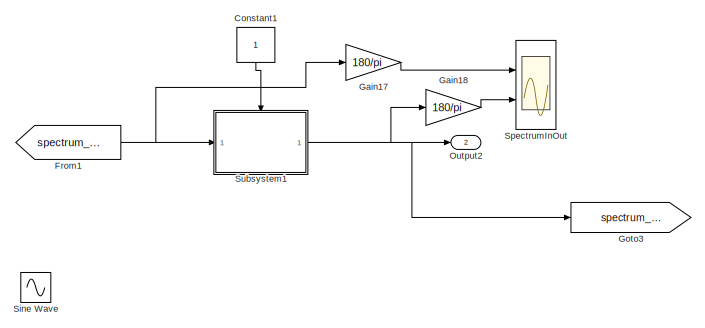
[diagram: root canvas - part 1/4, top right region]
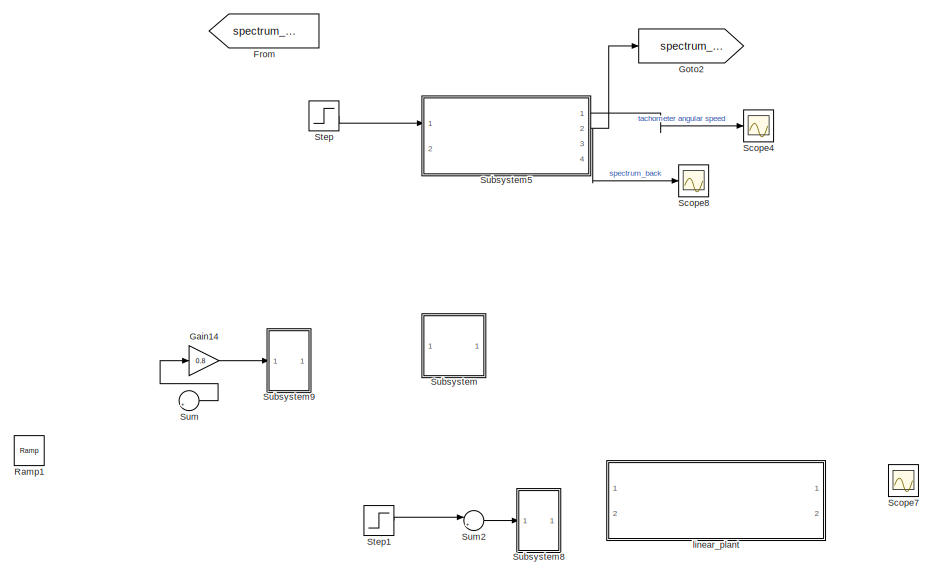
[diagram: root canvas - part 2/4, top left region]
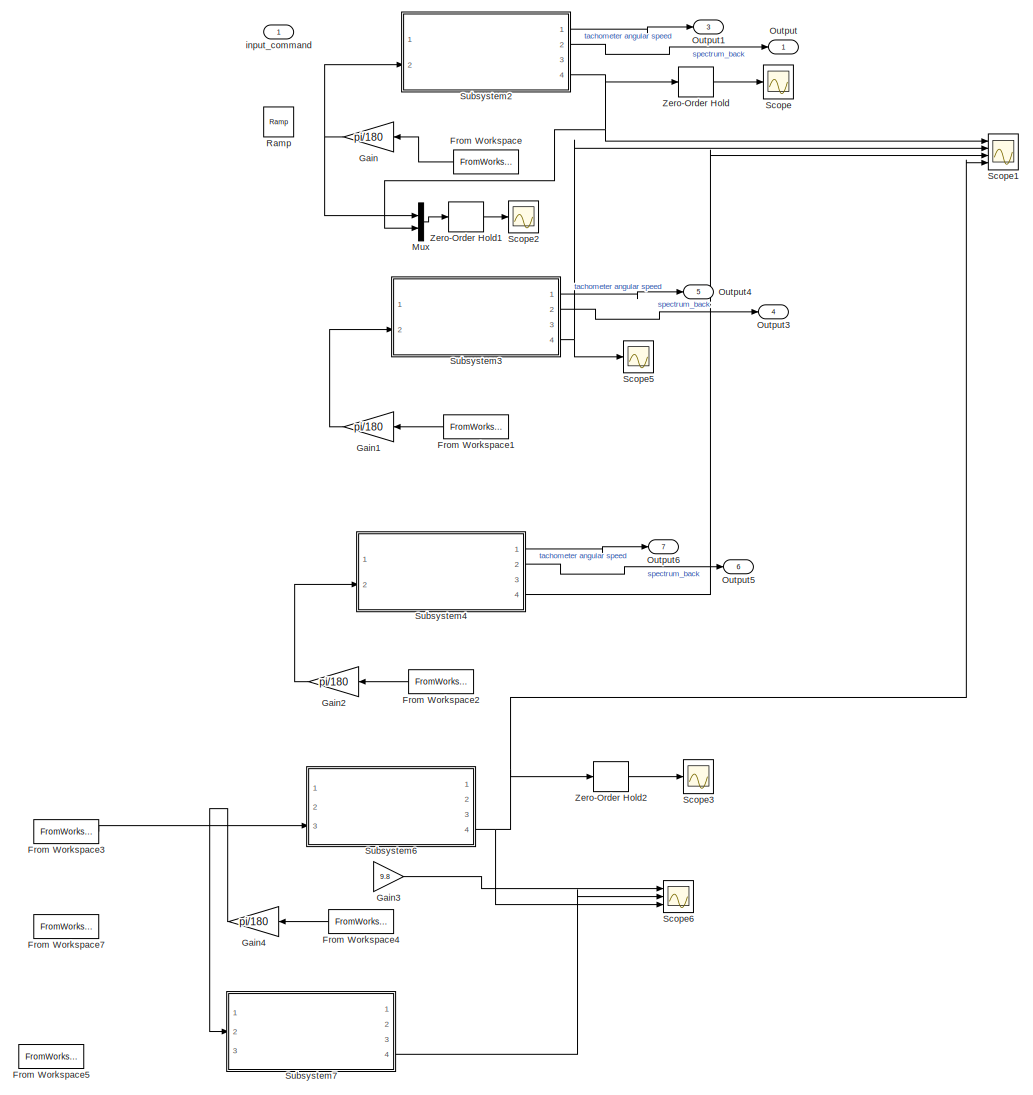
[diagram: root canvas - part 3/4, middle right region]
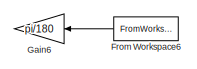
[diagram: root canvas - part 4/4, bottom center region]
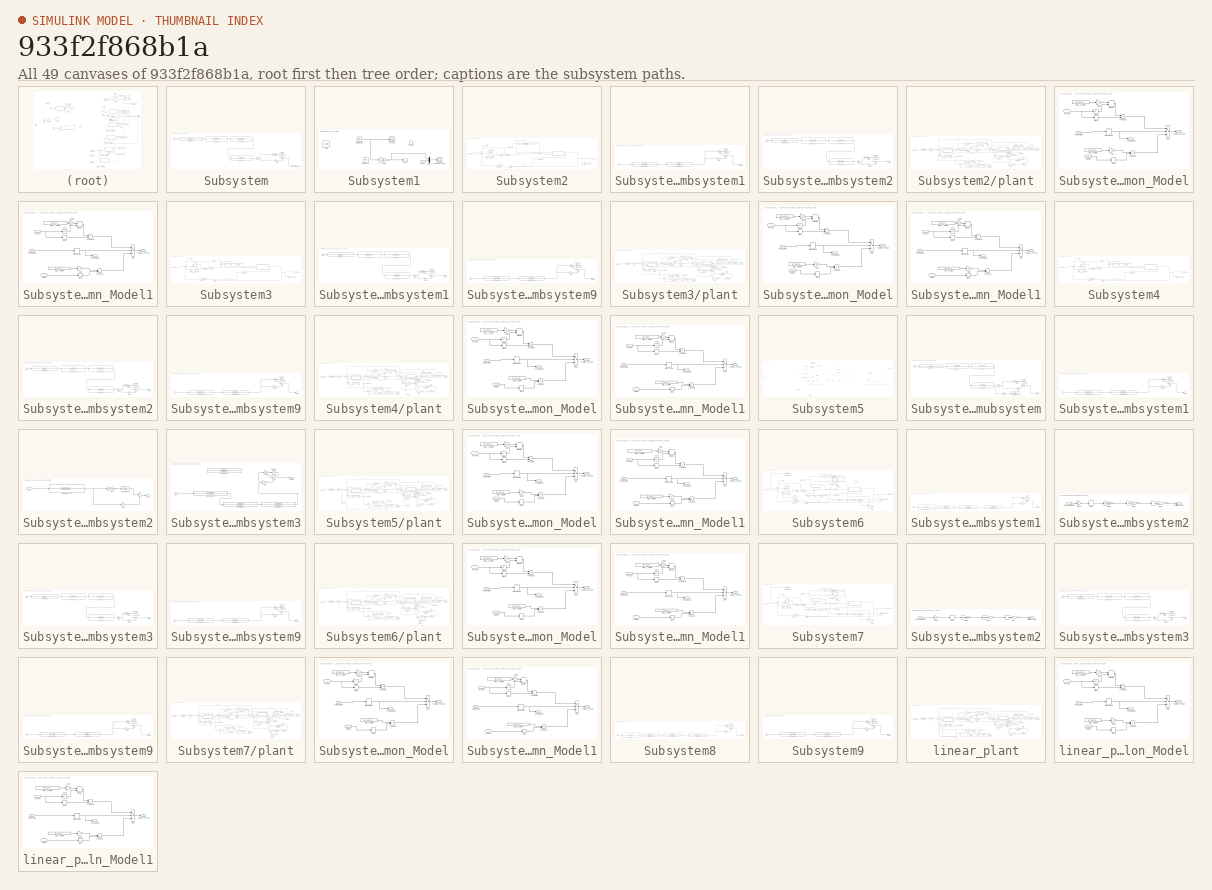
[diagram: thumbnail index - all 49 canvases of the model, root first then tree order]
MODEL slx_933f2f868b1a
KIND model
CONFIG AbsTol = auto
CONFIG EnableMultiTasking = off
CONFIG FixedStep = auto
CONFIG MaxStep = auto
CONFIG MinStep = auto
CONFIG RelTol = 1e-3
CONFIG SampleTimeConstraint = Unconstrained
CONFIG SolverName = FixedStepAuto
CONFIG StartTime = 0.0
CONFIG StopTime = 6
BLOCK [Constant] Constant1
  AttributesFormatString = 1 - START\n0 -STOP\ninternal spectrum
  NameLocation = left
  OpenFcn = if get_param(gcbh,'value')-48 set_param(gcbh,'value','0','backgroundcolor','red');\nelse set_param(gcbh,'value','1','backgroundcolor','green');                       \nend
  OutDataTypeStr = boolean
BLOCK [From] From
  GotoTag = spectrum_signal
BLOCK [FromWorkspace] From Workspace
  Interpolate = off
  NameLocation = top
  OutputAfterFinalValue = Setting to zero
  SampleTime = -1
  VariableName = eldist
  ZeroCross = off
BLOCK [FromWorkspace] From Workspace1
  Interpolate = off
  NameLocation = top
  OutputAfterFinalValue = Setting to zero
  SampleTime = -1
  VariableName = eldist
  ZeroCross = off
BLOCK [FromWorkspace] From Workspace2
  Interpolate = off
  NameLocation = top
  OutputAfterFinalValue = Setting to zero
  SampleTime = -1
  VariableName = eldist
  ZeroCross = off
BLOCK [FromWorkspace] From Workspace3
  OutputAfterFinalValue = Setting to zero
  SampleTime = -1
  VariableName = firegz
BLOCK [FromWorkspace] From Workspace4
  Interpolate = off
  NameLocation = top
  OutputAfterFinalValue = Setting to zero
  SampleTime = -1
  VariableName = eldist
  ZeroCross = off
BLOCK [FromWorkspace] From Workspace5
  OutputAfterFinalValue = Setting to zero
  SampleTime = -1
  VariableName = firegz
BLOCK [FromWorkspace] From Workspace6
  Interpolate = off
  NameLocation = top
  OutputAfterFinalValue = Setting to zero
  SampleTime = -1
  VariableName = eldist
  ZeroCross = off
BLOCK [FromWorkspace] From Workspace7
  SampleTime = ts3/3
  VariableName = gz
BLOCK [From] From1
  GotoTag = spectrum_back
BLOCK [Gain] Gain
  Gain = pi/180
BLOCK [Gain] Gain1
  Gain = pi/180
  NameLocation = top
BLOCK [Gain] Gain14
  Gain = 0.8
BLOCK [Gain] Gain17
  Gain = 180/pi
BLOCK [Gain] Gain18
  Gain = 180/pi
BLOCK [Gain] Gain2
  Gain = pi/180
  NameLocation = top
BLOCK [Gain] Gain3
  Gain = 9.8
BLOCK [Gain] Gain4
  Gain = pi/180
  NameLocation = top
BLOCK [Gain] Gain6
  Gain = pi/180
  NameLocation = top
BLOCK [Goto] Goto2
  GotoTag = spectrum_back
BLOCK [Goto] Goto3
  GotoTag = spectrum_signal
BLOCK [Mux] Mux
  DisplayOption = bar
  Inputs = 2
  Ports = [2, 1]
BLOCK [Outport] Output
  SignalName = gyro angular speed
BLOCK [Outport] Output1
  Port = 3
  SignalName = tachometer angular speed
BLOCK [Outport] Output2
  Port = 2
BLOCK [Outport] Output3
  Port = 4
  SignalName = gyro angular speed
BLOCK [Outport] Output4
  Port = 5
  SignalName = tachometer angular speed
BLOCK [Outport] Output5
  Port = 6
  SignalName = gyro angular speed
BLOCK [Outport] Output6
  Port = 7
  SignalName = tachometer angular speed
BLOCK [Reference] Ramp  REF=simulink/Sources/Ramp
  Ports = [0, 1]
  SourceBlock = simulink/Sources/Ramp
  SourceProductBaseCode = SL
  SourceType = Ramp
BLOCK [Reference] Ramp1  REF=simulink/Sources/Ramp
  Ports = [0, 1]
  SourceBlock = simulink/Sources/Ramp
  SourceProductBaseCode = SL
  SourceType = Ramp
BLOCK [Scope] Scope
  Floating = off
  NumInputPorts = 1
  Ports = [1]
  ScopeSpecificationString = Simulink.scopes.TimeScopeBlockCfg('CurrentConfiguration', extmgr.ConfigurationSet(extmgr.Configuration('Core','General UI',true),extmgr.Configuration('Core','Source UI',true),extmgr.Configuration('Sources','WiredSimulink',true,'DataLoggingVariableName','ScopeData2'),extmgr.Configuration('Visuals','Time Domain',true,'SerializedDisplays',{struct('MinYLimReal','-0.00022','MaxYLimReal','0.00017','YLab...<+2047ch>
BLOCK [Scope] Scope1
  Floating = off
  NumInputPorts = 4
  Ports = [4]
  ScopeSpecificationString = Simulink.scopes.TimeScopeBlockCfg('CurrentConfiguration', extmgr.ConfigurationSet(extmgr.Configuration('Core','General UI',true),extmgr.Configuration('Core','Source UI',true),extmgr.Configuration('Sources','WiredSimulink',true,'DataLoggingVariableName','ScopeData3'),extmgr.Configuration('Visuals','Time Domain',true,'SerializedDisplays',{struct('MinYLimReal','-0.01112','MaxYLimReal','0.01618','YLab...<+2126ch>
BLOCK [Scope] Scope2
  Floating = off
  NumInputPorts = 1
  Ports = [1]
  ScopeSpecificationString = Simulink.scopes.TimeScopeBlockCfg('CurrentConfiguration', extmgr.ConfigurationSet(extmgr.Configuration('Core','General UI',true),extmgr.Configuration('Core','Source UI',true),extmgr.Configuration('Sources','WiredSimulink',true,'DataLoggingVariableName','in_data','DataLogging',true,'DataLoggingSaveFormat','Array'),extmgr.Configuration('Visuals','Time Domain',true,'SerializedDisplays',{struct('MinYL...<+1619ch>
BLOCK [Scope] Scope3
  Floating = off
  NumInputPorts = 1
  Ports = [1]
  ScopeSpecificationString = Simulink.scopes.TimeScopeBlockCfg('CurrentConfiguration', extmgr.ConfigurationSet(extmgr.Configuration('Core','General UI',true),extmgr.Configuration('Core','Source UI',true),extmgr.Configuration('Sources','WiredSimulink',true,'DataLoggingVariableName','ScopeData2'),extmgr.Configuration('Visuals','Time Domain',true,'SerializedDisplays',{struct('MinYLimReal','-0.00135','MaxYLimReal','0.00163','YLab...<+2268ch>
BLOCK [Scope] Scope4
  Floating = off
  NumInputPorts = 1
  Ports = [1]
  ScopeSpecificationString = Simulink.scopes.TimeScopeBlockCfg('CurrentConfiguration', extmgr.ConfigurationSet(extmgr.Configuration('Core','General UI',true),extmgr.Configuration('Core','Source UI',true),extmgr.Configuration('Sources','WiredSimulink',true,'DataLoggingVariableName','ScopeData1'),extmgr.Configuration('Visuals','Time Domain',true,'SerializedDisplays',{struct('MinYLimReal','-0.13898','MaxYLimReal','0.99052','YLab...<+2489ch>
BLOCK [Scope] Scope5
  Floating = off
  NumInputPorts = 1
  Ports = [1]
  ScopeSpecificationString = Simulink.scopes.TimeScopeBlockCfg('CurrentConfiguration', extmgr.ConfigurationSet(extmgr.Configuration('Core','General UI',true),extmgr.Configuration('Core','Source UI',true),extmgr.Configuration('Sources','WiredSimulink',true,'DataLoggingVariableName','ScopeData2'),extmgr.Configuration('Visuals','Time Domain',true,'SerializedDisplays',{struct('MinYLimReal','-0.01202','MaxYLimReal','0.01628','YLab...<+1440ch>
BLOCK [Scope] Scope6
  Floating = off
  NumInputPorts = 3
  Ports = [3]
  ScopeSpecificationString = Simulink.scopes.TimeScopeBlockCfg('CurrentConfiguration', extmgr.ConfigurationSet(extmgr.Configuration('Core','General UI',true),extmgr.Configuration('Core','Source UI',true),extmgr.Configuration('Sources','WiredSimulink',true,'DataLoggingVariableName','ScopeData3'),extmgr.Configuration('Visuals','Time Domain',true,'TimeAxisLabels','All','SerializedDisplays',{struct('MinYLimReal','-669.44336','Max...<+3208ch>
BLOCK [Scope] Scope7
  Floating = off
  NumInputPorts = 1
  Ports = [1]
  ScopeSpecificationString = Simulink.scopes.TimeScopeBlockCfg('CurrentConfiguration', extmgr.ConfigurationSet(extmgr.Configuration('Core','General UI',true,'FigureColor',[0 0 0]),extmgr.Configuration('Core','Source UI',true),extmgr.Configuration('Sources','WiredSimulink',true,'DataLoggingVariableName','ScopeData1'),extmgr.Configuration('Visuals','Time Domain',true,'PlotType','Line','SerializedDisplays',{struct('MinYLimReal',...<+2506ch>
BLOCK [Scope] Scope8
  Floating = off
  NumInputPorts = 1
  Ports = [1]
  ScopeSpecificationString = Simulink.scopes.TimeScopeBlockCfg('CurrentConfiguration', extmgr.ConfigurationSet(extmgr.Configuration('Core','General UI',true),extmgr.Configuration('Core','Source UI',true),extmgr.Configuration('Sources','WiredSimulink',true,'DataLoggingVariableName','ScopeData1'),extmgr.Configuration('Visuals','Time Domain',true,'SerializedDisplays',{struct('MinYLimReal','-0.00773','MaxYLimReal','0.06954','YLab...<+1956ch>
BLOCK [Sin] Sine Wave
  Amplitude = 0.05
  Frequency = 2*pi
  Ports = [0, 1]
  SampleTime = 0
BLOCK [Scope] SpectrumInOut
  Floating = off
  NumInputPorts = 2
  Ports = [2]
  ScopeSpecificationString = Simulink.scopes.TimeScopeBlockCfg('CurrentConfiguration', extmgr.ConfigurationSet(extmgr.Configuration('Core','General UI',true),extmgr.Configuration('Core','Source UI',true),extmgr.Configuration('Sources','WiredSimulink',true,'DataLoggingVariableName','ScopeData1','SampleTime','0.001','DataLoggingSaveFormat','StructureWithTime'),extmgr.Configuration('Visuals','Time Domain',true,'SerializedDisplay...<+2366ch>
BLOCK [Step] Step
  After = 0.05
  SampleTime = 0
  VectorParams1D = off
  ZeroCross = off
BLOCK [Step] Step1
  SampleTime = 0
  ZeroCross = off
BLOCK [SubSystem] Subsystem
  Ports = [1, 1]
  RequestExecContextInheritance = off
BLOCK [Gain] Subsystem/Gain
  Gain = 4.5
BLOCK [Gain] Subsystem/Gain1
BLOCK [Gain] Subsystem/Gain2
  Gain = 1.8*2*pi
BLOCK [Inport] Subsystem/In1
BLOCK [Integrator] Subsystem/Integrator
  Ports = [1, 1]
BLOCK [Sum] Subsystem/Sum
  Inputs = |++
  Ports = [2, 1]
BLOCK [TransferFcn] Subsystem/Transfer Fcn1
  Denominator = [1 25.035 2.102*10^4]
  Numerator = [1 21 1.806*10^4]
BLOCK [TransferFcn] Subsystem/Transfer Fcn10
  Denominator = [1 40 8.72*10^4]
  Numerator = [1 59.495 9.908*10^4]
BLOCK [TransferFcn] Subsystem/Transfer Fcn7
  Denominator = [1/(2*pi*6.38)^2 0.55/355 1]
BLOCK [TransferFcn] Subsystem/Transfer Fcn8
  Denominator = [1 2*0.94*2*35.6*pi (2*pi*35.6)^2]
  Numerator = [1 2*0.08*2*35.6*pi (2*pi*35.6)^2]
BLOCK [Outport] Subsystem/input_current_plant
BLOCK [SubSystem] Subsystem1
  Ports = [1, 1, 1]
  RequestExecContextInheritance = off
BLOCK [Reference] Subsystem1/Chirp  REF=dspsrcs4/Chirp
  Ports = [0, 1]
  SourceBlock = dspsrcs4/Chirp
  SourceProductBaseCode = DS
  SourceType = Chirp
BLOCK [Reference] Subsystem1/Chirp Signal  REF=simulink/Sources/Chirp Signal
  Commented = on
  Ports = [0, 1]
  SourceBlock = simulink/Sources/Chirp Signal
  SourceProductBaseCode = SL
  SourceType = chirp
BLOCK [Reference] Subsystem1/Chirp Signal1  REF=simulink/Sources/Chirp Signal
  Ports = [0, 1]
  SourceBlock = simulink/Sources/Chirp Signal
  SourceProductBaseCode = SL
  SourceType = chirp
BLOCK [EnablePort] Subsystem1/Enable
  Ports = []
  StatesWhenEnabling = reset
BLOCK [Inport] Subsystem1/Input
BLOCK [Mux] Subsystem1/Mux2
  DisplayOption = bar
  Inputs = 2
  Ports = [2, 1]
BLOCK [Outport] Subsystem1/Output2
BLOCK [Scope] Subsystem1/Scope2
  Floating = off
  NumInputPorts = 1
  Ports = [1]
  ScopeSpecificationString = Simulink.scopes.TimeScopeBlockCfg('CurrentConfiguration', extmgr.ConfigurationSet(extmgr.Configuration('Core','General UI',true),extmgr.Configuration('Core','Source UI',true),extmgr.Configuration('Sources','WiredSimulink',true,'DataLoggingVariableName','ScopeData3'),extmgr.Configuration('Visuals','Time Domain',true,'SerializedDisplays',{struct('MinYLimReal','-1.25','MaxYLimReal','1.25','YLabelReal...<+1427ch>
BLOCK [Scope] Subsystem1/TSABAD_out_log
  Floating = off
  NumInputPorts = 1
  Ports = [1]
  ScopeSpecificationString = Simulink.scopes.TimeScopeBlockCfg('CurrentConfiguration', extmgr.ConfigurationSet(extmgr.Configuration('Core','General UI',true),extmgr.Configuration('Core','Source UI',true),extmgr.Configuration('Sources','WiredSimulink',true,'DataLogging',true,'DataLoggingVariableName','TSABAD_out_log','DataLoggingSaveFormat','Array','DataLoggingDecimation','1','DataLoggingDecimateData',true,'SampleTime','0.001'...<+1754ch>
BLOCK [Gain] Subsystem1/gain 3
  Gain = GAIN
  OutDataTypeStr = Inherit: Same as input
  ParamDataTypeStr = Inherit: Same as input
  SampleTime = ts3/9
  SaturateOnIntegerOverflow = on
BLOCK [SubSystem] Subsystem2
  Ports = [2, 4]
  RequestExecContextInheritance = off
BLOCK [Constant] Subsystem2/Constant
  Value = 0
BLOCK [Gain] Subsystem2/Gain14
  Gain = 0.8
BLOCK [Integrator] Subsystem2/Integrator
  Ports = [1, 1]
BLOCK [ManualSwitch] Subsystem2/Manual Switch
  CurrentSetting = 0
  NameLocation = top
BLOCK [SubSystem] Subsystem2/Subsystem1
  Ports = [1, 1]
  RequestExecContextInheritance = off
BLOCK [Gain] Subsystem2/Subsystem1/Gain
  Gain = 10
BLOCK [Gain] Subsystem2/Subsystem1/Gain1
  Gain = 26
BLOCK [Inport] Subsystem2/Subsystem1/In1
BLOCK [Integrator] Subsystem2/Subsystem1/Integrator
  Ports = [1, 1]
BLOCK [Outport] Subsystem2/Subsystem1/Output
BLOCK [Sum] Subsystem2/Subsystem1/Sum
  Inputs = |++
  Ports = [2, 1]
BLOCK [TransferFcn] Subsystem2/Subsystem1/Transfer Fcn4
  Denominator = [1 2*pi*21.3*2*0.48 (2*pi*21.3)^2]
  Numerator = [1 2*pi*21.3*2*0.05 (2*pi*21.3)^2]
BLOCK [TransferFcn] Subsystem2/Subsystem1/Transfer Fcn5
  Denominator = [1 188.3 (2*pi*36)^2]
  Numerator = [1 16.78 (2*pi*36)^2]
BLOCK [SubSystem] Subsystem2/Subsystem2
  Ports = [1, 1]
  RequestExecContextInheritance = off
BLOCK [Gain] Subsystem2/Subsystem2/Gain
  Gain = 4.5
BLOCK [Gain] Subsystem2/Subsystem2/Gain1
BLOCK [Gain] Subsystem2/Subsystem2/Gain2
  Gain = 1.8*2*pi
BLOCK [Inport] Subsystem2/Subsystem2/In1
BLOCK [Integrator] Subsystem2/Subsystem2/Integrator
  Ports = [1, 1]
BLOCK [Outport] Subsystem2/Subsystem2/Out1
BLOCK [Sum] Subsystem2/Subsystem2/Sum
  Inputs = |++
  Ports = [2, 1]
BLOCK [TransferFcn] Subsystem2/Subsystem2/Transfer Fcn1
  Denominator = [1 25.035 2.102*10^4]
  Numerator = [1 21 1.806*10^4]
BLOCK [TransferFcn] Subsystem2/Subsystem2/Transfer Fcn10
  Denominator = [1 40 8.72*10^4]
  Numerator = [1 59.495 9.908*10^4]
BLOCK [TransferFcn] Subsystem2/Subsystem2/Transfer Fcn7
  Denominator = [1/(2*pi*6.38)^2 0.55/355 1]
BLOCK [TransferFcn] Subsystem2/Subsystem2/Transfer Fcn8
  Denominator = [1 2*0.94*2*35.6*pi (2*pi*35.6)^2]
  Numerator = [1 2*0.08*2*35.6*pi (2*pi*35.6)^2]
BLOCK [Sum] Subsystem2/Sum
  Inputs = -+|
  Ports = [2, 1]
BLOCK [Sum] Subsystem2/Sum4
  Inputs = |+-
  Ports = [2, 1]
BLOCK [TransferFcn] Subsystem2/Transfer Fcn
  Denominator = [0.001592 1.064 178.8 8.72*10^4]
  Numerator = [0.003753 0.1609 350.7 0]
BLOCK [ManualSwitch] Subsystem2/close loop or open loop
  CurrentSetting = 0
BLOCK [ManualSwitch] Subsystem2/controller or without
  CurrentSetting = 0
BLOCK [Outport] Subsystem2/error
  Port = 3
BLOCK [Inport] Subsystem2/ground velocity
  Port = 2
BLOCK [ManualSwitch] Subsystem2/gyro or tacho
  CurrentSetting = 0
BLOCK [Outport] Subsystem2/gyroscope angel
  Port = 4
BLOCK [Outport] Subsystem2/gyroscope sensor
  Port = 2
BLOCK [Inport] Subsystem2/input_command
BLOCK [SubSystem] Subsystem2/plant
  Description = elevation-plant
  Ports = [2, 2]
  RequestExecContextInheritance = off
BLOCK [Abs] Subsystem2/plant/Abs
  SaturateOnIntegerOverflow = off
BLOCK [Sum] Subsystem2/plant/Add
  IconShape = rectangular
  Ports = [2, 1]
BLOCK [Sum] Subsystem2/plant/Add1
  IconShape = rectangular
  Ports = [2, 1]
BLOCK [Sum] Subsystem2/plant/Add2
  IconShape = rectangular
  Ports = [2, 1]
BLOCK [Constant] Subsystem2/plant/Constant
BLOCK [Constant] Subsystem2/plant/Constant1
  Value = 0
BLOCK [Trigonometry] Subsystem2/plant/Cos1
  Operator = cos
  Ports = [1, 1]
BLOCK [SubSystem] Subsystem2/plant/Coulomb_Friction_Model
  NameLocation = top
  Ports = [3, 2]
  RequestExecContextInheritance = off
BLOCK [Abs] Subsystem2/plant/Coulomb_Friction_Model/Abs2
  SaturateOnIntegerOverflow = off
  ZeroCross = off
BLOCK [Outport] Subsystem2/plant/Coulomb_Friction_Model/Friction_Torque
BLOCK [Gain] Subsystem2/plant/Coulomb_Friction_Model/Gain
  Gain = 0
BLOCK [Gain] Subsystem2/plant/Coulomb_Friction_Model/Gain2
  Gain = 0
BLOCK [HitCross] Subsystem2/plant/Coulomb_Friction_Model/Hit Crossing
  Ports = [1, 1]
  ZeroCross = off
BLOCK [MinMax] Subsystem2/plant/Coulomb_Friction_Model/MinMax
  Inputs = 2
  Ports = [2, 1]
BLOCK [Product] Subsystem2/plant/Coulomb_Friction_Model/Product1
  Ports = [2, 1]
  RndMeth = Zero
BLOCK [Product] Subsystem2/plant/Coulomb_Friction_Model/Product2
  Ports = [2, 1]
  RndMeth = Zero
BLOCK [Signum] Subsystem2/plant/Coulomb_Friction_Model/Sign1
  ZeroCross = off
BLOCK [Signum] Subsystem2/plant/Coulomb_Friction_Model/Sign2
  ZeroCross = off
BLOCK [Constant] Subsystem2/plant/Coulomb_Friction_Model/Slip_T_friction
  Value = fric_gear_motor
BLOCK [Constant] Subsystem2/plant/Coulomb_Friction_Model/Stick_T_friction
  Value = fric_gear_motor
BLOCK [Switch] Subsystem2/plant/Coulomb_Friction_Model/Sw6
  Threshold = 0.5
  ZeroCross = off
BLOCK [Inport] Subsystem2/plant/Coulomb_Friction_Model/Torque
BLOCK [Outport] Subsystem2/plant/Coulomb_Friction_Model/reset velocity
  Port = 2
BLOCK [Inport] Subsystem2/plant/Coulomb_Friction_Model/velocity
  Port = 2
BLOCK [Inport] Subsystem2/plant/Coulomb_Friction_Model/velocity state
  Port = 3
BLOCK [SubSystem] Subsystem2/plant/Coulomb_Friction_Model1
  NameLocation = top
  Ports = [3, 2]
  RequestExecContextInheritance = off
BLOCK [Abs] Subsystem2/plant/Coulomb_Friction_Model1/Abs2
  SaturateOnIntegerOverflow = off
  ZeroCross = off
BLOCK [Outport] Subsystem2/plant/Coulomb_Friction_Model1/Friction_Torque
BLOCK [Gain] Subsystem2/plant/Coulomb_Friction_Model1/Gain
  Gain = 0
BLOCK [Gain] Subsystem2/plant/Coulomb_Friction_Model1/Gain2
  Gain = 0
BLOCK [HitCross] Subsystem2/plant/Coulomb_Friction_Model1/Hit Crossing
  Ports = [1, 1]
  ZeroCross = off
BLOCK [MinMax] Subsystem2/plant/Coulomb_Friction_Model1/MinMax
  Inputs = 2
  Ports = [2, 1]
BLOCK [Product] Subsystem2/plant/Coulomb_Friction_Model1/Product1
  Ports = [2, 1]
  RndMeth = Zero
BLOCK [Product] Subsystem2/plant/Coulomb_Friction_Model1/Product2
  Ports = [2, 1]
  RndMeth = Zero
BLOCK [Signum] Subsystem2/plant/Coulomb_Friction_Model1/Sign1
  ZeroCross = off
BLOCK [Signum] Subsystem2/plant/Coulomb_Friction_Model1/Sign2
  ZeroCross = off
BLOCK [Constant] Subsystem2/plant/Coulomb_Friction_Model1/Slip_T_friction
  SampleTime = 0
  Value = fric_gear_turrent_gun
BLOCK [Constant] Subsystem2/plant/Coulomb_Friction_Model1/Stick_T_friction
  SampleTime = 0
  Value = fric_gear_turrent_gun
BLOCK [Switch] Subsystem2/plant/Coulomb_Friction_Model1/Sw6
  Threshold = 0.5
  ZeroCross = off
BLOCK [Inport] Subsystem2/plant/Coulomb_Friction_Model1/Torque
BLOCK [Outport] Subsystem2/plant/Coulomb_Friction_Model1/reset velocity
  Port = 2
BLOCK [Inport] Subsystem2/plant/Coulomb_Friction_Model1/velocity
  Port = 2
BLOCK [Inport] Subsystem2/plant/Coulomb_Friction_Model1/velocity state
  Port = 3
BLOCK [DeadZone] Subsystem2/plant/Dead Zone1
  LowerValue = -0.07*10^-3
  SaturateOnIntegerOverflow = off
  UpperValue = 0.07*10^-3
  ZeroCross = off
BLOCK [Gain] Subsystem2/plant/Gain
  Gain = 8.282809728
BLOCK [Gain] Subsystem2/plant/Gain1
  Gain = 955.4190534
BLOCK [Gain] Subsystem2/plant/Gain10
  Gain = 0.02
BLOCK [Gain] Subsystem2/plant/Gain14
  Gain = 1/0.0005
BLOCK [Gain] Subsystem2/plant/Gain2
  Gain = 1/0.007
BLOCK [Gain] Subsystem2/plant/Gain3
  Gain = 67.49/185
BLOCK [Gain] Subsystem2/plant/Gain4
  Gain = 354.8268849
BLOCK [Gain] Subsystem2/plant/Gain5
  Gain = 0.55
BLOCK [Gain] Subsystem2/plant/Gain6
  Gain = 1/0.1005695118
BLOCK [Gain] Subsystem2/plant/Gain7
  Gain = 1.1
BLOCK [Gain] Subsystem2/plant/Gain8
  Gain = 1/0.0994454608
BLOCK [Gain] Subsystem2/plant/Gain9
  Gain = 43.6
BLOCK [Integrator] Subsystem2/plant/Integrator1
  LowerSaturationLimit = 0
  Ports = [1, 1]
  UpperSaturationLimit = pi/2
  WrappedStateLowerValue = 0
  WrappedStateUpperValue = pi/2
BLOCK [Integrator] Subsystem2/plant/Integrator2
  ExternalReset = rising
  Ports = [2, 1, 0, 0, 1]
  ShowStatePort = on
  ZeroCross = off
BLOCK [Integrator] Subsystem2/plant/Integrator3
  Ports = [1, 1]
BLOCK [Integrator] Subsystem2/plant/Integrator4
  Ports = [1, 1]
BLOCK [Integrator] Subsystem2/plant/Integrator5
  ExternalReset = rising
  Ports = [2, 1, 0, 0, 1]
  ShowStatePort = on
  ZeroCross = off
BLOCK [Integrator] Subsystem2/plant/Integrator6
  Ports = [1, 1]
BLOCK [Integrator] Subsystem2/plant/Integrator7
  Ports = [1, 1]
BLOCK [Integrator] Subsystem2/plant/Integrator8
  Ports = [1, 1]
BLOCK [Gain] Subsystem2/plant/Kt
  Gain = 0.39/sqrt(3)
BLOCK [Product] Subsystem2/plant/Product
  Ports = [2, 1]
BLOCK [Signum] Subsystem2/plant/Sign
BLOCK [Sum] Subsystem2/plant/Sum1
  Inputs = |-+
  Ports = [2, 1]
BLOCK [Sum] Subsystem2/plant/Sum2
  Inputs = -+|-
  Ports = [3, 1]
BLOCK [Sum] Subsystem2/plant/Sum3
  Inputs = |+-
  Ports = [2, 1]
BLOCK [Sum] Subsystem2/plant/Sum4
  Inputs = -+|
  Ports = [2, 1]
BLOCK [Sum] Subsystem2/plant/Sum5
  Inputs = -+|-
  Ports = [3, 1]
BLOCK [Sum] Subsystem2/plant/Sum6
  Inputs = -+|
  Ports = [2, 1]
BLOCK [Sum] Subsystem2/plant/Sum7
  Inputs = |+-
  Ports = [2, 1]
BLOCK [Sum] Subsystem2/plant/Sum8
  Inputs = |+-
  Ports = [2, 1]
BLOCK [Sum] Subsystem2/plant/Sum9
  Inputs = |-+
  Ports = [2, 1]
BLOCK [ManualSwitch] Subsystem2/plant/cancel imballance moment
  NameLocation = top
BLOCK [Inport] Subsystem2/plant/external disturbance
BLOCK [Outport] Subsystem2/plant/gyroscope sensor
BLOCK [Inport] Subsystem2/plant/input current plant
  Port = 2
BLOCK [ManualSwitch] Subsystem2/plant/linearization backlash
BLOCK [ManualSwitch] Subsystem2/plant/linearization backlash1
BLOCK [Outport] Subsystem2/plant/tachometer sensor
  Port = 2
BLOCK [Outport] Subsystem2/tachometer sensor
BLOCK [SubSystem] Subsystem3
  Ports = [2, 4]
  RequestExecContextInheritance = off
BLOCK [Constant] Subsystem3/Constant
  Value = 0
BLOCK [Derivative] Subsystem3/Derivative
BLOCK [Gain] Subsystem3/Gain1
  Gain = 0.007
BLOCK [Gain] Subsystem3/Gain14
  Gain = 0.8
BLOCK [Gain] Subsystem3/Gain2
  Gain = sqrt(3)/0.39
BLOCK [Gain] Subsystem3/Gain3
  Gain = 1/8.282809728
BLOCK [Integrator] Subsystem3/Integrator
  Ports = [1, 1]
BLOCK [ManualSwitch] Subsystem3/Manual Switch
  CurrentSetting = 0
  NameLocation = top
BLOCK [SubSystem] Subsystem3/Subsystem1
  Ports = [1, 1]
  RequestExecContextInheritance = off
BLOCK [Gain] Subsystem3/Subsystem1/Gain
  Gain = 4.5
BLOCK [Gain] Subsystem3/Subsystem1/Gain1
BLOCK [Gain] Subsystem3/Subsystem1/Gain2
  Gain = 1.8*2*pi
BLOCK [Inport] Subsystem3/Subsystem1/In1
BLOCK [Integrator] Subsystem3/Subsystem1/Integrator
  Ports = [1, 1]
BLOCK [Outport] Subsystem3/Subsystem1/Out1
BLOCK [Sum] Subsystem3/Subsystem1/Sum
  Inputs = |++
  Ports = [2, 1]
BLOCK [TransferFcn] Subsystem3/Subsystem1/Transfer Fcn1
  Denominator = [1 25.035 2.102*10^4]
  Numerator = [1 21 1.806*10^4]
BLOCK [TransferFcn] Subsystem3/Subsystem1/Transfer Fcn10
  Denominator = [1 40 8.72*10^4]
  Numerator = [1 59.495 9.908*10^4]
BLOCK [TransferFcn] Subsystem3/Subsystem1/Transfer Fcn7
  Denominator = [1/(2*pi*6.38)^2 0.55/355 1]
BLOCK [TransferFcn] Subsystem3/Subsystem1/Transfer Fcn8
  Denominator = [1 2*0.94*2*35.6*pi (2*pi*35.6)^2]
  Numerator = [1 2*0.08*2*35.6*pi (2*pi*35.6)^2]
BLOCK [SubSystem] Subsystem3/Subsystem9
  Ports = [1, 1]
  RequestExecContextInheritance = off
BLOCK [Gain] Subsystem3/Subsystem9/Gain
  Gain = 10
BLOCK [Gain] Subsystem3/Subsystem9/Gain1
  Gain = 26
BLOCK [Inport] Subsystem3/Subsystem9/In1
BLOCK [Integrator] Subsystem3/Subsystem9/Integrator
  Ports = [1, 1]
BLOCK [Outport] Subsystem3/Subsystem9/Output
BLOCK [Sum] Subsystem3/Subsystem9/Sum
  Inputs = |++
  Ports = [2, 1]
BLOCK [TransferFcn] Subsystem3/Subsystem9/Transfer Fcn4
  Denominator = [1 2*pi*21.3*2*0.48 (2*pi*21.3)^2]
  Numerator = [1 2*pi*21.3*2*0.05 (2*pi*21.3)^2]
BLOCK [TransferFcn] Subsystem3/Subsystem9/Transfer Fcn5
  Denominator = [1 188.3 (2*pi*36)^2]
  Numerator = [1 16.78 (2*pi*36)^2]
BLOCK [Sum] Subsystem3/Sum
  Inputs = -+|
  Ports = [2, 1]
BLOCK [Sum] Subsystem3/Sum4
  Inputs = |+-
  Ports = [2, 1]
BLOCK [ManualSwitch] Subsystem3/close loop or open loop
  CurrentSetting = 0
BLOCK [ManualSwitch] Subsystem3/controller or without
  CurrentSetting = 0
BLOCK [Outport] Subsystem3/error
  Port = 3
BLOCK [Inport] Subsystem3/ground velocity
  Port = 2
BLOCK [ManualSwitch] Subsystem3/gyro or tacho
  CurrentSetting = 0
BLOCK [Outport] Subsystem3/gyroscope angel
  Port = 4
BLOCK [Outport] Subsystem3/gyroscope sensor
  Port = 2
BLOCK [Inport] Subsystem3/input_command
BLOCK [SubSystem] Subsystem3/plant
  Description = elevation-plant
  Ports = [2, 2]
  RequestExecContextInheritance = off
BLOCK [Abs] Subsystem3/plant/Abs
  SaturateOnIntegerOverflow = off
BLOCK [Sum] Subsystem3/plant/Add
  IconShape = rectangular
  Ports = [2, 1]
BLOCK [Sum] Subsystem3/plant/Add1
  IconShape = rectangular
  Ports = [2, 1]
BLOCK [Sum] Subsystem3/plant/Add2
  IconShape = rectangular
  Ports = [2, 1]
BLOCK [Constant] Subsystem3/plant/Constant
BLOCK [Constant] Subsystem3/plant/Constant1
  Value = 0
BLOCK [Trigonometry] Subsystem3/plant/Cos1
  Operator = cos
  Ports = [1, 1]
BLOCK [SubSystem] Subsystem3/plant/Coulomb_Friction_Model
  NameLocation = top
  Ports = [3, 2]
  RequestExecContextInheritance = off
BLOCK [Abs] Subsystem3/plant/Coulomb_Friction_Model/Abs2
  SaturateOnIntegerOverflow = off
  ZeroCross = off
BLOCK [Outport] Subsystem3/plant/Coulomb_Friction_Model/Friction_Torque
BLOCK [Gain] Subsystem3/plant/Coulomb_Friction_Model/Gain
BLOCK [Gain] Subsystem3/plant/Coulomb_Friction_Model/Gain2
  Gain = 1.1
BLOCK [HitCross] Subsystem3/plant/Coulomb_Friction_Model/Hit Crossing
  Ports = [1, 1]
  ZeroCross = off
BLOCK [MinMax] Subsystem3/plant/Coulomb_Friction_Model/MinMax
  Inputs = 2
  Ports = [2, 1]
BLOCK [Product] Subsystem3/plant/Coulomb_Friction_Model/Product1
  Ports = [2, 1]
  RndMeth = Zero
BLOCK [Product] Subsystem3/plant/Coulomb_Friction_Model/Product2
  Ports = [2, 1]
  RndMeth = Zero
BLOCK [Signum] Subsystem3/plant/Coulomb_Friction_Model/Sign1
  ZeroCross = off
BLOCK [Signum] Subsystem3/plant/Coulomb_Friction_Model/Sign2
  ZeroCross = off
BLOCK [Constant] Subsystem3/plant/Coulomb_Friction_Model/Slip_T_friction
  Value = fric_gear_motor
BLOCK [Constant] Subsystem3/plant/Coulomb_Friction_Model/Stick_T_friction
  Value = fric_gear_motor
BLOCK [Switch] Subsystem3/plant/Coulomb_Friction_Model/Sw6
  Threshold = 0.5
  ZeroCross = off
BLOCK [Inport] Subsystem3/plant/Coulomb_Friction_Model/Torque
BLOCK [Outport] Subsystem3/plant/Coulomb_Friction_Model/reset velocity
  Port = 2
BLOCK [Inport] Subsystem3/plant/Coulomb_Friction_Model/velocity
  Port = 2
BLOCK [Inport] Subsystem3/plant/Coulomb_Friction_Model/velocity state
  Port = 3
BLOCK [SubSystem] Subsystem3/plant/Coulomb_Friction_Model1
  NameLocation = top
  Ports = [3, 2]
  RequestExecContextInheritance = off
BLOCK [Abs] Subsystem3/plant/Coulomb_Friction_Model1/Abs2
  SaturateOnIntegerOverflow = off
  ZeroCross = off
BLOCK [Outport] Subsystem3/plant/Coulomb_Friction_Model1/Friction_Torque
BLOCK [Gain] Subsystem3/plant/Coulomb_Friction_Model1/Gain
BLOCK [Gain] Subsystem3/plant/Coulomb_Friction_Model1/Gain2
  Gain = 1.1
BLOCK [HitCross] Subsystem3/plant/Coulomb_Friction_Model1/Hit Crossing
  Ports = [1, 1]
  ZeroCross = off
BLOCK [MinMax] Subsystem3/plant/Coulomb_Friction_Model1/MinMax
  Inputs = 2
  Ports = [2, 1]
BLOCK [Product] Subsystem3/plant/Coulomb_Friction_Model1/Product1
  Ports = [2, 1]
  RndMeth = Zero
BLOCK [Product] Subsystem3/plant/Coulomb_Friction_Model1/Product2
  Ports = [2, 1]
  RndMeth = Zero
BLOCK [Signum] Subsystem3/plant/Coulomb_Friction_Model1/Sign1
  ZeroCross = off
BLOCK [Signum] Subsystem3/plant/Coulomb_Friction_Model1/Sign2
  ZeroCross = off
BLOCK [Constant] Subsystem3/plant/Coulomb_Friction_Model1/Slip_T_friction
  SampleTime = 0
  Value = fric_gear_turrent_gun
BLOCK [Constant] Subsystem3/plant/Coulomb_Friction_Model1/Stick_T_friction
  SampleTime = 0
  Value = fric_gear_turrent_gun
BLOCK [Switch] Subsystem3/plant/Coulomb_Friction_Model1/Sw6
  Threshold = 0.5
  ZeroCross = off
BLOCK [Inport] Subsystem3/plant/Coulomb_Friction_Model1/Torque
BLOCK [Outport] Subsystem3/plant/Coulomb_Friction_Model1/reset velocity
  Port = 2
BLOCK [Inport] Subsystem3/plant/Coulomb_Friction_Model1/velocity
  Port = 2
BLOCK [Inport] Subsystem3/plant/Coulomb_Friction_Model1/velocity state
  Port = 3
BLOCK [DeadZone] Subsystem3/plant/Dead Zone1
  LowerValue = -0.07*10^-3
  SaturateOnIntegerOverflow = off
  UpperValue = 0.07*10^-3
  ZeroCross = off
BLOCK [Gain] Subsystem3/plant/Gain
  Gain = 8.282809728
BLOCK [Gain] Subsystem3/plant/Gain1
  Gain = 955.4190534
BLOCK [Gain] Subsystem3/plant/Gain10
  Gain = 0.02
BLOCK [Gain] Subsystem3/plant/Gain14
  Gain = 1/0.0005
BLOCK [Gain] Subsystem3/plant/Gain2
  Gain = 1/0.007
BLOCK [Gain] Subsystem3/plant/Gain3
  Gain = 67.49/185
BLOCK [Gain] Subsystem3/plant/Gain4
  Gain = 354.8268849
BLOCK [Gain] Subsystem3/plant/Gain5
  Gain = 0.55
BLOCK [Gain] Subsystem3/plant/Gain6
  Gain = 1/0.1005695118
BLOCK [Gain] Subsystem3/plant/Gain7
  Gain = 1.1
BLOCK [Gain] Subsystem3/plant/Gain8
  Gain = 1/0.0994454608
BLOCK [Gain] Subsystem3/plant/Gain9
  Gain = 43.6
BLOCK [Integrator] Subsystem3/plant/Integrator1
  LowerSaturationLimit = 0
  Ports = [1, 1]
  UpperSaturationLimit = pi/2
  WrappedStateLowerValue = 0
  WrappedStateUpperValue = pi/2
BLOCK [Integrator] Subsystem3/plant/Integrator2
  ExternalReset = rising
  Ports = [2, 1, 0, 0, 1]
  ShowStatePort = on
  ZeroCross = off
BLOCK [Integrator] Subsystem3/plant/Integrator3
  Ports = [1, 1]
BLOCK [Integrator] Subsystem3/plant/Integrator4
  Ports = [1, 1]
BLOCK [Integrator] Subsystem3/plant/Integrator5
  ExternalReset = rising
  Ports = [2, 1, 0, 0, 1]
  ShowStatePort = on
  ZeroCross = off
BLOCK [Integrator] Subsystem3/plant/Integrator6
  Ports = [1, 1]
BLOCK [Integrator] Subsystem3/plant/Integrator7
  Ports = [1, 1]
BLOCK [Integrator] Subsystem3/plant/Integrator8
  Ports = [1, 1]
BLOCK [Gain] Subsystem3/plant/Kt
  Gain = 0.39/sqrt(3)
BLOCK [Product] Subsystem3/plant/Product
  Ports = [2, 1]
BLOCK [Signum] Subsystem3/plant/Sign
BLOCK [Sum] Subsystem3/plant/Sum1
  Inputs = |-+
  Ports = [2, 1]
BLOCK [Sum] Subsystem3/plant/Sum2
  Inputs = -+|-
  Ports = [3, 1]
BLOCK [Sum] Subsystem3/plant/Sum3
  Inputs = |+-
  Ports = [2, 1]
BLOCK [Sum] Subsystem3/plant/Sum4
  Inputs = -+|
  Ports = [2, 1]
BLOCK [Sum] Subsystem3/plant/Sum5
  Inputs = -+|-
  Ports = [3, 1]
BLOCK [Sum] Subsystem3/plant/Sum6
  Inputs = -+|
  Ports = [2, 1]
BLOCK [Sum] Subsystem3/plant/Sum7
  Inputs = |+-
  Ports = [2, 1]
BLOCK [Sum] Subsystem3/plant/Sum8
  Inputs = |+-
  Ports = [2, 1]
BLOCK [Sum] Subsystem3/plant/Sum9
  Inputs = |-+
  Ports = [2, 1]
BLOCK [ManualSwitch] Subsystem3/plant/cancel imballance moment
  NameLocation = top
BLOCK [Inport] Subsystem3/plant/external disturbance
BLOCK [Outport] Subsystem3/plant/gyroscope sensor
BLOCK [Inport] Subsystem3/plant/input current plant
  Port = 2
BLOCK [ManualSwitch] Subsystem3/plant/linearization backlash
  CurrentSetting = 0
BLOCK [ManualSwitch] Subsystem3/plant/linearization backlash1
  CurrentSetting = 0
BLOCK [Outport] Subsystem3/plant/tachometer sensor
  Port = 2
BLOCK [Outport] Subsystem3/tachometer sensor
BLOCK [SubSystem] Subsystem4
  Ports = [2, 4]
  RequestExecContextInheritance = off
BLOCK [Constant] Subsystem4/Constant
  Value = 0
BLOCK [Derivative] Subsystem4/Derivative
BLOCK [Gain] Subsystem4/Gain1
  Gain = 0.007
BLOCK [Gain] Subsystem4/Gain14
  Gain = 0.8
BLOCK [Gain] Subsystem4/Gain2
  Gain = sqrt(3)/0.39
BLOCK [Gain] Subsystem4/Gain3
  Gain = 1/8.282809728
BLOCK [Integrator] Subsystem4/Integrator
  Ports = [1, 1]
BLOCK [ManualSwitch] Subsystem4/Manual Switch
  CurrentSetting = 0
  NameLocation = top
BLOCK [SubSystem] Subsystem4/Subsystem2
  Ports = [1, 1]
  RequestExecContextInheritance = off
BLOCK [Gain] Subsystem4/Subsystem2/Gain
  Gain = 4.5
BLOCK [Gain] Subsystem4/Subsystem2/Gain1
BLOCK [Gain] Subsystem4/Subsystem2/Gain2
  Gain = 1.8*2*pi
BLOCK [Inport] Subsystem4/Subsystem2/In1
BLOCK [Integrator] Subsystem4/Subsystem2/Integrator
  Ports = [1, 1]
BLOCK [Outport] Subsystem4/Subsystem2/Out1
BLOCK [Sum] Subsystem4/Subsystem2/Sum
  Inputs = |++
  Ports = [2, 1]
BLOCK [TransferFcn] Subsystem4/Subsystem2/Transfer Fcn1
  Denominator = [1 25.035 2.102*10^4]
  Numerator = [1 21 1.806*10^4]
BLOCK [TransferFcn] Subsystem4/Subsystem2/Transfer Fcn10
  Denominator = [1 40 8.72*10^4]
  Numerator = [1 59.495 9.908*10^4]
BLOCK [TransferFcn] Subsystem4/Subsystem2/Transfer Fcn7
  Denominator = [1/(2*pi*6.38)^2 0.55/355 1]
BLOCK [TransferFcn] Subsystem4/Subsystem2/Transfer Fcn8
  Denominator = [1 2*0.94*2*35.6*pi (2*pi*35.6)^2]
  Numerator = [1 2*0.08*2*35.6*pi (2*pi*35.6)^2]
BLOCK [SubSystem] Subsystem4/Subsystem9
  Ports = [1, 1]
  RequestExecContextInheritance = off
BLOCK [Gain] Subsystem4/Subsystem9/Gain
  Gain = 10
BLOCK [Gain] Subsystem4/Subsystem9/Gain1
  Gain = 26
BLOCK [Inport] Subsystem4/Subsystem9/In1
BLOCK [Integrator] Subsystem4/Subsystem9/Integrator
  Ports = [1, 1]
BLOCK [Outport] Subsystem4/Subsystem9/Output
BLOCK [Sum] Subsystem4/Subsystem9/Sum
  Inputs = |++
  Ports = [2, 1]
BLOCK [TransferFcn] Subsystem4/Subsystem9/Transfer Fcn4
  Denominator = [1 2*pi*21.3*2*0.48 (2*pi*21.3)^2]
  Numerator = [1 2*pi*21.3*2*0.05 (2*pi*21.3)^2]
BLOCK [TransferFcn] Subsystem4/Subsystem9/Transfer Fcn5
  Denominator = [1 188.3 (2*pi*36)^2]
  Numerator = [1 16.78 (2*pi*36)^2]
BLOCK [Sum] Subsystem4/Sum
  Inputs = -+|
  Ports = [2, 1]
BLOCK [Sum] Subsystem4/Sum4
  Inputs = |+-
  Ports = [2, 1]
BLOCK [ManualSwitch] Subsystem4/close loop or open loop
  CurrentSetting = 0
BLOCK [ManualSwitch] Subsystem4/controller or without
  CurrentSetting = 0
BLOCK [Outport] Subsystem4/error
  Port = 3
BLOCK [Inport] Subsystem4/ground velocity
  Port = 2
BLOCK [ManualSwitch] Subsystem4/gyro or tacho
  CurrentSetting = 0
BLOCK [Outport] Subsystem4/gyroscope angel
  Port = 4
BLOCK [Outport] Subsystem4/gyroscope sensor
  Port = 2
BLOCK [Inport] Subsystem4/input_command
BLOCK [SubSystem] Subsystem4/plant
  Description = elevation-plant
  Ports = [2, 2]
  RequestExecContextInheritance = off
BLOCK [Abs] Subsystem4/plant/Abs
  SaturateOnIntegerOverflow = off
BLOCK [Sum] Subsystem4/plant/Add
  IconShape = rectangular
  Ports = [2, 1]
BLOCK [Sum] Subsystem4/plant/Add1
  IconShape = rectangular
  Ports = [2, 1]
BLOCK [Sum] Subsystem4/plant/Add2
  IconShape = rectangular
  Ports = [2, 1]
BLOCK [Constant] Subsystem4/plant/Constant
BLOCK [Constant] Subsystem4/plant/Constant1
  Value = 0
BLOCK [Trigonometry] Subsystem4/plant/Cos1
  Operator = cos
  Ports = [1, 1]
BLOCK [SubSystem] Subsystem4/plant/Coulomb_Friction_Model
  NameLocation = top
  Ports = [3, 2]
  RequestExecContextInheritance = off
BLOCK [Abs] Subsystem4/plant/Coulomb_Friction_Model/Abs2
  SaturateOnIntegerOverflow = off
  ZeroCross = off
BLOCK [Outport] Subsystem4/plant/Coulomb_Friction_Model/Friction_Torque
BLOCK [Gain] Subsystem4/plant/Coulomb_Friction_Model/Gain2
  Gain = 1.1
BLOCK [HitCross] Subsystem4/plant/Coulomb_Friction_Model/Hit Crossing
  Ports = [1, 1]
  ZeroCross = off
BLOCK [MinMax] Subsystem4/plant/Coulomb_Friction_Model/MinMax
  Inputs = 2
  Ports = [2, 1]
BLOCK [Product] Subsystem4/plant/Coulomb_Friction_Model/Product1
  Ports = [2, 1]
  RndMeth = Zero
BLOCK [Product] Subsystem4/plant/Coulomb_Friction_Model/Product2
  Ports = [2, 1]
  RndMeth = Zero
BLOCK [Signum] Subsystem4/plant/Coulomb_Friction_Model/Sign1
  ZeroCross = off
BLOCK [Signum] Subsystem4/plant/Coulomb_Friction_Model/Sign2
  ZeroCross = off
BLOCK [Constant] Subsystem4/plant/Coulomb_Friction_Model/Slip_T_friction
  Value = fric_gear_motor
BLOCK [Constant] Subsystem4/plant/Coulomb_Friction_Model/Stick_T_friction
  Value = fric_gear_motor
BLOCK [Switch] Subsystem4/plant/Coulomb_Friction_Model/Sw6
  Threshold = 0.5
  ZeroCross = off
BLOCK [Inport] Subsystem4/plant/Coulomb_Friction_Model/Torque
BLOCK [Outport] Subsystem4/plant/Coulomb_Friction_Model/reset velocity
  Port = 2
BLOCK [Inport] Subsystem4/plant/Coulomb_Friction_Model/velocity
  Port = 2
BLOCK [Inport] Subsystem4/plant/Coulomb_Friction_Model/velocity state
  Port = 3
BLOCK [SubSystem] Subsystem4/plant/Coulomb_Friction_Model1
  NameLocation = top
  Ports = [3, 2]
  RequestExecContextInheritance = off
BLOCK [Abs] Subsystem4/plant/Coulomb_Friction_Model1/Abs2
  SaturateOnIntegerOverflow = off
  ZeroCross = off
BLOCK [Outport] Subsystem4/plant/Coulomb_Friction_Model1/Friction_Torque
BLOCK [Gain] Subsystem4/plant/Coulomb_Friction_Model1/Gain2
  Gain = 1.1
BLOCK [HitCross] Subsystem4/plant/Coulomb_Friction_Model1/Hit Crossing
  Ports = [1, 1]
  ZeroCross = off
BLOCK [MinMax] Subsystem4/plant/Coulomb_Friction_Model1/MinMax
  Inputs = 2
  Ports = [2, 1]
BLOCK [Product] Subsystem4/plant/Coulomb_Friction_Model1/Product1
  Ports = [2, 1]
  RndMeth = Zero
BLOCK [Product] Subsystem4/plant/Coulomb_Friction_Model1/Product2
  Ports = [2, 1]
  RndMeth = Zero
BLOCK [Signum] Subsystem4/plant/Coulomb_Friction_Model1/Sign1
  ZeroCross = off
BLOCK [Signum] Subsystem4/plant/Coulomb_Friction_Model1/Sign2
  ZeroCross = off
BLOCK [Constant] Subsystem4/plant/Coulomb_Friction_Model1/Slip_T_friction
  SampleTime = 0
  Value = fric_gear_turrent_gun
BLOCK [Constant] Subsystem4/plant/Coulomb_Friction_Model1/Stick_T_friction
  SampleTime = 0
  Value = fric_gear_turrent_gun
BLOCK [Switch] Subsystem4/plant/Coulomb_Friction_Model1/Sw6
  Threshold = 0.5
  ZeroCross = off
BLOCK [Inport] Subsystem4/plant/Coulomb_Friction_Model1/Torque
BLOCK [Outport] Subsystem4/plant/Coulomb_Friction_Model1/reset velocity
  Port = 2
BLOCK [Inport] Subsystem4/plant/Coulomb_Friction_Model1/velocity
  Port = 2
BLOCK [Inport] Subsystem4/plant/Coulomb_Friction_Model1/velocity state
  Port = 3
BLOCK [DeadZone] Subsystem4/plant/Dead Zone1
  LowerValue = -0.07*10^-3
  SaturateOnIntegerOverflow = off
  UpperValue = 0.07*10^-3
  ZeroCross = off
BLOCK [Gain] Subsystem4/plant/Gain
  Gain = 8.282809728
BLOCK [Gain] Subsystem4/plant/Gain1
  Gain = 955.4190534
BLOCK [Gain] Subsystem4/plant/Gain10
  Gain = 0.02
BLOCK [Gain] Subsystem4/plant/Gain14
  Gain = 1/0.0005
BLOCK [Gain] Subsystem4/plant/Gain2
  Gain = 1/0.007
BLOCK [Gain] Subsystem4/plant/Gain3
  Gain = 67.49/185
BLOCK [Gain] Subsystem4/plant/Gain4
  Gain = 354.8268849
BLOCK [Gain] Subsystem4/plant/Gain5
  Gain = 0.55
BLOCK [Gain] Subsystem4/plant/Gain6
  Gain = 1/0.1005695118
BLOCK [Gain] Subsystem4/plant/Gain7
  Gain = 1.1
BLOCK [Gain] Subsystem4/plant/Gain8
  Gain = 1/0.0994454608
BLOCK [Gain] Subsystem4/plant/Gain9
  Gain = 43.6
BLOCK [Integrator] Subsystem4/plant/Integrator1
  LowerSaturationLimit = 0
  Ports = [1, 1]
  UpperSaturationLimit = pi/2
  WrappedStateLowerValue = 0
  WrappedStateUpperValue = pi/2
BLOCK [Integrator] Subsystem4/plant/Integrator2
  ExternalReset = rising
  Ports = [2, 1, 0, 0, 1]
  ShowStatePort = on
  ZeroCross = off
BLOCK [Integrator] Subsystem4/plant/Integrator3
  Ports = [1, 1]
BLOCK [Integrator] Subsystem4/plant/Integrator4
  Ports = [1, 1]
BLOCK [Integrator] Subsystem4/plant/Integrator5
  ExternalReset = rising
  Ports = [2, 1, 0, 0, 1]
  ShowStatePort = on
  ZeroCross = off
BLOCK [Integrator] Subsystem4/plant/Integrator6
  Ports = [1, 1]
BLOCK [Integrator] Subsystem4/plant/Integrator7
  Ports = [1, 1]
BLOCK [Integrator] Subsystem4/plant/Integrator8
  Ports = [1, 1]
BLOCK [Gain] Subsystem4/plant/Kt
  Gain = 0.39/sqrt(3)
BLOCK [Product] Subsystem4/plant/Product
  Ports = [2, 1]
BLOCK [Scope] Subsystem4/plant/Scope
  Floating = off
  NumInputPorts = 1
  Ports = [1]
  ScopeSpecificationString = Simulink.scopes.TimeScopeBlockCfg('CurrentConfiguration', extmgr.ConfigurationSet(extmgr.Configuration('Core','General UI',true),extmgr.Configuration('Core','Source UI',true),extmgr.Configuration('Sources','WiredSimulink',true,'DataLoggingVariableName','ScopeData1'),extmgr.Configuration('Visuals','Time Domain',true,'SerializedDisplays',{struct('MinYLimReal','-0.69246','MaxYLimReal','0.67754','YLab...<+1484ch>
BLOCK [Signum] Subsystem4/plant/Sign
BLOCK [Sum] Subsystem4/plant/Sum1
  Inputs = |-+
  Ports = [2, 1]
BLOCK [Sum] Subsystem4/plant/Sum2
  Inputs = -+|-
  Ports = [3, 1]
BLOCK [Sum] Subsystem4/plant/Sum3
  Inputs = |+-
  Ports = [2, 1]
BLOCK [Sum] Subsystem4/plant/Sum4
  Inputs = -+|
  Ports = [2, 1]
BLOCK [Sum] Subsystem4/plant/Sum5
  Inputs = -+|-
  Ports = [3, 1]
BLOCK [Sum] Subsystem4/plant/Sum6
  Inputs = -+|
  Ports = [2, 1]
BLOCK [Sum] Subsystem4/plant/Sum7
  Inputs = |+-
  Ports = [2, 1]
BLOCK [Sum] Subsystem4/plant/Sum8
  Inputs = |+-
  Ports = [2, 1]
BLOCK [Sum] Subsystem4/plant/Sum9
  Inputs = |-+
  Ports = [2, 1]
BLOCK [ManualSwitch] Subsystem4/plant/cancel imballance moment
  NameLocation = top
BLOCK [Inport] Subsystem4/plant/external disturbance
BLOCK [Outport] Subsystem4/plant/gyroscope sensor
BLOCK [Inport] Subsystem4/plant/input current plant
  Port = 2
BLOCK [ManualSwitch] Subsystem4/plant/linearization backlash
  CurrentSetting = 0
BLOCK [ManualSwitch] Subsystem4/plant/linearization backlash1
  CurrentSetting = 0
BLOCK [Outport] Subsystem4/plant/tachometer sensor
  Port = 2
BLOCK [Outport] Subsystem4/tachometer sensor
BLOCK [SubSystem] Subsystem5
  Ports = [2, 4]
  RequestExecContextInheritance = off
BLOCK [Constant] Subsystem5/Constant
  Value = 0
BLOCK [Constant] Subsystem5/Constant5
  NameLocation = left
  Value = 0
BLOCK [Trigonometry] Subsystem5/Cos
  Operator = cos
  Ports = [1, 1]
BLOCK [Gain] Subsystem5/Gain
  Gain = 0.0226
BLOCK [Gain] Subsystem5/Gain1
  Gain = 100/185
BLOCK [Gain] Subsystem5/Gain14
  Gain = 0.8
BLOCK [Gain] Subsystem5/Gain18
  Gain = 100/(185)
BLOCK [Gain] Subsystem5/Gain2
  Gain = 1/8.282809728
BLOCK [Gain] Subsystem5/Gain3
  Gain = sqrt(3)/0.39
BLOCK [Gain] Subsystem5/Gain4
  Gain = 100/185
BLOCK [Gain] Subsystem5/Gain5
  Gain = 1/8.282809728
BLOCK [Gain] Subsystem5/Gain6
  Gain = sqrt(3)/0.39
BLOCK [Gain] Subsystem5/Gain7
  Gain = 1/8.282809728
BLOCK [Gain] Subsystem5/Gain8
  Gain = sqrt(3)/0.39
BLOCK [Integrator] Subsystem5/Integrator
  Ports = [1, 1]
BLOCK [ManualSwitch] Subsystem5/Manual Switch
  NameLocation = top
BLOCK [ManualSwitch] Subsystem5/Manual Switch3
  CurrentSetting = 0
  NameLocation = left
BLOCK [Scope] Subsystem5/Scope
  Floating = off
  NumInputPorts = 1
  Ports = [1]
  ScopeSpecificationString = Simulink.scopes.TimeScopeBlockCfg('CurrentConfiguration', extmgr.ConfigurationSet(extmgr.Configuration('Core','General UI',true),extmgr.Configuration('Core','Source UI',true),extmgr.Configuration('Sources','WiredSimulink',true,'DataLoggingVariableName','ScopeData2'),extmgr.Configuration('Visuals','Time Domain',true,'SerializedDisplays',{struct('MinYLimReal','-0.00741','MaxYLimReal','0.0667','YLabe...<+1435ch>
BLOCK [Scope] Subsystem5/Scope1
  Floating = off
  NumInputPorts = 1
  Ports = [1]
  ScopeSpecificationString = Simulink.scopes.TimeScopeBlockCfg('CurrentConfiguration', extmgr.ConfigurationSet(extmgr.Configuration('Core','General UI',true),extmgr.Configuration('Core','Source UI',true),extmgr.Configuration('Sources','WiredSimulink',true,'DataLoggingVariableName','ScopeData3'),extmgr.Configuration('Visuals','Time Domain',true,'SerializedDisplays',{struct('MinYLimReal','-4.54406','MaxYLimReal','5.68529','YLab...<+1462ch>
BLOCK [Signum] Subsystem5/Sign
BLOCK [Signum] Subsystem5/Sign1
BLOCK [Signum] Subsystem5/Sign2
BLOCK [SubSystem] Subsystem5/Subsystem
  Ports = [1, 1]
  RequestExecContextInheritance = off
BLOCK [Gain] Subsystem5/Subsystem/Gain
  Gain = 4.5
BLOCK [Gain] Subsystem5/Subsystem/Gain1
BLOCK [Gain] Subsystem5/Subsystem/Gain2
  Gain = 1.8*2*pi
BLOCK [Gain] Subsystem5/Subsystem/Gain3
  Gain = 0.3
BLOCK [Inport] Subsystem5/Subsystem/In1
BLOCK [Integrator] Subsystem5/Subsystem/Integrator
  Ports = [1, 1]
BLOCK [Outport] Subsystem5/Subsystem/Out1
BLOCK [Sum] Subsystem5/Subsystem/Sum
  Inputs = |+++
  Ports = [3, 1]
BLOCK [TransferFcn] Subsystem5/Subsystem/Transfer Fcn
  Denominator = [1/(2*pi*100) 1]
  Numerator = [1 0]
BLOCK [TransferFcn] Subsystem5/Subsystem/Transfer Fcn1
  Denominator = [1 25.035 2.102*10^4]
  Numerator = [1 21 1.806*10^4]
BLOCK [TransferFcn] Subsystem5/Subsystem/Transfer Fcn10
  Denominator = [1 40 8.72*10^4]
  Numerator = [1 59.495 9.908*10^4]
BLOCK [TransferFcn] Subsystem5/Subsystem/Transfer Fcn7
  Denominator = [1/(2*pi*6.38)^2 0.55/355 1]
BLOCK [TransferFcn] Subsystem5/Subsystem/Transfer Fcn8
  Denominator = [1 2*0.94*2*35.6*pi (2*pi*35.6)^2]
  Numerator = [1 2*0.08*2*35.6*pi (2*pi*35.6)^2]
BLOCK [SubSystem] Subsystem5/Subsystem1
  Ports = [1, 1]
  RequestExecContextInheritance = off
BLOCK [Gain] Subsystem5/Subsystem1/Gain
  Gain = 10
BLOCK [Gain] Subsystem5/Subsystem1/Gain1
  Gain = 26
BLOCK [Inport] Subsystem5/Subsystem1/In1
BLOCK [Integrator] Subsystem5/Subsystem1/Integrator
  Ports = [1, 1]
BLOCK [Outport] Subsystem5/Subsystem1/Output
BLOCK [Sum] Subsystem5/Subsystem1/Sum
  Inputs = |++
  Ports = [2, 1]
BLOCK [TransferFcn] Subsystem5/Subsystem1/Transfer Fcn4
  Denominator = [1 2*pi*21.3*2*0.48 (2*pi*21.3)^2]
  Numerator = [1 2*pi*21.3*2*0.05 (2*pi*21.3)^2]
BLOCK [TransferFcn] Subsystem5/Subsystem1/Transfer Fcn5
  Denominator = [1 188.3 (2*pi*36)^2]
  Numerator = [1 16.78 (2*pi*36)^2]
BLOCK [SubSystem] Subsystem5/Subsystem2
  Ports = [1, 1]
  RequestExecContextInheritance = off
BLOCK [Gain] Subsystem5/Subsystem2/Gain
  Gain = 2*pi*700
BLOCK [Gain] Subsystem5/Subsystem2/Gain1
  Gain = 10
BLOCK [Inport] Subsystem5/Subsystem2/In1
BLOCK [Outport] Subsystem5/Subsystem2/Out1
BLOCK [Sum] Subsystem5/Subsystem2/Sum
  Inputs = |++
  Ports = [2, 1]
BLOCK [TransferFcn] Subsystem5/Subsystem2/Transfer Fcn
  Denominator = [1  0]
BLOCK [TransferFcn] Subsystem5/Subsystem2/Transfer Fcn10
  Denominator = [1 40 8.72*10^4]
  Numerator = [1 59.495 9.908*10^4]
BLOCK [SubSystem] Subsystem5/Subsystem3
  Ports = [1, 1]
  RequestExecContextInheritance = off
BLOCK [Gain] Subsystem5/Subsystem3/Gain
  Gain = 3
BLOCK [Gain] Subsystem5/Subsystem3/Gain1
  Gain = 100
BLOCK [Inport] Subsystem5/Subsystem3/In1
BLOCK [Integrator] Subsystem5/Subsystem3/Integrator
  Ports = [1, 1]
BLOCK [Outport] Subsystem5/Subsystem3/Output
BLOCK [Sum] Subsystem5/Subsystem3/Sum
  Inputs = |++
  Ports = [2, 1]
BLOCK [TransferFcn] Subsystem5/Subsystem3/Transfer Fcn1
  Commented = through
  Denominator = [1 2*pi*32*2*0.94 (2*pi*32)^2]
  Numerator = [1 2*pi*32*2*0.08 (2*pi*32)^2]
BLOCK [TransferFcn] Subsystem5/Subsystem3/Transfer Fcn2
  Commented = through
  Denominator = [1 2*pi*32*2*0.9 (2*pi*32)^2]
  Numerator = [1 2*pi*32*2*0.05 (2*pi*32)^2]
BLOCK [TransferFcn] Subsystem5/Subsystem3/Transfer Fcn4
  Commented = through
  Denominator = [1 2*pi*15*2*0.05 (2*pi*15)^2]
  Numerator = [1 2*pi*15*2*0.5 (2*pi*15)^2]
BLOCK [TransferFcn] Subsystem5/Subsystem3/Transfer Fcn5
  Denominator = [1 188.3 (2*pi*36)^2]
  Numerator = [1 16.78 (2*pi*36)^2]
BLOCK [Sum] Subsystem5/Sum
  Inputs = ++|
  Ports = [2, 1]
BLOCK [Sum] Subsystem5/Sum1
  Inputs = |++
  Ports = [2, 1]
BLOCK [Sum] Subsystem5/Sum2
  Inputs = |++
  Ports = [2, 1]
BLOCK [Sum] Subsystem5/Sum3
  Inputs = |++
  Ports = [2, 1]
BLOCK [Sum] Subsystem5/Sum4
  Inputs = |+-
  Ports = [2, 1]
BLOCK [TransferFcn] Subsystem5/Transfer Fcn1
  Commented = through
  Denominator = [1/(2*pi*100) 1]
BLOCK [TransferFcn] Subsystem5/Transfer Fcn2
  Commented = through
  Denominator = [1 2*pi*32*2*0.9 (2*pi*32)^2]
  Numerator = [1 2*pi*32*2*0.05 (2*pi*32)^2]
BLOCK [TransferFcn] Subsystem5/Transfer Fcn3
  Denominator = [1/(2*pi*100) 1]
  Numerator = [1 0]
BLOCK [TransferFcn] Subsystem5/Transfer Fcn4
  Denominator = [0.0001 1  685.1 1.13*10^5 5.626*10^7]
  Numerator = [0.006824 0.8287 1005 6.059*10^4 3.016*10^7]
BLOCK [ManualSwitch] Subsystem5/close loop or open loop
  CurrentSetting = 0
BLOCK [ManualSwitch] Subsystem5/controller or without
  CurrentSetting = 0
BLOCK [Outport] Subsystem5/error
  Port = 3
BLOCK [Inport] Subsystem5/external disturbance
  Port = 2
BLOCK [ManualSwitch] Subsystem5/feedforward tracking point-gyro or tacho
BLOCK [ManualSwitch] Subsystem5/gyro or tacho
BLOCK [Outport] Subsystem5/gyroscope angel
  Port = 4
BLOCK [Outport] Subsystem5/gyroscope sensor
  Port = 2
BLOCK [Inport] Subsystem5/input_command
BLOCK [SubSystem] Subsystem5/plant
  Description = elevation-plant
  Ports = [2, 2]
  RequestExecContextInheritance = off
BLOCK [Abs] Subsystem5/plant/Abs
  SaturateOnIntegerOverflow = off
BLOCK [Sum] Subsystem5/plant/Add
  IconShape = rectangular
  Ports = [2, 1]
BLOCK [Sum] Subsystem5/plant/Add1
  IconShape = rectangular
  Ports = [2, 1]
BLOCK [Sum] Subsystem5/plant/Add2
  IconShape = rectangular
  Ports = [2, 1]
BLOCK [Constant] Subsystem5/plant/Constant
BLOCK [Constant] Subsystem5/plant/Constant1
  Value = 0
BLOCK [Trigonometry] Subsystem5/plant/Cos1
  Operator = cos
  Ports = [1, 1]
BLOCK [SubSystem] Subsystem5/plant/Coulomb_Friction_Model
  NameLocation = top
  Ports = [3, 2]
  RequestExecContextInheritance = off
BLOCK [Abs] Subsystem5/plant/Coulomb_Friction_Model/Abs2
  SaturateOnIntegerOverflow = off
  ZeroCross = off
BLOCK [Outport] Subsystem5/plant/Coulomb_Friction_Model/Friction_Torque
BLOCK [Gain] Subsystem5/plant/Coulomb_Friction_Model/Gain
  Gain = 1.1
BLOCK [Gain] Subsystem5/plant/Coulomb_Friction_Model/Gain1
BLOCK [HitCross] Subsystem5/plant/Coulomb_Friction_Model/Hit Crossing
  Ports = [1, 1]
  ZeroCross = off
BLOCK [MinMax] Subsystem5/plant/Coulomb_Friction_Model/MinMax
  Inputs = 2
  Ports = [2, 1]
BLOCK [Product] Subsystem5/plant/Coulomb_Friction_Model/Product1
  Ports = [2, 1]
  RndMeth = Zero
BLOCK [Product] Subsystem5/plant/Coulomb_Friction_Model/Product2
  Ports = [2, 1]
  RndMeth = Zero
BLOCK [Signum] Subsystem5/plant/Coulomb_Friction_Model/Sign1
  ZeroCross = off
BLOCK [Signum] Subsystem5/plant/Coulomb_Friction_Model/Sign2
  ZeroCross = off
BLOCK [Constant] Subsystem5/plant/Coulomb_Friction_Model/Slip_T_friction
  Value = fric_gear_motor
BLOCK [Constant] Subsystem5/plant/Coulomb_Friction_Model/Stick_T_friction
  Value = fric_gear_motor
BLOCK [Switch] Subsystem5/plant/Coulomb_Friction_Model/Sw6
  Threshold = 0.5
  ZeroCross = off
BLOCK [Inport] Subsystem5/plant/Coulomb_Friction_Model/Torque
BLOCK [Outport] Subsystem5/plant/Coulomb_Friction_Model/reset velocity
  Port = 2
BLOCK [Inport] Subsystem5/plant/Coulomb_Friction_Model/velocity
  Port = 2
BLOCK [Inport] Subsystem5/plant/Coulomb_Friction_Model/velocity state
  Port = 3
BLOCK [SubSystem] Subsystem5/plant/Coulomb_Friction_Model1
  NameLocation = top
  Ports = [3, 2]
  RequestExecContextInheritance = off
BLOCK [Abs] Subsystem5/plant/Coulomb_Friction_Model1/Abs2
  SaturateOnIntegerOverflow = off
  ZeroCross = off
BLOCK [Outport] Subsystem5/plant/Coulomb_Friction_Model1/Friction_Torque
BLOCK [Gain] Subsystem5/plant/Coulomb_Friction_Model1/Gain
  Gain = 1.1
BLOCK [Gain] Subsystem5/plant/Coulomb_Friction_Model1/Gain1
BLOCK [HitCross] Subsystem5/plant/Coulomb_Friction_Model1/Hit Crossing
  Ports = [1, 1]
  ZeroCross = off
BLOCK [MinMax] Subsystem5/plant/Coulomb_Friction_Model1/MinMax
  Inputs = 2
  Ports = [2, 1]
BLOCK [Product] Subsystem5/plant/Coulomb_Friction_Model1/Product1
  Ports = [2, 1]
  RndMeth = Zero
BLOCK [Product] Subsystem5/plant/Coulomb_Friction_Model1/Product2
  Ports = [2, 1]
  RndMeth = Zero
BLOCK [Signum] Subsystem5/plant/Coulomb_Friction_Model1/Sign1
  ZeroCross = off
BLOCK [Signum] Subsystem5/plant/Coulomb_Friction_Model1/Sign2
  ZeroCross = off
BLOCK [Constant] Subsystem5/plant/Coulomb_Friction_Model1/Slip_T_friction
  SampleTime = 0
  Value = fric_gear_turrent_gun
BLOCK [Constant] Subsystem5/plant/Coulomb_Friction_Model1/Stick_T_friction
  SampleTime = 0
  Value = fric_gear_turrent_gun
BLOCK [Switch] Subsystem5/plant/Coulomb_Friction_Model1/Sw6
  Threshold = 0.5
  ZeroCross = off
BLOCK [Inport] Subsystem5/plant/Coulomb_Friction_Model1/Torque
BLOCK [Outport] Subsystem5/plant/Coulomb_Friction_Model1/reset velocity
  Port = 2
BLOCK [Inport] Subsystem5/plant/Coulomb_Friction_Model1/velocity
  Port = 2
BLOCK [Inport] Subsystem5/plant/Coulomb_Friction_Model1/velocity state
  Port = 3
BLOCK [DeadZone] Subsystem5/plant/Dead Zone1
  LowerValue = -0.07*10^-3
  SaturateOnIntegerOverflow = off
  UpperValue = 0.07*10^-3
  ZeroCross = off
BLOCK [Gain] Subsystem5/plant/Gain
  Gain = 8.282809728
BLOCK [Gain] Subsystem5/plant/Gain1
  Gain = 955.4190534
BLOCK [Gain] Subsystem5/plant/Gain10
  Gain = 0.02
BLOCK [Gain] Subsystem5/plant/Gain14
  Gain = 1/0.0005
BLOCK [Gain] Subsystem5/plant/Gain2
  Gain = 1/0.007
BLOCK [Gain] Subsystem5/plant/Gain3
  Gain = 100/185
BLOCK [Gain] Subsystem5/plant/Gain4
  Gain = 354.8268849
BLOCK [Gain] Subsystem5/plant/Gain5
  Gain = 0.55
BLOCK [Gain] Subsystem5/plant/Gain6
  Gain = 1/0.1005695118
BLOCK [Gain] Subsystem5/plant/Gain7
  Gain = 1.1
BLOCK [Gain] Subsystem5/plant/Gain8
  Gain = 1/0.0994454608
BLOCK [Gain] Subsystem5/plant/Gain9
  Gain = 43.6
BLOCK [Integrator] Subsystem5/plant/Integrator1
  LowerSaturationLimit = 0
  Ports = [1, 1]
  UpperSaturationLimit = pi/2
  WrappedStateLowerValue = 0
  WrappedStateUpperValue = pi/2
BLOCK [Integrator] Subsystem5/plant/Integrator2
  ExternalReset = rising
  Ports = [2, 1, 0, 0, 1]
  ShowStatePort = on
  ZeroCross = off
BLOCK [Integrator] Subsystem5/plant/Integrator3
  Ports = [1, 1]
BLOCK [Integrator] Subsystem5/plant/Integrator4
  Ports = [1, 1]
BLOCK [Integrator] Subsystem5/plant/Integrator5
  ExternalReset = rising
  Ports = [2, 1, 0, 0, 1]
  ShowStatePort = on
  ZeroCross = off
BLOCK [Integrator] Subsystem5/plant/Integrator6
  Ports = [1, 1]
BLOCK [Integrator] Subsystem5/plant/Integrator7
  Ports = [1, 1]
BLOCK [Integrator] Subsystem5/plant/Integrator8
  Ports = [1, 1]
BLOCK [Gain] Subsystem5/plant/Kt
  Gain = 0.39/sqrt(3)
BLOCK [Product] Subsystem5/plant/Product
  Ports = [2, 1]
BLOCK [Scope] Subsystem5/plant/Scope
  Floating = off
  NumInputPorts = 1
  Ports = [1]
  ScopeSpecificationString = Simulink.scopes.TimeScopeBlockCfg('CurrentConfiguration', extmgr.ConfigurationSet(extmgr.Configuration('Core','General UI',true),extmgr.Configuration('Core','Source UI',true),extmgr.Configuration('Sources','WiredSimulink',true,'DataLoggingVariableName','ScopeData1'),extmgr.Configuration('Visuals','Time Domain',true,'SerializedDisplays',{struct('MinYLimReal','-118.16708','MaxYLimReal','119.13431','...<+1448ch>
BLOCK [Scope] Subsystem5/plant/Scope1
  Floating = off
  NumInputPorts = 1
  Ports = [1]
  ScopeSpecificationString = Simulink.scopes.TimeScopeBlockCfg('CurrentConfiguration', extmgr.ConfigurationSet(extmgr.Configuration('Core','General UI',true),extmgr.Configuration('Core','Source UI',true),extmgr.Configuration('Sources','WiredSimulink',true,'DataLoggingVariableName','ScopeData2'),extmgr.Configuration('Visuals','Time Domain',true,'SerializedDisplays',{struct('MinYLimReal','-0.7426','MaxYLimReal','0.74317','YLabe...<+1411ch>
BLOCK [Signum] Subsystem5/plant/Sign
BLOCK [Sum] Subsystem5/plant/Sum1
  Inputs = |++
  Ports = [2, 1]
BLOCK [Sum] Subsystem5/plant/Sum2
  Inputs = -+|-
  Ports = [3, 1]
BLOCK [Sum] Subsystem5/plant/Sum3
  Inputs = |+-
  Ports = [2, 1]
BLOCK [Sum] Subsystem5/plant/Sum4
  Inputs = -+|
  Ports = [2, 1]
BLOCK [Sum] Subsystem5/plant/Sum5
  Inputs = -+|-
  Ports = [3, 1]
BLOCK [Sum] Subsystem5/plant/Sum6
  Inputs = -+|
  Ports = [2, 1]
BLOCK [Sum] Subsystem5/plant/Sum7
  Inputs = |+-
  Ports = [2, 1]
BLOCK [Sum] Subsystem5/plant/Sum8
  Inputs = |+-
  Ports = [2, 1]
BLOCK [Sum] Subsystem5/plant/Sum9
  Inputs = |++
  Ports = [2, 1]
BLOCK [ManualSwitch] Subsystem5/plant/cancel imballance moment
  CurrentSetting = 0
  NameLocation = top
BLOCK [Inport] Subsystem5/plant/external disturbance
BLOCK [Outport] Subsystem5/plant/gyroscope sensor
BLOCK [Inport] Subsystem5/plant/input current plant
  Port = 2
BLOCK [ManualSwitch] Subsystem5/plant/linearization backlash
  CurrentSetting = 0
BLOCK [ManualSwitch] Subsystem5/plant/linearization backlash1
  CurrentSetting = 0
BLOCK [Outport] Subsystem5/plant/tachometer sensor
  Port = 2
BLOCK [TransferFcn] Subsystem5/setpoint feedforward gyro
  Denominator = [2.319 3072  1.316*10^6 3.383*10^8 9.734*10^10 3.742*10^12 7.875*10^14]
  Numerator = [1 148.9 1.729*10^5 1.52*10^7 7.802*10^9 2.769*10^11 8.762*10^13 ]
BLOCK [TransferFcn] Subsystem5/setpoint feedforward tacho
  Denominator = [0.424 295 6.504*10^4 3.101*10^7 1.76*10^9 5.413*10^11 3.742*10^12 7.875*10^14]
  Numerator = [1 148.9 1.729*10^5 1.52*10^7 7.802*10^9 2.769*10^11 8.762*10^13 0]
BLOCK [Outport] Subsystem5/tachometer sensor
BLOCK [SubSystem] Subsystem6
  Ports = [3, 4]
  RequestExecContextInheritance = off
BLOCK [Constant] Subsystem6/Constant
  Value = 0
BLOCK [Constant] Subsystem6/Constant1
  NameLocation = left
BLOCK [Constant] Subsystem6/Constant2
  NameLocation = left
  Value = -1
BLOCK [Constant] Subsystem6/Constant3
BLOCK [Trigonometry] Subsystem6/Cos
  Operator = cos
  Ports = [1, 1]
BLOCK [Gain] Subsystem6/Gain
  Gain = sqrt(3)/0.39
BLOCK [Gain] Subsystem6/Gain14
  Gain = 0.8
BLOCK [Gain] Subsystem6/Gain4
  Gain = 1/8.282809728
BLOCK [Gain] Subsystem6/Gain5
  Gain = 0.0226
BLOCK [Gain] Subsystem6/Gain6
  Gain = 100/185
BLOCK [Gain] Subsystem6/Gain7
  Gain = 1/8.282809728
BLOCK [Gain] Subsystem6/Gain8
  Gain = sqrt(3)/0.39
BLOCK [Integrator] Subsystem6/Integrator
  Ports = [1, 1]
BLOCK [ManualSwitch] Subsystem6/Manual Switch
  CurrentSetting = 0
  NameLocation = top
BLOCK [Product] Subsystem6/Product
  NameLocation = left
  Ports = [2, 1]
BLOCK [Product] Subsystem6/Product1
  Ports = [2, 1]
BLOCK [Scope] Subsystem6/Scope
  Floating = off
  NumInputPorts = 1
  Ports = [1]
  ScopeSpecificationString = Simulink.scopes.TimeScopeBlockCfg('CurrentConfiguration', extmgr.ConfigurationSet(extmgr.Configuration('Core','General UI',true),extmgr.Configuration('Core','Source UI',true),extmgr.Configuration('Sources','WiredSimulink',true,'DataLoggingVariableName','ScopeData4'),extmgr.Configuration('Visuals','Time Domain',true,'SerializedDisplays',{struct('MinYLimReal','-0.68013','MaxYLimReal','0.10673','YLab...<+1371ch>
BLOCK [Signum] Subsystem6/Sign
BLOCK [SubSystem] Subsystem6/Subsystem1
  Ports = [1, 1]
  RequestExecContextInheritance = off
BLOCK [Gain] Subsystem6/Subsystem1/Gain
  Gain = 1.6
BLOCK [Gain] Subsystem6/Subsystem1/Gain1
  Gain = 50
BLOCK [Inport] Subsystem6/Subsystem1/In1
BLOCK [Integrator] Subsystem6/Subsystem1/Integrator
  Ports = [1, 1]
BLOCK [Outport] Subsystem6/Subsystem1/Output
BLOCK [Sum] Subsystem6/Subsystem1/Sum
  Inputs = |++
  Ports = [2, 1]
BLOCK [TransferFcn] Subsystem6/Subsystem1/Transfer Fcn1
  Denominator = [1 40 8.72*10^4]
  Numerator = [1 59.49 9.908*10^4]
BLOCK [TransferFcn] Subsystem6/Subsystem1/Transfer Fcn2
  Denominator = [0.008 1]
  Numerator = [0.016 1]
BLOCK [TransferFcn] Subsystem6/Subsystem1/Transfer Fcn4
  Denominator = [1 11.06 9607]
  Numerator = [1 21 1.806*10^4]
BLOCK [TransferFcn] Subsystem6/Subsystem1/Transfer Fcn5
  Denominator = [1 188.3 (2*pi*36)^2]
  Numerator = [1 16.78 (2*pi*36)^2]
BLOCK [SubSystem] Subsystem6/Subsystem2
  Ports = [1, 1]
  RequestExecContextInheritance = off
BLOCK [Gain] Subsystem6/Subsystem2/Gain
  Gain = 1/8.282809728
BLOCK [Gain] Subsystem6/Subsystem2/Gain1
  Gain = sqrt(3)/0.39
BLOCK [Gain] Subsystem6/Subsystem2/Gain2
  Gain = 100/185
BLOCK [Gain] Subsystem6/Subsystem2/Gain3
  Gain = -1
BLOCK [Signum] Subsystem6/Subsystem2/Sign
BLOCK [Outport] Subsystem6/Subsystem2/anti friction current
BLOCK [Inport] Subsystem6/Subsystem2/external distribution
BLOCK [SubSystem] Subsystem6/Subsystem3
  Ports = [1, 1]
  RequestExecContextInheritance = off
BLOCK [Gain] Subsystem6/Subsystem3/Gain
  Gain = 4.5
BLOCK [Gain] Subsystem6/Subsystem3/Gain1
BLOCK [Gain] Subsystem6/Subsystem3/Gain2
  Gain = 1.8*2*pi
BLOCK [Inport] Subsystem6/Subsystem3/In1
BLOCK [Integrator] Subsystem6/Subsystem3/Integrator
  Ports = [1, 1]
BLOCK [Outport] Subsystem6/Subsystem3/Out1
BLOCK [Sum] Subsystem6/Subsystem3/Sum
  Inputs = |++
  Ports = [2, 1]
BLOCK [TransferFcn] Subsystem6/Subsystem3/Transfer Fcn1
  Denominator = [1 25.035 2.102*10^4]
  Numerator = [1 21 1.806*10^4]
BLOCK [TransferFcn] Subsystem6/Subsystem3/Transfer Fcn10
  Denominator = [1 40 8.72*10^4]
  Numerator = [1 59.495 9.908*10^4]
BLOCK [TransferFcn] Subsystem6/Subsystem3/Transfer Fcn7
  Denominator = [1/(2*pi*6.38)^2 0.55/355 1]
BLOCK [TransferFcn] Subsystem6/Subsystem3/Transfer Fcn8
  Denominator = [1 2*0.94*2*35.6*pi (2*pi*35.6)^2]
  Numerator = [1 2*0.08*2*35.6*pi (2*pi*35.6)^2]
BLOCK [SubSystem] Subsystem6/Subsystem9
  Ports = [1, 1]
  RequestExecContextInheritance = off
BLOCK [Gain] Subsystem6/Subsystem9/Gain
  Gain = 10
BLOCK [Gain] Subsystem6/Subsystem9/Gain1
  Gain = 26
BLOCK [Inport] Subsystem6/Subsystem9/In1
BLOCK [Integrator] Subsystem6/Subsystem9/Integrator
  Ports = [1, 1]
BLOCK [Outport] Subsystem6/Subsystem9/Output
BLOCK [Sum] Subsystem6/Subsystem9/Sum
  Inputs = |++
  Ports = [2, 1]
BLOCK [TransferFcn] Subsystem6/Subsystem9/Transfer Fcn4
  Denominator = [1 2*pi*21.3*2*0.48 (2*pi*21.3)^2]
  Numerator = [1 2*pi*21.3*2*0.05 (2*pi*21.3)^2]
BLOCK [TransferFcn] Subsystem6/Subsystem9/Transfer Fcn5
  Denominator = [1 188.3 (2*pi*36)^2]
  Numerator = [1 16.78 (2*pi*36)^2]
BLOCK [Sum] Subsystem6/Sum
  Inputs = |++
  Ports = [2, 1]
BLOCK [Sum] Subsystem6/Sum1
  Inputs = ++|
  NameLocation = right
  Ports = [2, 1]
BLOCK [Sum] Subsystem6/Sum2
  Inputs = ++|
  Ports = [2, 1]
BLOCK [Sum] Subsystem6/Sum3
  Inputs = |++
  Ports = [2, 1]
BLOCK [Sum] Subsystem6/Sum4
  Inputs = |+-
  Ports = [2, 1]
BLOCK [Sum] Subsystem6/Sum5
  Inputs = -+|
  Ports = [2, 1]
BLOCK [TransferFcn] Subsystem6/Transfer Fcn
  Denominator = [0.001592 1.064 178.8 8.72*10^4]
  Numerator = [0.003753 0.1609 350.7  0]
BLOCK [Inport] Subsystem6/acceleration
  Port = 3
BLOCK [ManualSwitch] Subsystem6/close loop or open loop
  CurrentSetting = 0
BLOCK [ManualSwitch] Subsystem6/controller or without
  CurrentSetting = 0
BLOCK [Outport] Subsystem6/error
  Port = 3
BLOCK [ManualSwitch] Subsystem6/feedforward with unballanced moment
  CurrentSetting = 0
  NameLocation = left
BLOCK [Inport] Subsystem6/ground velocity
  Port = 2
BLOCK [ManualSwitch] Subsystem6/gyro or tacho
  CurrentSetting = 0
BLOCK [Outport] Subsystem6/gyroscope angel
  Port = 4
BLOCK [Outport] Subsystem6/gyroscope sensor
  Port = 2
BLOCK [Inport] Subsystem6/input_command
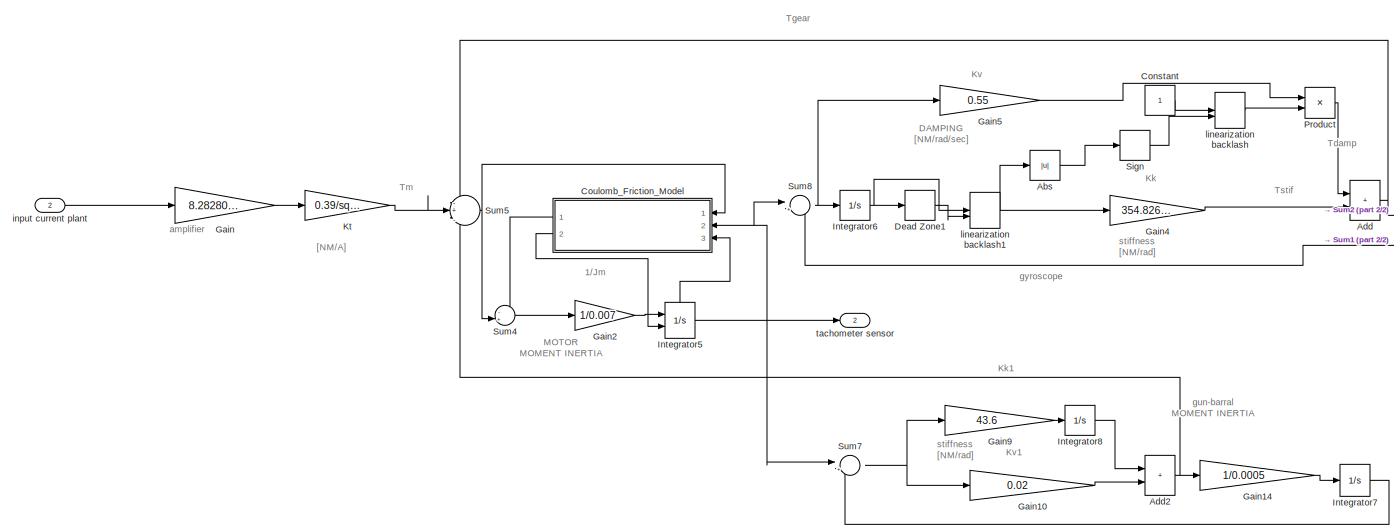
[diagram: Subsystem6/plant - part 1/2, left side, full height]
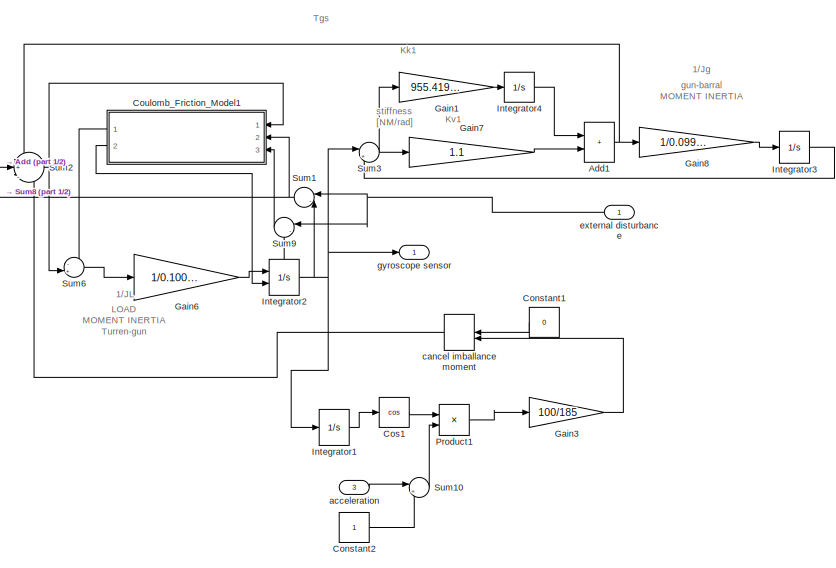
[diagram: Subsystem6/plant - part 2/2, right side, full height]
BLOCK [SubSystem] Subsystem6/plant
  Description = elevation-plant
  Ports = [3, 2]
  RequestExecContextInheritance = off
BLOCK [Abs] Subsystem6/plant/Abs
  SaturateOnIntegerOverflow = off
BLOCK [Sum] Subsystem6/plant/Add
  IconShape = rectangular
  Ports = [2, 1]
BLOCK [Sum] Subsystem6/plant/Add1
  IconShape = rectangular
  Ports = [2, 1]
BLOCK [Sum] Subsystem6/plant/Add2
  IconShape = rectangular
  Ports = [2, 1]
BLOCK [Constant] Subsystem6/plant/Constant
BLOCK [Constant] Subsystem6/plant/Constant1
  Value = 0
BLOCK [Constant] Subsystem6/plant/Constant2
BLOCK [Trigonometry] Subsystem6/plant/Cos1
  Operator = cos
  Ports = [1, 1]
BLOCK [SubSystem] Subsystem6/plant/Coulomb_Friction_Model
  NameLocation = top
  Ports = [3, 2]
  RequestExecContextInheritance = off
BLOCK [Abs] Subsystem6/plant/Coulomb_Friction_Model/Abs2
  SaturateOnIntegerOverflow = off
  ZeroCross = off
BLOCK [Outport] Subsystem6/plant/Coulomb_Friction_Model/Friction_Torque
BLOCK [Gain] Subsystem6/plant/Coulomb_Friction_Model/Gain2
  Gain = 1.1
BLOCK [HitCross] Subsystem6/plant/Coulomb_Friction_Model/Hit Crossing
  Ports = [1, 1]
  ZeroCross = off
BLOCK [MinMax] Subsystem6/plant/Coulomb_Friction_Model/MinMax
  Inputs = 2
  Ports = [2, 1]
BLOCK [Product] Subsystem6/plant/Coulomb_Friction_Model/Product1
  Ports = [2, 1]
  RndMeth = Zero
BLOCK [Product] Subsystem6/plant/Coulomb_Friction_Model/Product2
  Ports = [2, 1]
  RndMeth = Zero
BLOCK [Signum] Subsystem6/plant/Coulomb_Friction_Model/Sign1
  ZeroCross = off
BLOCK [Signum] Subsystem6/plant/Coulomb_Friction_Model/Sign2
  ZeroCross = off
BLOCK [Constant] Subsystem6/plant/Coulomb_Friction_Model/Slip_T_friction
  Value = fric_gear_motor
BLOCK [Constant] Subsystem6/plant/Coulomb_Friction_Model/Stick_T_friction
  Value = fric_gear_motor
BLOCK [Switch] Subsystem6/plant/Coulomb_Friction_Model/Sw6
  Threshold = 0.5
  ZeroCross = off
BLOCK [Inport] Subsystem6/plant/Coulomb_Friction_Model/Torque
BLOCK [Outport] Subsystem6/plant/Coulomb_Friction_Model/reset velocity
  Port = 2
BLOCK [Inport] Subsystem6/plant/Coulomb_Friction_Model/velocity
  Port = 2
BLOCK [Inport] Subsystem6/plant/Coulomb_Friction_Model/velocity state
  Port = 3
BLOCK [SubSystem] Subsystem6/plant/Coulomb_Friction_Model1
  NameLocation = top
  Ports = [3, 2]
  RequestExecContextInheritance = off
BLOCK [Abs] Subsystem6/plant/Coulomb_Friction_Model1/Abs2
  SaturateOnIntegerOverflow = off
  ZeroCross = off
BLOCK [Outport] Subsystem6/plant/Coulomb_Friction_Model1/Friction_Torque
BLOCK [Gain] Subsystem6/plant/Coulomb_Friction_Model1/Gain2
  Gain = 1.1
BLOCK [HitCross] Subsystem6/plant/Coulomb_Friction_Model1/Hit Crossing
  Ports = [1, 1]
  ZeroCross = off
BLOCK [MinMax] Subsystem6/plant/Coulomb_Friction_Model1/MinMax
  Inputs = 2
  Ports = [2, 1]
BLOCK [Product] Subsystem6/plant/Coulomb_Friction_Model1/Product1
  Ports = [2, 1]
  RndMeth = Zero
BLOCK [Product] Subsystem6/plant/Coulomb_Friction_Model1/Product2
  Ports = [2, 1]
  RndMeth = Zero
BLOCK [Signum] Subsystem6/plant/Coulomb_Friction_Model1/Sign1
  ZeroCross = off
BLOCK [Signum] Subsystem6/plant/Coulomb_Friction_Model1/Sign2
  ZeroCross = off
BLOCK [Constant] Subsystem6/plant/Coulomb_Friction_Model1/Slip_T_friction
  SampleTime = 0
  Value = fric_gear_turrent_gun
BLOCK [Constant] Subsystem6/plant/Coulomb_Friction_Model1/Stick_T_friction
  SampleTime = 0
  Value = fric_gear_turrent_gun
BLOCK [Switch] Subsystem6/plant/Coulomb_Friction_Model1/Sw6
  Threshold = 0.5
  ZeroCross = off
BLOCK [Inport] Subsystem6/plant/Coulomb_Friction_Model1/Torque
BLOCK [Outport] Subsystem6/plant/Coulomb_Friction_Model1/reset velocity
  Port = 2
BLOCK [Inport] Subsystem6/plant/Coulomb_Friction_Model1/velocity
  Port = 2
BLOCK [Inport] Subsystem6/plant/Coulomb_Friction_Model1/velocity state
  Port = 3
BLOCK [DeadZone] Subsystem6/plant/Dead Zone1
  LowerValue = -0.07*10^-3
  SaturateOnIntegerOverflow = off
  UpperValue = 0.07*10^-3
  ZeroCross = off
BLOCK [Gain] Subsystem6/plant/Gain
  Gain = 8.282809728
BLOCK [Gain] Subsystem6/plant/Gain1
  Gain = 955.4190534
BLOCK [Gain] Subsystem6/plant/Gain10
  Gain = 0.02
BLOCK [Gain] Subsystem6/plant/Gain14
  Gain = 1/0.0005
BLOCK [Gain] Subsystem6/plant/Gain2
  Gain = 1/0.007
BLOCK [Gain] Subsystem6/plant/Gain3
  Gain = 100/185
BLOCK [Gain] Subsystem6/plant/Gain4
  Gain = 354.8268849
BLOCK [Gain] Subsystem6/plant/Gain5
  Gain = 0.55
BLOCK [Gain] Subsystem6/plant/Gain6
  Gain = 1/0.1005695118
BLOCK [Gain] Subsystem6/plant/Gain7
  Gain = 1.1
BLOCK [Gain] Subsystem6/plant/Gain8
  Gain = 1/0.0994454608
BLOCK [Gain] Subsystem6/plant/Gain9
  Gain = 43.6
BLOCK [Integrator] Subsystem6/plant/Integrator1
  LowerSaturationLimit = 0
  Ports = [1, 1]
  UpperSaturationLimit = pi/2
  WrappedStateLowerValue = 0
  WrappedStateUpperValue = pi/2
BLOCK [Integrator] Subsystem6/plant/Integrator2
  ExternalReset = rising
  Ports = [2, 1, 0, 0, 1]
  ShowStatePort = on
  ZeroCross = off
BLOCK [Integrator] Subsystem6/plant/Integrator3
  Ports = [1, 1]
BLOCK [Integrator] Subsystem6/plant/Integrator4
  Ports = [1, 1]
BLOCK [Integrator] Subsystem6/plant/Integrator5
  ExternalReset = rising
  Ports = [2, 1, 0, 0, 1]
  ShowStatePort = on
  ZeroCross = off
BLOCK [Integrator] Subsystem6/plant/Integrator6
  Ports = [1, 1]
BLOCK [Integrator] Subsystem6/plant/Integrator7
  Ports = [1, 1]
BLOCK [Integrator] Subsystem6/plant/Integrator8
  Ports = [1, 1]
BLOCK [Gain] Subsystem6/plant/Kt
  Gain = 0.39/sqrt(3)
BLOCK [Product] Subsystem6/plant/Product
  Ports = [2, 1]
BLOCK [Product] Subsystem6/plant/Product1
  Ports = [2, 1]
BLOCK [Signum] Subsystem6/plant/Sign
BLOCK [Sum] Subsystem6/plant/Sum1
  Inputs = |-+
  Ports = [2, 1]
BLOCK [Sum] Subsystem6/plant/Sum10
  Inputs = |++
  Ports = [2, 1]
BLOCK [Sum] Subsystem6/plant/Sum2
  Inputs = -+|-
  Ports = [3, 1]
BLOCK [Sum] Subsystem6/plant/Sum3
  Inputs = |+-
  Ports = [2, 1]
BLOCK [Sum] Subsystem6/plant/Sum4
  Inputs = -+|
  Ports = [2, 1]
BLOCK [Sum] Subsystem6/plant/Sum5
  Inputs = -+|-
  Ports = [3, 1]
BLOCK [Sum] Subsystem6/plant/Sum6
  Inputs = -+|
  Ports = [2, 1]
BLOCK [Sum] Subsystem6/plant/Sum7
  Inputs = |+-
  Ports = [2, 1]
BLOCK [Sum] Subsystem6/plant/Sum8
  Inputs = |+-
  Ports = [2, 1]
BLOCK [Sum] Subsystem6/plant/Sum9
  Inputs = |-+
  Ports = [2, 1]
BLOCK [Inport] Subsystem6/plant/acceleration
  Port = 3
BLOCK [ManualSwitch] Subsystem6/plant/cancel imballance moment
  CurrentSetting = 0
  NameLocation = top
BLOCK [Inport] Subsystem6/plant/external disturbance
BLOCK [Outport] Subsystem6/plant/gyroscope sensor
BLOCK [Inport] Subsystem6/plant/input current plant
  Port = 2
BLOCK [ManualSwitch] Subsystem6/plant/linearization backlash
  CurrentSetting = 0
BLOCK [ManualSwitch] Subsystem6/plant/linearization backlash1
  CurrentSetting = 0
BLOCK [Outport] Subsystem6/plant/tachometer sensor
  Port = 2
BLOCK [TransferFcn] Subsystem6/setpoint feedforward gyro
  Denominator = [0.003691 7.208 5167 1.855*10^6 4.932*10^8 1.033*10^11 4.995*10^12 7.875*10^14]
  Numerator = [1 148.9 1.729*10^5 1.52*10^7 7.802*10^9 2.769*10^11 8.762*10^13 0]
BLOCK [Outport] Subsystem6/tachometer sensor
BLOCK [SubSystem] Subsystem7
  Ports = [3, 4]
  RequestExecContextInheritance = off
BLOCK [Constant] Subsystem7/Constant
  Value = 0
BLOCK [Constant] Subsystem7/Constant1
  NameLocation = left
BLOCK [Constant] Subsystem7/Constant2
  NameLocation = left
  Value = -1
BLOCK [Constant] Subsystem7/Constant3
BLOCK [Trigonometry] Subsystem7/Cos
  Operator = cos
  Ports = [1, 1]
BLOCK [Gain] Subsystem7/Gain
  Gain = sqrt(3)/0.39
BLOCK [Gain] Subsystem7/Gain14
  Gain = 0.8
BLOCK [Gain] Subsystem7/Gain4
  Gain = 1/8.282809728
BLOCK [Gain] Subsystem7/Gain5
  Gain = 0.0226
BLOCK [Gain] Subsystem7/Gain6
  Gain = 67.49/185
BLOCK [Gain] Subsystem7/Gain7
  Gain = 1/8.282809728
BLOCK [Gain] Subsystem7/Gain8
  Gain = sqrt(3)/0.39
BLOCK [Integrator] Subsystem7/Integrator
  Ports = [1, 1]
BLOCK [ManualSwitch] Subsystem7/Manual Switch
  CurrentSetting = 0
  NameLocation = top
BLOCK [Product] Subsystem7/Product
  NameLocation = left
  Ports = [2, 1]
BLOCK [Product] Subsystem7/Product1
  Ports = [2, 1]
BLOCK [Signum] Subsystem7/Sign
BLOCK [SubSystem] Subsystem7/Subsystem2
  Ports = [1, 1]
  RequestExecContextInheritance = off
BLOCK [Gain] Subsystem7/Subsystem2/Gain
  Gain = 1/8.282809728
BLOCK [Gain] Subsystem7/Subsystem2/Gain1
  Gain = sqrt(3)/0.39
BLOCK [Gain] Subsystem7/Subsystem2/Gain2
  Gain = 100/185
BLOCK [Gain] Subsystem7/Subsystem2/Gain3
  Gain = -1
BLOCK [Signum] Subsystem7/Subsystem2/Sign
BLOCK [Outport] Subsystem7/Subsystem2/anti friction current
BLOCK [Inport] Subsystem7/Subsystem2/external distribution
BLOCK [SubSystem] Subsystem7/Subsystem3
  Ports = [1, 1]
  RequestExecContextInheritance = off
BLOCK [Gain] Subsystem7/Subsystem3/Gain
  Gain = 4.5
BLOCK [Gain] Subsystem7/Subsystem3/Gain1
BLOCK [Gain] Subsystem7/Subsystem3/Gain2
  Gain = 1.8*2*pi
BLOCK [Inport] Subsystem7/Subsystem3/In1
BLOCK [Integrator] Subsystem7/Subsystem3/Integrator
  Ports = [1, 1]
BLOCK [Outport] Subsystem7/Subsystem3/Out1
BLOCK [Sum] Subsystem7/Subsystem3/Sum
  Inputs = |++
  Ports = [2, 1]
BLOCK [TransferFcn] Subsystem7/Subsystem3/Transfer Fcn1
  Denominator = [1 25.035 2.102*10^4]
  Numerator = [1 21 1.806*10^4]
BLOCK [TransferFcn] Subsystem7/Subsystem3/Transfer Fcn10
  Denominator = [1 40 8.72*10^4]
  Numerator = [1 59.495 9.908*10^4]
BLOCK [TransferFcn] Subsystem7/Subsystem3/Transfer Fcn7
  Denominator = [1/(2*pi*6.38)^2 0.55/355 1]
BLOCK [TransferFcn] Subsystem7/Subsystem3/Transfer Fcn8
  Denominator = [1 2*0.94*2*35.6*pi (2*pi*35.6)^2]
  Numerator = [1 2*0.08*2*35.6*pi (2*pi*35.6)^2]
BLOCK [SubSystem] Subsystem7/Subsystem9
  Ports = [1, 1]
  RequestExecContextInheritance = off
BLOCK [Gain] Subsystem7/Subsystem9/Gain
  Gain = 10
BLOCK [Gain] Subsystem7/Subsystem9/Gain1
  Gain = 26
BLOCK [Inport] Subsystem7/Subsystem9/In1
BLOCK [Integrator] Subsystem7/Subsystem9/Integrator
  Ports = [1, 1]
BLOCK [Outport] Subsystem7/Subsystem9/Output
BLOCK [Sum] Subsystem7/Subsystem9/Sum
  Inputs = |++
  Ports = [2, 1]
BLOCK [TransferFcn] Subsystem7/Subsystem9/Transfer Fcn4
  Denominator = [1 2*pi*21.3*2*0.48 (2*pi*21.3)^2]
  Numerator = [1 2*pi*21.3*2*0.05 (2*pi*21.3)^2]
BLOCK [TransferFcn] Subsystem7/Subsystem9/Transfer Fcn5
  Denominator = [1 188.3 (2*pi*36)^2]
  Numerator = [1 16.78 (2*pi*36)^2]
BLOCK [Sum] Subsystem7/Sum
  Inputs = |-+
  Ports = [2, 1]
BLOCK [Sum] Subsystem7/Sum1
  Inputs = ++|
  NameLocation = right
  Ports = [2, 1]
BLOCK [Sum] Subsystem7/Sum2
  Inputs = ++|
  Ports = [2, 1]
BLOCK [Sum] Subsystem7/Sum3
  Inputs = |++
  Ports = [2, 1]
BLOCK [Sum] Subsystem7/Sum4
  Inputs = |+-
  Ports = [2, 1]
BLOCK [Sum] Subsystem7/Sum5
  Inputs = -+|
  Ports = [2, 1]
BLOCK [TransferFcn] Subsystem7/Transfer Fcn
  Denominator = [0.001592 1.064 178.8 8.72*10^4]
  Numerator = [0.003753 0.1609 350.7  0]
BLOCK [Inport] Subsystem7/acceleration
  Port = 3
BLOCK [ManualSwitch] Subsystem7/close loop or open loop
  CurrentSetting = 0
BLOCK [ManualSwitch] Subsystem7/controller or without
  CurrentSetting = 0
BLOCK [Outport] Subsystem7/error
  Port = 3
BLOCK [ManualSwitch] Subsystem7/feedforward with unballanced moment
  CurrentSetting = 0
  NameLocation = left
BLOCK [Inport] Subsystem7/ground velocity
  Port = 2
BLOCK [ManualSwitch] Subsystem7/gyro or tacho
  CurrentSetting = 0
BLOCK [Outport] Subsystem7/gyroscope angel
  Port = 4
BLOCK [Outport] Subsystem7/gyroscope sensor
  Port = 2
BLOCK [Inport] Subsystem7/input_command
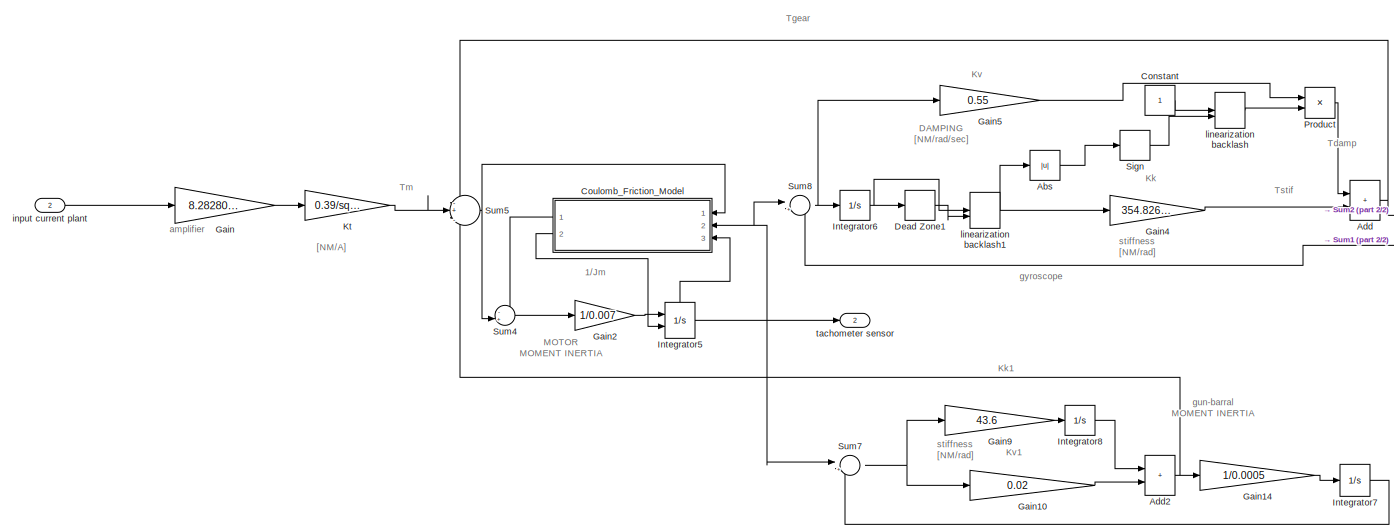
[diagram: Subsystem7/plant - part 1/2, left side, full height]
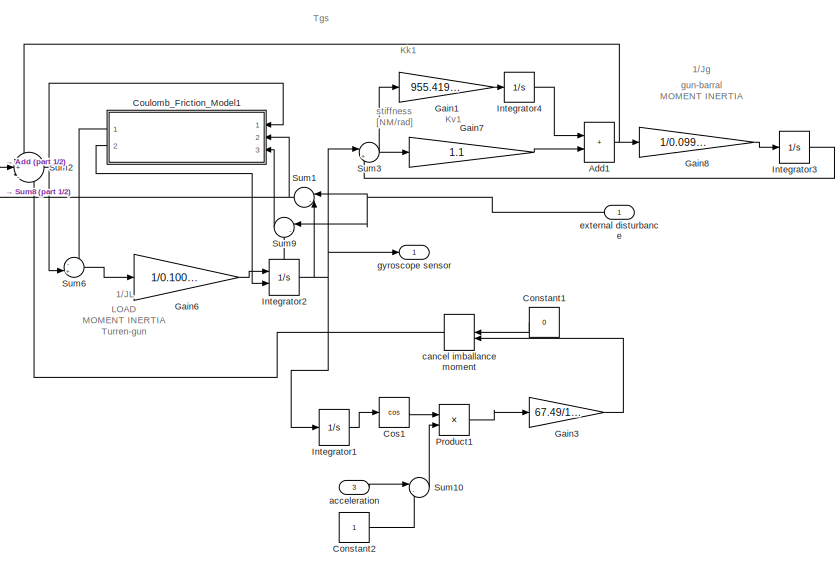
[diagram: Subsystem7/plant - part 2/2, right side, full height]
BLOCK [SubSystem] Subsystem7/plant
  Description = elevation-plant
  Ports = [3, 2]
  RequestExecContextInheritance = off
BLOCK [Abs] Subsystem7/plant/Abs
  SaturateOnIntegerOverflow = off
BLOCK [Sum] Subsystem7/plant/Add
  IconShape = rectangular
  Ports = [2, 1]
BLOCK [Sum] Subsystem7/plant/Add1
  IconShape = rectangular
  Ports = [2, 1]
BLOCK [Sum] Subsystem7/plant/Add2
  IconShape = rectangular
  Ports = [2, 1]
BLOCK [Constant] Subsystem7/plant/Constant
BLOCK [Constant] Subsystem7/plant/Constant1
  Value = 0
BLOCK [Constant] Subsystem7/plant/Constant2
BLOCK [Trigonometry] Subsystem7/plant/Cos1
  Operator = cos
  Ports = [1, 1]
BLOCK [SubSystem] Subsystem7/plant/Coulomb_Friction_Model
  NameLocation = top
  Ports = [3, 2]
  RequestExecContextInheritance = off
BLOCK [Abs] Subsystem7/plant/Coulomb_Friction_Model/Abs2
  SaturateOnIntegerOverflow = off
  ZeroCross = off
BLOCK [Outport] Subsystem7/plant/Coulomb_Friction_Model/Friction_Torque
BLOCK [Gain] Subsystem7/plant/Coulomb_Friction_Model/Gain2
  Gain = 1.1
BLOCK [HitCross] Subsystem7/plant/Coulomb_Friction_Model/Hit Crossing
  Ports = [1, 1]
  ZeroCross = off
BLOCK [MinMax] Subsystem7/plant/Coulomb_Friction_Model/MinMax
  Inputs = 2
  Ports = [2, 1]
BLOCK [Product] Subsystem7/plant/Coulomb_Friction_Model/Product1
  Ports = [2, 1]
  RndMeth = Zero
BLOCK [Product] Subsystem7/plant/Coulomb_Friction_Model/Product2
  Ports = [2, 1]
  RndMeth = Zero
BLOCK [Signum] Subsystem7/plant/Coulomb_Friction_Model/Sign1
  ZeroCross = off
BLOCK [Signum] Subsystem7/plant/Coulomb_Friction_Model/Sign2
  ZeroCross = off
BLOCK [Constant] Subsystem7/plant/Coulomb_Friction_Model/Slip_T_friction
  Value = fric_gear_motor
BLOCK [Constant] Subsystem7/plant/Coulomb_Friction_Model/Stick_T_friction
  Value = fric_gear_motor
BLOCK [Switch] Subsystem7/plant/Coulomb_Friction_Model/Sw6
  Threshold = 0.5
  ZeroCross = off
BLOCK [Inport] Subsystem7/plant/Coulomb_Friction_Model/Torque
BLOCK [Outport] Subsystem7/plant/Coulomb_Friction_Model/reset velocity
  Port = 2
BLOCK [Inport] Subsystem7/plant/Coulomb_Friction_Model/velocity
  Port = 2
BLOCK [Inport] Subsystem7/plant/Coulomb_Friction_Model/velocity state
  Port = 3
BLOCK [SubSystem] Subsystem7/plant/Coulomb_Friction_Model1
  NameLocation = top
  Ports = [3, 2]
  RequestExecContextInheritance = off
BLOCK [Abs] Subsystem7/plant/Coulomb_Friction_Model1/Abs2
  SaturateOnIntegerOverflow = off
  ZeroCross = off
BLOCK [Outport] Subsystem7/plant/Coulomb_Friction_Model1/Friction_Torque
BLOCK [Gain] Subsystem7/plant/Coulomb_Friction_Model1/Gain2
  Gain = 1.1
BLOCK [HitCross] Subsystem7/plant/Coulomb_Friction_Model1/Hit Crossing
  Ports = [1, 1]
  ZeroCross = off
BLOCK [MinMax] Subsystem7/plant/Coulomb_Friction_Model1/MinMax
  Inputs = 2
  Ports = [2, 1]
BLOCK [Product] Subsystem7/plant/Coulomb_Friction_Model1/Product1
  Ports = [2, 1]
  RndMeth = Zero
BLOCK [Product] Subsystem7/plant/Coulomb_Friction_Model1/Product2
  Ports = [2, 1]
  RndMeth = Zero
BLOCK [Signum] Subsystem7/plant/Coulomb_Friction_Model1/Sign1
  ZeroCross = off
BLOCK [Signum] Subsystem7/plant/Coulomb_Friction_Model1/Sign2
  ZeroCross = off
BLOCK [Constant] Subsystem7/plant/Coulomb_Friction_Model1/Slip_T_friction
  SampleTime = 0
  Value = fric_gear_turrent_gun
BLOCK [Constant] Subsystem7/plant/Coulomb_Friction_Model1/Stick_T_friction
  SampleTime = 0
  Value = fric_gear_turrent_gun
BLOCK [Switch] Subsystem7/plant/Coulomb_Friction_Model1/Sw6
  Threshold = 0.5
  ZeroCross = off
BLOCK [Inport] Subsystem7/plant/Coulomb_Friction_Model1/Torque
BLOCK [Outport] Subsystem7/plant/Coulomb_Friction_Model1/reset velocity
  Port = 2
BLOCK [Inport] Subsystem7/plant/Coulomb_Friction_Model1/velocity
  Port = 2
BLOCK [Inport] Subsystem7/plant/Coulomb_Friction_Model1/velocity state
  Port = 3
BLOCK [DeadZone] Subsystem7/plant/Dead Zone1
  LowerValue = -0.07*10^-3
  SaturateOnIntegerOverflow = off
  UpperValue = 0.07*10^-3
  ZeroCross = off
BLOCK [Gain] Subsystem7/plant/Gain
  Gain = 8.282809728
BLOCK [Gain] Subsystem7/plant/Gain1
  Gain = 955.4190534
BLOCK [Gain] Subsystem7/plant/Gain10
  Gain = 0.02
BLOCK [Gain] Subsystem7/plant/Gain14
  Gain = 1/0.0005
BLOCK [Gain] Subsystem7/plant/Gain2
  Gain = 1/0.007
BLOCK [Gain] Subsystem7/plant/Gain3
  Gain = 67.49/185
BLOCK [Gain] Subsystem7/plant/Gain4
  Gain = 354.8268849
BLOCK [Gain] Subsystem7/plant/Gain5
  Gain = 0.55
BLOCK [Gain] Subsystem7/plant/Gain6
  Gain = 1/0.1005695118
BLOCK [Gain] Subsystem7/plant/Gain7
  Gain = 1.1
BLOCK [Gain] Subsystem7/plant/Gain8
  Gain = 1/0.0994454608
BLOCK [Gain] Subsystem7/plant/Gain9
  Gain = 43.6
BLOCK [Integrator] Subsystem7/plant/Integrator1
  LowerSaturationLimit = 0
  Ports = [1, 1]
  UpperSaturationLimit = pi/2
  WrappedStateLowerValue = 0
  WrappedStateUpperValue = pi/2
BLOCK [Integrator] Subsystem7/plant/Integrator2
  ExternalReset = rising
  Ports = [2, 1, 0, 0, 1]
  ShowStatePort = on
  ZeroCross = off
BLOCK [Integrator] Subsystem7/plant/Integrator3
  Ports = [1, 1]
BLOCK [Integrator] Subsystem7/plant/Integrator4
  Ports = [1, 1]
BLOCK [Integrator] Subsystem7/plant/Integrator5
  ExternalReset = rising
  Ports = [2, 1, 0, 0, 1]
  ShowStatePort = on
  ZeroCross = off
BLOCK [Integrator] Subsystem7/plant/Integrator6
  Ports = [1, 1]
BLOCK [Integrator] Subsystem7/plant/Integrator7
  Ports = [1, 1]
BLOCK [Integrator] Subsystem7/plant/Integrator8
  Ports = [1, 1]
BLOCK [Gain] Subsystem7/plant/Kt
  Gain = 0.39/sqrt(3)
BLOCK [Product] Subsystem7/plant/Product
  Ports = [2, 1]
BLOCK [Product] Subsystem7/plant/Product1
  Ports = [2, 1]
BLOCK [Signum] Subsystem7/plant/Sign
BLOCK [Sum] Subsystem7/plant/Sum1
  Inputs = |-+
  Ports = [2, 1]
BLOCK [Sum] Subsystem7/plant/Sum10
  Inputs = |-+
  Ports = [2, 1]
BLOCK [Sum] Subsystem7/plant/Sum2
  Inputs = -+|-
  Ports = [3, 1]
BLOCK [Sum] Subsystem7/plant/Sum3
  Inputs = |+-
  Ports = [2, 1]
BLOCK [Sum] Subsystem7/plant/Sum4
  Inputs = -+|
  Ports = [2, 1]
BLOCK [Sum] Subsystem7/plant/Sum5
  Inputs = -+|-
  Ports = [3, 1]
BLOCK [Sum] Subsystem7/plant/Sum6
  Inputs = -+|
  Ports = [2, 1]
BLOCK [Sum] Subsystem7/plant/Sum7
  Inputs = |+-
  Ports = [2, 1]
BLOCK [Sum] Subsystem7/plant/Sum8
  Inputs = |+-
  Ports = [2, 1]
BLOCK [Sum] Subsystem7/plant/Sum9
  Inputs = |-+
  Ports = [2, 1]
BLOCK [Inport] Subsystem7/plant/acceleration
  Port = 3
BLOCK [ManualSwitch] Subsystem7/plant/cancel imballance moment
  CurrentSetting = 0
  NameLocation = top
BLOCK [Inport] Subsystem7/plant/external disturbance
BLOCK [Outport] Subsystem7/plant/gyroscope sensor
BLOCK [Inport] Subsystem7/plant/input current plant
  Port = 2
BLOCK [ManualSwitch] Subsystem7/plant/linearization backlash
  CurrentSetting = 0
BLOCK [ManualSwitch] Subsystem7/plant/linearization backlash1
  CurrentSetting = 0
BLOCK [Outport] Subsystem7/plant/tachometer sensor
  Port = 2
BLOCK [TransferFcn] Subsystem7/setpoint feedforward gyro
  Denominator = [0.003691 7.208 5167 1.855*10^6 4.932*10^8 1.033*10^11 4.995*10^12 7.875*10^14]
  Numerator = [1 148.9 1.729*10^5 1.52*10^7 7.802*10^9 2.769*10^11 8.762*10^13 0]
BLOCK [Outport] Subsystem7/tachometer sensor
BLOCK [SubSystem] Subsystem8
  Ports = [1, 1]
  RequestExecContextInheritance = off
BLOCK [Gain] Subsystem8/Gain
  Gain = 1.6
BLOCK [Gain] Subsystem8/Gain1
  Gain = 50
BLOCK [Inport] Subsystem8/In1
BLOCK [Integrator] Subsystem8/Integrator
  Ports = [1, 1]
BLOCK [Outport] Subsystem8/Output
BLOCK [Sum] Subsystem8/Sum
  Inputs = |++
  Ports = [2, 1]
BLOCK [TransferFcn] Subsystem8/Transfer Fcn1
  Denominator = [1 40 8.72*10^4]
  Numerator = [1 59.49 9.908*10^4]
BLOCK [TransferFcn] Subsystem8/Transfer Fcn2
  Denominator = [0.008 1]
  Numerator = [0.016 1]
BLOCK [TransferFcn] Subsystem8/Transfer Fcn4
  Denominator = [1 11.06 9607]
  Numerator = [1 21 1.806*10^4]
BLOCK [TransferFcn] Subsystem8/Transfer Fcn5
  Denominator = [1 188.3 (2*pi*36)^2]
  Numerator = [1 16.78 (2*pi*36)^2]
BLOCK [SubSystem] Subsystem9
  Ports = [1, 1]
  RequestExecContextInheritance = off
BLOCK [Gain] Subsystem9/Gain
  Gain = 10
BLOCK [Gain] Subsystem9/Gain1
  Gain = 26
BLOCK [Inport] Subsystem9/In1
BLOCK [Integrator] Subsystem9/Integrator
  Ports = [1, 1]
BLOCK [Outport] Subsystem9/Output
BLOCK [Sum] Subsystem9/Sum
  Inputs = |++
  Ports = [2, 1]
BLOCK [TransferFcn] Subsystem9/Transfer Fcn4
  Denominator = [1 2*pi*21.3*2*0.48 (2*pi*21.3)^2]
  Numerator = [1 2*pi*21.3*2*0.05 (2*pi*21.3)^2]
BLOCK [TransferFcn] Subsystem9/Transfer Fcn5
  Denominator = [1 188.3 (2*pi*36)^2]
  Numerator = [1 16.78 (2*pi*36)^2]
BLOCK [Sum] Sum
  Inputs = |+-
  Ports = [2, 1]
BLOCK [Sum] Sum2
  Inputs = |+-
  Ports = [2, 1]
BLOCK [ZeroOrderHold] Zero-Order Hold
  SampleTime = -1
BLOCK [ZeroOrderHold] Zero-Order Hold1
  SampleTime = -1
BLOCK [ZeroOrderHold] Zero-Order Hold2
  SampleTime = -1
BLOCK [Inport] input_command
BLOCK [SubSystem] linear_plant
  Description = elevation-plant
  Ports = [2, 2]
  RequestExecContextInheritance = off
BLOCK [Abs] linear_plant/Abs
  SaturateOnIntegerOverflow = off
BLOCK [Sum] linear_plant/Add
  IconShape = rectangular
  Ports = [2, 1]
BLOCK [Sum] linear_plant/Add1
  IconShape = rectangular
  Ports = [2, 1]
BLOCK [Sum] linear_plant/Add2
  IconShape = rectangular
  Ports = [2, 1]
BLOCK [Constant] linear_plant/Constant
BLOCK [Constant] linear_plant/Constant1
  Value = 0
BLOCK [Trigonometry] linear_plant/Cos1
  Operator = cos
  Ports = [1, 1]
BLOCK [SubSystem] linear_plant/Coulomb_Friction_Model
  NameLocation = top
  Ports = [3, 2]
  RequestExecContextInheritance = off
BLOCK [Abs] linear_plant/Coulomb_Friction_Model/Abs2
  SaturateOnIntegerOverflow = off
  ZeroCross = off
BLOCK [Outport] linear_plant/Coulomb_Friction_Model/Friction_Torque
BLOCK [Gain] linear_plant/Coulomb_Friction_Model/Gain
  Gain = 0
BLOCK [Gain] linear_plant/Coulomb_Friction_Model/Gain1
  Gain = 0
BLOCK [HitCross] linear_plant/Coulomb_Friction_Model/Hit Crossing
  Ports = [1, 1]
  ZeroCross = off
BLOCK [MinMax] linear_plant/Coulomb_Friction_Model/MinMax
  Inputs = 2
  Ports = [2, 1]
BLOCK [Product] linear_plant/Coulomb_Friction_Model/Product1
  Ports = [2, 1]
  RndMeth = Zero
BLOCK [Product] linear_plant/Coulomb_Friction_Model/Product2
  Ports = [2, 1]
  RndMeth = Zero
BLOCK [Signum] linear_plant/Coulomb_Friction_Model/Sign1
  ZeroCross = off
BLOCK [Signum] linear_plant/Coulomb_Friction_Model/Sign2
  ZeroCross = off
BLOCK [Constant] linear_plant/Coulomb_Friction_Model/Slip_T_friction
  Value = fric_gear_motor
BLOCK [Constant] linear_plant/Coulomb_Friction_Model/Stick_T_friction
  Value = fric_gear_motor
BLOCK [Switch] linear_plant/Coulomb_Friction_Model/Sw6
  Threshold = 0.5
  ZeroCross = off
BLOCK [Inport] linear_plant/Coulomb_Friction_Model/Torque
BLOCK [Outport] linear_plant/Coulomb_Friction_Model/reset velocity
  Port = 2
BLOCK [Inport] linear_plant/Coulomb_Friction_Model/velocity
  Port = 2
BLOCK [Inport] linear_plant/Coulomb_Friction_Model/velocity state
  Port = 3
BLOCK [SubSystem] linear_plant/Coulomb_Friction_Model1
  NameLocation = top
  Ports = [3, 2]
  RequestExecContextInheritance = off
BLOCK [Abs] linear_plant/Coulomb_Friction_Model1/Abs2
  SaturateOnIntegerOverflow = off
  ZeroCross = off
BLOCK [Outport] linear_plant/Coulomb_Friction_Model1/Friction_Torque
BLOCK [Gain] linear_plant/Coulomb_Friction_Model1/Gain
  Gain = 0
BLOCK [Gain] linear_plant/Coulomb_Friction_Model1/Gain1
  Gain = 0
BLOCK [HitCross] linear_plant/Coulomb_Friction_Model1/Hit Crossing
  Ports = [1, 1]
  ZeroCross = off
BLOCK [MinMax] linear_plant/Coulomb_Friction_Model1/MinMax
  Inputs = 2
  Ports = [2, 1]
BLOCK [Product] linear_plant/Coulomb_Friction_Model1/Product1
  Ports = [2, 1]
  RndMeth = Zero
BLOCK [Product] linear_plant/Coulomb_Friction_Model1/Product2
  Ports = [2, 1]
  RndMeth = Zero
BLOCK [Signum] linear_plant/Coulomb_Friction_Model1/Sign1
  ZeroCross = off
BLOCK [Signum] linear_plant/Coulomb_Friction_Model1/Sign2
  ZeroCross = off
BLOCK [Constant] linear_plant/Coulomb_Friction_Model1/Slip_T_friction
  SampleTime = 0
  Value = fric_gear_turrent_gun
BLOCK [Constant] linear_plant/Coulomb_Friction_Model1/Stick_T_friction
  SampleTime = 0
  Value = fric_gear_turrent_gun
BLOCK [Switch] linear_plant/Coulomb_Friction_Model1/Sw6
  Threshold = 0.5
  ZeroCross = off
BLOCK [Inport] linear_plant/Coulomb_Friction_Model1/Torque
BLOCK [Outport] linear_plant/Coulomb_Friction_Model1/reset velocity
  Port = 2
BLOCK [Inport] linear_plant/Coulomb_Friction_Model1/velocity
  Port = 2
BLOCK [Inport] linear_plant/Coulomb_Friction_Model1/velocity state
  Port = 3
BLOCK [DeadZone] linear_plant/Dead Zone1
  LowerValue = -0.07*10^-3
  SaturateOnIntegerOverflow = off
  UpperValue = 0.07*10^-3
  ZeroCross = off
BLOCK [Gain] linear_plant/Gain
  Gain = 8.282809728
BLOCK [Gain] linear_plant/Gain1
  Gain = 955.4190534
BLOCK [Gain] linear_plant/Gain10
  Gain = 0.02
BLOCK [Gain] linear_plant/Gain14
  Gain = 1/0.0005
BLOCK [Gain] linear_plant/Gain2
  Gain = 1/0.007
BLOCK [Gain] linear_plant/Gain3
  Gain = 67.49/185
BLOCK [Gain] linear_plant/Gain4
  Gain = 354.8268849
BLOCK [Gain] linear_plant/Gain5
  Gain = 0.55
BLOCK [Gain] linear_plant/Gain6
  Gain = 1/0.1005695118
BLOCK [Gain] linear_plant/Gain7
  Gain = 1.1
BLOCK [Gain] linear_plant/Gain8
  Gain = 1/0.0994454608
BLOCK [Gain] linear_plant/Gain9
  Gain = 43.6
BLOCK [Integrator] linear_plant/Integrator1
  LowerSaturationLimit = 0
  Ports = [1, 1]
  UpperSaturationLimit = pi/2
  WrappedStateLowerValue = 0
  WrappedStateUpperValue = pi/2
BLOCK [Integrator] linear_plant/Integrator2
  ExternalReset = rising
  Ports = [2, 1, 0, 0, 1]
  ShowStatePort = on
  ZeroCross = off
BLOCK [Integrator] linear_plant/Integrator3
  Ports = [1, 1]
BLOCK [Integrator] linear_plant/Integrator4
  Ports = [1, 1]
BLOCK [Integrator] linear_plant/Integrator5
  ExternalReset = rising
  Ports = [2, 1, 0, 0, 1]
  ShowStatePort = on
  ZeroCross = off
BLOCK [Integrator] linear_plant/Integrator6
  Ports = [1, 1]
BLOCK [Integrator] linear_plant/Integrator7
  Ports = [1, 1]
BLOCK [Integrator] linear_plant/Integrator8
  Ports = [1, 1]
BLOCK [Gain] linear_plant/Kt
  Gain = 0.39/sqrt(3)
BLOCK [Product] linear_plant/Product
  Ports = [2, 1]
BLOCK [Scope] linear_plant/Scope
  Floating = off
  NumInputPorts = 2
  Ports = [2]
  ScopeSpecificationString = Simulink.scopes.TimeScopeBlockCfg('CurrentConfiguration', extmgr.ConfigurationSet(extmgr.Configuration('Core','General UI',true),extmgr.Configuration('Core','Source UI',true),extmgr.Configuration('Sources','WiredSimulink',true,'DataLoggingVariableName','ScopeData1'),extmgr.Configuration('Visuals','Time Domain',true,'SerializedDisplays',{struct('MinYLimReal','-0.81049','MaxYLimReal','9.71045','YLab...<+2418ch>
BLOCK [Signum] linear_plant/Sign
BLOCK [Sum] linear_plant/Sum1
  Inputs = |++
  Ports = [2, 1]
BLOCK [Sum] linear_plant/Sum2
  Inputs = -+|-
  Ports = [3, 1]
BLOCK [Sum] linear_plant/Sum3
  Inputs = |+-
  Ports = [2, 1]
BLOCK [Sum] linear_plant/Sum4
  Inputs = -+|
  Ports = [2, 1]
BLOCK [Sum] linear_plant/Sum5
  Inputs = -+|-
  Ports = [3, 1]
BLOCK [Sum] linear_plant/Sum6
  Inputs = -+|
  Ports = [2, 1]
BLOCK [Sum] linear_plant/Sum7
  Inputs = |+-
  Ports = [2, 1]
BLOCK [Sum] linear_plant/Sum8
  Inputs = |+-
  Ports = [2, 1]
BLOCK [Sum] linear_plant/Sum9
  Inputs = |++
  Ports = [2, 1]
BLOCK [ManualSwitch] linear_plant/cancel imballance moment
  NameLocation = top
BLOCK [Inport] linear_plant/external disturbance
BLOCK [Outport] linear_plant/gyroscope sensor
BLOCK [Inport] linear_plant/input_current_plant
  Port = 2
BLOCK [ManualSwitch] linear_plant/linearization backlash
BLOCK [ManualSwitch] linear_plant/linearization backlash1
BLOCK [Outport] linear_plant/tachometer_sensor
  Port = 2
ANNOTATION Subsystem2: controller gyro
ANNOTATION Subsystem2: controller tacho
ANNOTATION Subsystem2: FEEDFORWARD GROUND DISTRIBUTION
ANNOTATION Subsystem2: gyro
ANNOTATION Subsystem2: simple controller gyro
ANNOTATION Subsystem2: tachometer
ANNOTATION Subsystem2: current
ANNOTATION Subsystem2/plant: 1/J m
ANNOTATION Subsystem2/plant: 1/J L
ANNOTATION Subsystem2/plant: 1/Jg
ANNOTATION Subsystem2/plant: K k1
ANNOTATION Subsystem2/plant: K k
ANNOTATION Subsystem2/plant: T gear
ANNOTATION Subsystem2/plant: gyroscope
ANNOTATION Subsystem2/plant: K v1
ANNOTATION Subsystem2/plant: LOAD MOMENT INERTIA Turren-gun
ANNOTATION Subsystem2/plant: T m
ANNOTATION Subsystem2/plant: T damp
ANNOTATION Subsystem2/plant: T stif
ANNOTATION Subsystem2/plant: T gs
ANNOTATION Subsystem2/plant: K v
ANNOTATION Subsystem2/plant: DAMPING [NM/rad/sec]
ANNOTATION Subsystem2/plant: MOTOR MOMENT INERTIA
ANNOTATION Subsystem2/plant: [NM/A]
ANNOTATION Subsystem2/plant: amplifier
ANNOTATION Subsystem2/plant: gun-barral MOMENT INERTIA
ANNOTATION Subsystem2/plant: stiffness [NM/rad]
ANNOTATION Subsystem3: controller gyro
ANNOTATION Subsystem3: controller tacho
ANNOTATION Subsystem3: FEEDFORWARD GROUND DISTRIBUTION
ANNOTATION Subsystem3: gyro
ANNOTATION Subsystem3: simple controller gyro
ANNOTATION Subsystem3: tachometer
ANNOTATION Subsystem3: current
ANNOTATION Subsystem3: Jm
ANNOTATION Subsystem3/plant: 1/J m
ANNOTATION Subsystem3/plant: 1/J L
ANNOTATION Subsystem3/plant: 1/Jg
ANNOTATION Subsystem3/plant: K k1
ANNOTATION Subsystem3/plant: K k
ANNOTATION Subsystem3/plant: T gear
ANNOTATION Subsystem3/plant: gyroscope
ANNOTATION Subsystem3/plant: K v1
ANNOTATION Subsystem3/plant: LOAD MOMENT INERTIA Turren-gun
ANNOTATION Subsystem3/plant: T m
ANNOTATION Subsystem3/plant: T damp
ANNOTATION Subsystem3/plant: T stif
ANNOTATION Subsystem3/plant: T gs
ANNOTATION Subsystem3/plant: K v
ANNOTATION Subsystem3/plant: DAMPING [NM/rad/sec]
ANNOTATION Subsystem3/plant: MOTOR MOMENT INERTIA
ANNOTATION Subsystem3/plant: [NM/A]
ANNOTATION Subsystem3/plant: amplifier
ANNOTATION Subsystem3/plant: gun-barral MOMENT INERTIA
ANNOTATION Subsystem3/plant: stiffness [NM/rad]
ANNOTATION Subsystem4: controller gyro
ANNOTATION Subsystem4: controller tacho
ANNOTATION Subsystem4: FEEDFORWARD GROUND DISTRIBUTION
ANNOTATION Subsystem4: gyro
ANNOTATION Subsystem4: simple controller gyro
ANNOTATION Subsystem4: tachometer
ANNOTATION Subsystem4: current
ANNOTATION Subsystem4: Jm
ANNOTATION Subsystem4/plant: 1/J m
ANNOTATION Subsystem4/plant: 1/J L
ANNOTATION Subsystem4/plant: 1/Jg
ANNOTATION Subsystem4/plant: K k1
ANNOTATION Subsystem4/plant: K k
ANNOTATION Subsystem4/plant: T gear
ANNOTATION Subsystem4/plant: gyroscope
ANNOTATION Subsystem4/plant: K v1
ANNOTATION Subsystem4/plant: LOAD MOMENT INERTIA Turren-gun
ANNOTATION Subsystem4/plant: T m
ANNOTATION Subsystem4/plant: T damp
ANNOTATION Subsystem4/plant: T stif
ANNOTATION Subsystem4/plant: T gs
ANNOTATION Subsystem4/plant: K v
ANNOTATION Subsystem4/plant: DAMPING [NM/rad/sec]
ANNOTATION Subsystem4/plant: MOTOR MOMENT INERTIA
ANNOTATION Subsystem4/plant: [NM/A]
ANNOTATION Subsystem4/plant: amplifier
ANNOTATION Subsystem4/plant: gun-barral MOMENT INERTIA
ANNOTATION Subsystem4/plant: stiffness [NM/rad]
ANNOTATION Subsystem5: controller gyro
ANNOTATION Subsystem5: controller tacho
ANNOTATION Subsystem5: gyro
ANNOTATION Subsystem5: simple controller gyro
ANNOTATION Subsystem5: controller tacho for low velocity
ANNOTATION Subsystem5/plant: 1/J m
ANNOTATION Subsystem5/plant: 1/J L
ANNOTATION Subsystem5/plant: 1/Jg
ANNOTATION Subsystem5/plant: K k1
ANNOTATION Subsystem5/plant: K k
ANNOTATION Subsystem5/plant: T gear
ANNOTATION Subsystem5/plant: gyroscope
ANNOTATION Subsystem5/plant: K v1
ANNOTATION Subsystem5/plant: LOAD MOMENT INERTIA Turren-gun
ANNOTATION Subsystem5/plant: T m
ANNOTATION Subsystem5/plant: T damp
ANNOTATION Subsystem5/plant: T stif
ANNOTATION Subsystem5/plant: T gs
ANNOTATION Subsystem5/plant: K v
ANNOTATION Subsystem5/plant: DAMPING [NM/rad/sec]
ANNOTATION Subsystem5/plant: MOTOR MOMENT INERTIA
ANNOTATION Subsystem5/plant: [NM/A]
ANNOTATION Subsystem5/plant: amplifier
ANNOTATION Subsystem5/plant: gun-barral MOMENT INERTIA
ANNOTATION Subsystem5/plant: stiffness [NM/rad]
ANNOTATION Subsystem6: controller gyro
ANNOTATION Subsystem6: controller tacho
ANNOTATION Subsystem6: FEEDFORWARD GROUND DISTRIBUTION
ANNOTATION Subsystem6: gyro
ANNOTATION Subsystem6: simple controller gyro
ANNOTATION Subsystem6: tachometer
ANNOTATION Subsystem6: current
ANNOTATION Subsystem6/plant: 1/J m
ANNOTATION Subsystem6/plant: 1/J L
ANNOTATION Subsystem6/plant: 1/Jg
ANNOTATION Subsystem6/plant: K k1
ANNOTATION Subsystem6/plant: K k
ANNOTATION Subsystem6/plant: T gear
ANNOTATION Subsystem6/plant: gyroscope
ANNOTATION Subsystem6/plant: K v1
ANNOTATION Subsystem6/plant: LOAD MOMENT INERTIA Turren-gun
ANNOTATION Subsystem6/plant: T m
ANNOTATION Subsystem6/plant: T damp
ANNOTATION Subsystem6/plant: T stif
ANNOTATION Subsystem6/plant: T gs
ANNOTATION Subsystem6/plant: K v
ANNOTATION Subsystem6/plant: DAMPING [NM/rad/sec]
ANNOTATION Subsystem6/plant: MOTOR MOMENT INERTIA
ANNOTATION Subsystem6/plant: [NM/A]
ANNOTATION Subsystem6/plant: amplifier
ANNOTATION Subsystem6/plant: gun-barral MOMENT INERTIA
ANNOTATION Subsystem6/plant: stiffness [NM/rad]
ANNOTATION Subsystem7: controller gyro
ANNOTATION Subsystem7: controller tacho
ANNOTATION Subsystem7: FEEDFORWARD GROUND DISTRIBUTION
ANNOTATION Subsystem7: gyro
ANNOTATION Subsystem7: simple controller gyro
ANNOTATION Subsystem7: tachometer
ANNOTATION Subsystem7: current
ANNOTATION Subsystem7/plant: 1/J m
ANNOTATION Subsystem7/plant: 1/J L
ANNOTATION Subsystem7/plant: 1/Jg
ANNOTATION Subsystem7/plant: K k1
ANNOTATION Subsystem7/plant: K k
ANNOTATION Subsystem7/plant: T gear
ANNOTATION Subsystem7/plant: gyroscope
ANNOTATION Subsystem7/plant: K v1
ANNOTATION Subsystem7/plant: LOAD MOMENT INERTIA Turren-gun
ANNOTATION Subsystem7/plant: T m
ANNOTATION Subsystem7/plant: T damp
ANNOTATION Subsystem7/plant: T stif
ANNOTATION Subsystem7/plant: T gs
ANNOTATION Subsystem7/plant: K v
ANNOTATION Subsystem7/plant: DAMPING [NM/rad/sec]
ANNOTATION Subsystem7/plant: MOTOR MOMENT INERTIA
ANNOTATION Subsystem7/plant: [NM/A]
ANNOTATION Subsystem7/plant: amplifier
ANNOTATION Subsystem7/plant: gun-barral MOMENT INERTIA
ANNOTATION Subsystem7/plant: stiffness [NM/rad]
ANNOTATION linear_plant: 1/J m
ANNOTATION linear_plant: 1/J L
ANNOTATION linear_plant: 1/Jg
ANNOTATION linear_plant: K k1
ANNOTATION linear_plant: K k
ANNOTATION linear_plant: T gear
ANNOTATION linear_plant: gyroscope
ANNOTATION linear_plant: K v1
ANNOTATION linear_plant: LOAD MOMENT INERTIA Turren-gun
ANNOTATION linear_plant: T m
ANNOTATION linear_plant: T damp
ANNOTATION linear_plant: T stif
ANNOTATION linear_plant: T gs
ANNOTATION linear_plant: K v
ANNOTATION linear_plant: DAMPING [NM/rad/sec]
ANNOTATION linear_plant: MOTOR MOMENT INERTIA
ANNOTATION linear_plant: [NM/A]
ANNOTATION linear_plant: amplifier
ANNOTATION linear_plant: gun-barral MOMENT INERTIA
ANNOTATION linear_plant: stiffness [NM/rad]
LINE Constant1:1 -> Subsystem1:enable
LINE From Workspace1:1 -> Gain1:1
LINE From Workspace2:1 -> Gain2:1
LINE From Workspace3:1 -> Subsystem6:3
LINE From Workspace4:1 -> Gain4:1
LINE From Workspace6:1 -> Gain6:1
LINE From Workspace:1 -> Gain:1
NET From1:1 -> Gain17:1, Subsystem1:1
LINE Gain14:1 -> Subsystem9:1
LINE Gain17:1 -> SpectrumInOut:1
LINE Gain18:1 -> SpectrumInOut:2
LINE Gain1:1 -> Subsystem3:2
LINE Gain2:1 -> Subsystem4:2
LINE Gain3:1 -> Scope6:1
LINE Gain4:1 -> Subsystem7:2
NET Gain:1 -> Mux:1, Subsystem2:2
LINE Mux:1 -> Zero-Order Hold1:1
LINE Step1:1 -> Sum2:1
LINE Step:1 -> Subsystem5:1
LINE Subsystem/Gain1:1 -> Subsystem/Sum:2
LINE Subsystem/Gain2:1 -> Subsystem/Integrator:1
NET Subsystem/Gain:1 -> Subsystem/Gain1:1, Subsystem/Gain2:1
LINE Subsystem/In1:1 -> Subsystem/Transfer Fcn7:1
LINE Subsystem/Integrator:1 -> Subsystem/Sum:1
LINE Subsystem/Sum:1 -> Subsystem/input_current_plant:1
LINE Subsystem/Transfer Fcn10:1 -> Subsystem/Transfer Fcn1:1
LINE Subsystem/Transfer Fcn1:1 -> Subsystem/Transfer Fcn8:1
LINE Subsystem/Transfer Fcn7:1 -> Subsystem/Transfer Fcn10:1
LINE Subsystem/Transfer Fcn8:1 -> Subsystem/Gain:1
NET Subsystem1/Chirp Signal1:1 -> Subsystem1/Scope2:1, Subsystem1/gain 3:1
LINE Subsystem1/Input:1 -> Subsystem1/Mux2:2
LINE Subsystem1/Mux2:1 -> Subsystem1/TSABAD_out_log:1
NET Subsystem1/gain 3:1 -> Subsystem1/Mux2:1, Subsystem1/Output2:1
NET Subsystem1:1 -> Gain18:1, Goto3:1, Output2:1
LINE Subsystem2/Constant:1 -> Subsystem2/close loop or open loop:1
LINE Subsystem2/Gain14:1 -> Subsystem2/Subsystem1:1
LINE Subsystem2/Integrator:1 -> Subsystem2/gyroscope angel:1
LINE Subsystem2/Manual Switch:1 -> Subsystem2/close loop or open loop:2
LINE Subsystem2/Subsystem1/Gain1:1 -> Subsystem2/Subsystem1/Integrator:1
LINE Subsystem2/Subsystem1/Gain:1 -> Subsystem2/Subsystem1/Sum:2
LINE Subsystem2/Subsystem1/In1:1 -> Subsystem2/Subsystem1/Transfer Fcn5:1
LINE Subsystem2/Subsystem1/Integrator:1 -> Subsystem2/Subsystem1/Sum:1
LINE Subsystem2/Subsystem1/Sum:1 -> Subsystem2/Subsystem1/Output:1
NET Subsystem2/Subsystem1/Transfer Fcn4:1 -> Subsystem2/Subsystem1/Gain1:1, Subsystem2/Subsystem1/Gain:1
LINE Subsystem2/Subsystem1/Transfer Fcn5:1 -> Subsystem2/Subsystem1/Transfer Fcn4:1
LINE Subsystem2/Subsystem1:1 -> Subsystem2/gyro or tacho:2
LINE Subsystem2/Subsystem2/Gain1:1 -> Subsystem2/Subsystem2/Sum:2
LINE Subsystem2/Subsystem2/Gain2:1 -> Subsystem2/Subsystem2/Integrator:1
NET Subsystem2/Subsystem2/Gain:1 -> Subsystem2/Subsystem2/Gain1:1, Subsystem2/Subsystem2/Gain2:1
LINE Subsystem2/Subsystem2/In1:1 -> Subsystem2/Subsystem2/Transfer Fcn7:1
LINE Subsystem2/Subsystem2/Integrator:1 -> Subsystem2/Subsystem2/Sum:1
LINE Subsystem2/Subsystem2/Sum:1 -> Subsystem2/Subsystem2/Out1:1
LINE Subsystem2/Subsystem2/Transfer Fcn10:1 -> Subsystem2/Subsystem2/Transfer Fcn1:1
LINE Subsystem2/Subsystem2/Transfer Fcn1:1 -> Subsystem2/Subsystem2/Transfer Fcn8:1
LINE Subsystem2/Subsystem2/Transfer Fcn7:1 -> Subsystem2/Subsystem2/Transfer Fcn10:1
LINE Subsystem2/Subsystem2/Transfer Fcn8:1 -> Subsystem2/Subsystem2/Gain:1
LINE Subsystem2/Subsystem2:1 -> Subsystem2/gyro or tacho:1
NET Subsystem2/Sum4:1 -> Subsystem2/Gain14:1, Subsystem2/Subsystem2:1, Subsystem2/controller or without:1, Subsystem2/error:1
LINE Subsystem2/Sum:1 -> Subsystem2/plant:2
LINE Subsystem2/Transfer Fcn:1 -> Subsystem2/Sum:1
LINE Subsystem2/close loop or open loop:1 -> Subsystem2/Sum4:2
LINE Subsystem2/controller or without:1 -> Subsystem2/Sum:2
NET Subsystem2/ground velocity:1 -> Subsystem2/Transfer Fcn:1, Subsystem2/plant:1
LINE Subsystem2/gyro or tacho:1 -> Subsystem2/controller or without:2
LINE Subsystem2/input_command:1 -> Subsystem2/Sum4:1
LINE Subsystem2/plant/Abs:1 -> Subsystem2/plant/Sign:1
NET Subsystem2/plant/Add1:1 -> Subsystem2/plant/Gain8:1, Subsystem2/plant/Sum2:1
NET Subsystem2/plant/Add2:1 -> Subsystem2/plant/Gain14:1, Subsystem2/plant/Sum5:3
NET Subsystem2/plant/Add:1 -> Subsystem2/plant/Sum2:2, Subsystem2/plant/Sum5:1
LINE Subsystem2/plant/Constant1:1 -> Subsystem2/plant/cancel imballance moment:1
LINE Subsystem2/plant/Constant:1 -> Subsystem2/plant/linearization backlash:1
LINE Subsystem2/plant/Cos1:1 -> Subsystem2/plant/Gain3:1
LINE Subsystem2/plant/Coulomb_Friction_Model/Abs2:1 -> Subsystem2/plant/Coulomb_Friction_Model/MinMax:2
LINE Subsystem2/plant/Coulomb_Friction_Model/Gain2:1 -> Subsystem2/plant/Coulomb_Friction_Model/MinMax:1
LINE Subsystem2/plant/Coulomb_Friction_Model/Gain:1 -> Subsystem2/plant/Coulomb_Friction_Model/Product1:1
NET Subsystem2/plant/Coulomb_Friction_Model/Hit Crossing:1 -> Subsystem2/plant/Coulomb_Friction_Model/Sw6:2, Subsystem2/plant/Coulomb_Friction_Model/reset velocity:1
LINE Subsystem2/plant/Coulomb_Friction_Model/MinMax:1 -> Subsystem2/plant/Coulomb_Friction_Model/Product2:1
LINE Subsystem2/plant/Coulomb_Friction_Model/Product1:1 -> Subsystem2/plant/Coulomb_Friction_Model/Sw6:3
LINE Subsystem2/plant/Coulomb_Friction_Model/Product2:1 -> Subsystem2/plant/Coulomb_Friction_Model/Sw6:1
LINE Subsystem2/plant/Coulomb_Friction_Model/Sign1:1 -> Subsystem2/plant/Coulomb_Friction_Model/Product2:2
LINE Subsystem2/plant/Coulomb_Friction_Model/Sign2:1 -> Subsystem2/plant/Coulomb_Friction_Model/Product1:2
LINE Subsystem2/plant/Coulomb_Friction_Model/Slip_T_friction:1 -> Subsystem2/plant/Coulomb_Friction_Model/Gain:1
LINE Subsystem2/plant/Coulomb_Friction_Model/Stick_T_friction:1 -> Subsystem2/plant/Coulomb_Friction_Model/Gain2:1
LINE Subsystem2/plant/Coulomb_Friction_Model/Sw6:1 -> Subsystem2/plant/Coulomb_Friction_Model/Friction_Torque:1
NET Subsystem2/plant/Coulomb_Friction_Model/Torque:1 -> Subsystem2/plant/Coulomb_Friction_Model/Abs2:1, Subsystem2/plant/Coulomb_Friction_Model/Sign1:1
LINE Subsystem2/plant/Coulomb_Friction_Model/velocity state:1 -> Subsystem2/plant/Coulomb_Friction_Model/Hit Crossing:1
LINE Subsystem2/plant/Coulomb_Friction_Model/velocity:1 -> Subsystem2/plant/Coulomb_Friction_Model/Sign2:1
LINE Subsystem2/plant/Coulomb_Friction_Model1/Abs2:1 -> Subsystem2/plant/Coulomb_Friction_Model1/MinMax:2
LINE Subsystem2/plant/Coulomb_Friction_Model1/Gain2:1 -> Subsystem2/plant/Coulomb_Friction_Model1/MinMax:1
LINE Subsystem2/plant/Coulomb_Friction_Model1/Gain:1 -> Subsystem2/plant/Coulomb_Friction_Model1/Product1:1
NET Subsystem2/plant/Coulomb_Friction_Model1/Hit Crossing:1 -> Subsystem2/plant/Coulomb_Friction_Model1/Sw6:2, Subsystem2/plant/Coulomb_Friction_Model1/reset velocity:1
LINE Subsystem2/plant/Coulomb_Friction_Model1/MinMax:1 -> Subsystem2/plant/Coulomb_Friction_Model1/Product2:1
LINE Subsystem2/plant/Coulomb_Friction_Model1/Product1:1 -> Subsystem2/plant/Coulomb_Friction_Model1/Sw6:3
LINE Subsystem2/plant/Coulomb_Friction_Model1/Product2:1 -> Subsystem2/plant/Coulomb_Friction_Model1/Sw6:1
LINE Subsystem2/plant/Coulomb_Friction_Model1/Sign1:1 -> Subsystem2/plant/Coulomb_Friction_Model1/Product1:2
LINE Subsystem2/plant/Coulomb_Friction_Model1/Sign2:1 -> Subsystem2/plant/Coulomb_Friction_Model1/Product2:2
LINE Subsystem2/plant/Coulomb_Friction_Model1/Slip_T_friction:1 -> Subsystem2/plant/Coulomb_Friction_Model1/Gain:1
LINE Subsystem2/plant/Coulomb_Friction_Model1/Stick_T_friction:1 -> Subsystem2/plant/Coulomb_Friction_Model1/Gain2:1
LINE Subsystem2/plant/Coulomb_Friction_Model1/Sw6:1 -> Subsystem2/plant/Coulomb_Friction_Model1/Friction_Torque:1
NET Subsystem2/plant/Coulomb_Friction_Model1/Torque:1 -> Subsystem2/plant/Coulomb_Friction_Model1/Abs2:1, Subsystem2/plant/Coulomb_Friction_Model1/Sign2:1
LINE Subsystem2/plant/Coulomb_Friction_Model1/velocity state:1 -> Subsystem2/plant/Coulomb_Friction_Model1/Hit Crossing:1
LINE Subsystem2/plant/Coulomb_Friction_Model1/velocity:1 -> Subsystem2/plant/Coulomb_Friction_Model1/Sign1:1
LINE Subsystem2/plant/Coulomb_Friction_Model1:1 -> Subsystem2/plant/Sum6:1
LINE Subsystem2/plant/Coulomb_Friction_Model1:2 -> Subsystem2/plant/Integrator2:2
LINE Subsystem2/plant/Coulomb_Friction_Model:1 -> Subsystem2/plant/Sum4:1
LINE Subsystem2/plant/Coulomb_Friction_Model:2 -> Subsystem2/plant/Integrator5:2
LINE Subsystem2/plant/Dead Zone1:1 -> Subsystem2/plant/linearization backlash1:2
LINE Subsystem2/plant/Gain10:1 -> Subsystem2/plant/Add2:2
LINE Subsystem2/plant/Gain14:1 -> Subsystem2/plant/Integrator7:1
LINE Subsystem2/plant/Gain1:1 -> Subsystem2/plant/Integrator4:1
LINE Subsystem2/plant/Gain2:1 -> Subsystem2/plant/Integrator5:1
LINE Subsystem2/plant/Gain3:1 -> Subsystem2/plant/cancel imballance moment:2
LINE Subsystem2/plant/Gain4:1 -> Subsystem2/plant/Add:2
LINE Subsystem2/plant/Gain5:1 -> Subsystem2/plant/Product:1
LINE Subsystem2/plant/Gain6:1 -> Subsystem2/plant/Integrator2:1
LINE Subsystem2/plant/Gain7:1 -> Subsystem2/plant/Add1:2
LINE Subsystem2/plant/Gain8:1 -> Subsystem2/plant/Integrator3:1
LINE Subsystem2/plant/Gain9:1 -> Subsystem2/plant/Integrator8:1
LINE Subsystem2/plant/Gain:1 -> Subsystem2/plant/Kt:1
LINE Subsystem2/plant/Integrator1:1 -> Subsystem2/plant/Cos1:1
NET Subsystem2/plant/Integrator2:1 -> Subsystem2/plant/Integrator1:1, Subsystem2/plant/Sum1:2, Subsystem2/plant/Sum3:1, Subsystem2/plant/gyroscope sensor:1
LINE Subsystem2/plant/Integrator2:state -> Subsystem2/plant/Sum9:2
LINE Subsystem2/plant/Integrator3:1 -> Subsystem2/plant/Sum3:2
LINE Subsystem2/plant/Integrator4:1 -> Subsystem2/plant/Add1:1
NET Subsystem2/plant/Integrator5:1 -> Subsystem2/plant/Coulomb_Friction_Model:2, Subsystem2/plant/Sum7:1, Subsystem2/plant/Sum8:1, Subsystem2/plant/tachometer sensor:1
LINE Subsystem2/plant/Integrator5:state -> Subsystem2/plant/Coulomb_Friction_Model:3
NET Subsystem2/plant/Integrator6:1 -> Subsystem2/plant/Dead Zone1:1, Subsystem2/plant/linearization backlash1:1
LINE Subsystem2/plant/Integrator7:1 -> Subsystem2/plant/Sum7:2
LINE Subsystem2/plant/Integrator8:1 -> Subsystem2/plant/Add2:1
LINE Subsystem2/plant/Kt:1 -> Subsystem2/plant/Sum5:2
LINE Subsystem2/plant/Product:1 -> Subsystem2/plant/Add:1
LINE Subsystem2/plant/Sign:1 -> Subsystem2/plant/linearization backlash:2
NET Subsystem2/plant/Sum1:1 -> Subsystem2/plant/Coulomb_Friction_Model1:2, Subsystem2/plant/Sum8:2
NET Subsystem2/plant/Sum2:1 -> Subsystem2/plant/Coulomb_Friction_Model1:1, Subsystem2/plant/Sum6:2
NET Subsystem2/plant/Sum3:1 -> Subsystem2/plant/Gain1:1, Subsystem2/plant/Gain7:1
LINE Subsystem2/plant/Sum4:1 -> Subsystem2/plant/Gain2:1
NET Subsystem2/plant/Sum5:1 -> Subsystem2/plant/Coulomb_Friction_Model:1, Subsystem2/plant/Sum4:2
LINE Subsystem2/plant/Sum6:1 -> Subsystem2/plant/Gain6:1
NET Subsystem2/plant/Sum7:1 -> Subsystem2/plant/Gain10:1, Subsystem2/plant/Gain9:1
NET Subsystem2/plant/Sum8:1 -> Subsystem2/plant/Gain5:1, Subsystem2/plant/Integrator6:1
LINE Subsystem2/plant/Sum9:1 -> Subsystem2/plant/Coulomb_Friction_Model1:3
LINE Subsystem2/plant/cancel imballance moment:1 -> Subsystem2/plant/Sum2:3
NET Subsystem2/plant/external disturbance:1 -> Subsystem2/plant/Sum1:1, Subsystem2/plant/Sum9:1
LINE Subsystem2/plant/input current plant:1 -> Subsystem2/plant/Gain:1
NET Subsystem2/plant/linearization backlash1:1 -> Subsystem2/plant/Abs:1, Subsystem2/plant/Gain4:1
LINE Subsystem2/plant/linearization backlash:1 -> Subsystem2/plant/Product:2
NET Subsystem2/plant:1 -> Subsystem2/Integrator:1, Subsystem2/Manual Switch:2, Subsystem2/gyroscope sensor:1
NET Subsystem2/plant:2 -> Subsystem2/Manual Switch:1, Subsystem2/tachometer sensor:1
LINE Subsystem2:1 -> Output1:1
LINE Subsystem2:2 -> Output:1
NET Subsystem2:4 -> Mux:2, Scope1:1, Zero-Order Hold:1
LINE Subsystem3/Constant:1 -> Subsystem3/close loop or open loop:1
LINE Subsystem3/Derivative:1 -> Subsystem3/Gain1:1
LINE Subsystem3/Gain14:1 -> Subsystem3/Subsystem9:1
LINE Subsystem3/Gain1:1 -> Subsystem3/Gain2:1
LINE Subsystem3/Gain2:1 -> Subsystem3/Gain3:1
LINE Subsystem3/Integrator:1 -> Subsystem3/gyroscope angel:1
LINE Subsystem3/Manual Switch:1 -> Subsystem3/close loop or open loop:2
LINE Subsystem3/Subsystem1/Gain1:1 -> Subsystem3/Subsystem1/Sum:2
LINE Subsystem3/Subsystem1/Gain2:1 -> Subsystem3/Subsystem1/Integrator:1
NET Subsystem3/Subsystem1/Gain:1 -> Subsystem3/Subsystem1/Gain1:1, Subsystem3/Subsystem1/Gain2:1
LINE Subsystem3/Subsystem1/In1:1 -> Subsystem3/Subsystem1/Transfer Fcn7:1
LINE Subsystem3/Subsystem1/Integrator:1 -> Subsystem3/Subsystem1/Sum:1
LINE Subsystem3/Subsystem1/Sum:1 -> Subsystem3/Subsystem1/Out1:1
LINE Subsystem3/Subsystem1/Transfer Fcn10:1 -> Subsystem3/Subsystem1/Transfer Fcn1:1
LINE Subsystem3/Subsystem1/Transfer Fcn1:1 -> Subsystem3/Subsystem1/Transfer Fcn8:1
LINE Subsystem3/Subsystem1/Transfer Fcn7:1 -> Subsystem3/Subsystem1/Transfer Fcn10:1
LINE Subsystem3/Subsystem1/Transfer Fcn8:1 -> Subsystem3/Subsystem1/Gain:1
LINE Subsystem3/Subsystem1:1 -> Subsystem3/gyro or tacho:1
LINE Subsystem3/Subsystem9/Gain1:1 -> Subsystem3/Subsystem9/Integrator:1
LINE Subsystem3/Subsystem9/Gain:1 -> Subsystem3/Subsystem9/Sum:2
LINE Subsystem3/Subsystem9/In1:1 -> Subsystem3/Subsystem9/Transfer Fcn5:1
LINE Subsystem3/Subsystem9/Integrator:1 -> Subsystem3/Subsystem9/Sum:1
LINE Subsystem3/Subsystem9/Sum:1 -> Subsystem3/Subsystem9/Output:1
NET Subsystem3/Subsystem9/Transfer Fcn4:1 -> Subsystem3/Subsystem9/Gain1:1, Subsystem3/Subsystem9/Gain:1
LINE Subsystem3/Subsystem9/Transfer Fcn5:1 -> Subsystem3/Subsystem9/Transfer Fcn4:1
LINE Subsystem3/Subsystem9:1 -> Subsystem3/gyro or tacho:2
NET Subsystem3/Sum4:1 -> Subsystem3/Gain14:1, Subsystem3/Subsystem1:1, Subsystem3/controller or without:1, Subsystem3/error:1
LINE Subsystem3/Sum:1 -> Subsystem3/plant:2
LINE Subsystem3/close loop or open loop:1 -> Subsystem3/Sum4:2
LINE Subsystem3/controller or without:1 -> Subsystem3/Sum:2
NET Subsystem3/ground velocity:1 -> Subsystem3/Derivative:1, Subsystem3/plant:1
LINE Subsystem3/gyro or tacho:1 -> Subsystem3/controller or without:2
LINE Subsystem3/input_command:1 -> Subsystem3/Sum4:1
LINE Subsystem3/plant/Abs:1 -> Subsystem3/plant/Sign:1
NET Subsystem3/plant/Add1:1 -> Subsystem3/plant/Gain8:1, Subsystem3/plant/Sum2:1
NET Subsystem3/plant/Add2:1 -> Subsystem3/plant/Gain14:1, Subsystem3/plant/Sum5:3
NET Subsystem3/plant/Add:1 -> Subsystem3/plant/Sum2:2, Subsystem3/plant/Sum5:1
LINE Subsystem3/plant/Constant1:1 -> Subsystem3/plant/cancel imballance moment:1
LINE Subsystem3/plant/Constant:1 -> Subsystem3/plant/linearization backlash:1
LINE Subsystem3/plant/Cos1:1 -> Subsystem3/plant/Gain3:1
LINE Subsystem3/plant/Coulomb_Friction_Model/Abs2:1 -> Subsystem3/plant/Coulomb_Friction_Model/MinMax:2
LINE Subsystem3/plant/Coulomb_Friction_Model/Gain2:1 -> Subsystem3/plant/Coulomb_Friction_Model/MinMax:1
LINE Subsystem3/plant/Coulomb_Friction_Model/Gain:1 -> Subsystem3/plant/Coulomb_Friction_Model/Product1:1
NET Subsystem3/plant/Coulomb_Friction_Model/Hit Crossing:1 -> Subsystem3/plant/Coulomb_Friction_Model/Sw6:2, Subsystem3/plant/Coulomb_Friction_Model/reset velocity:1
LINE Subsystem3/plant/Coulomb_Friction_Model/MinMax:1 -> Subsystem3/plant/Coulomb_Friction_Model/Product2:1
LINE Subsystem3/plant/Coulomb_Friction_Model/Product1:1 -> Subsystem3/plant/Coulomb_Friction_Model/Sw6:3
LINE Subsystem3/plant/Coulomb_Friction_Model/Product2:1 -> Subsystem3/plant/Coulomb_Friction_Model/Sw6:1
LINE Subsystem3/plant/Coulomb_Friction_Model/Sign1:1 -> Subsystem3/plant/Coulomb_Friction_Model/Product2:2
LINE Subsystem3/plant/Coulomb_Friction_Model/Sign2:1 -> Subsystem3/plant/Coulomb_Friction_Model/Product1:2
LINE Subsystem3/plant/Coulomb_Friction_Model/Slip_T_friction:1 -> Subsystem3/plant/Coulomb_Friction_Model/Gain:1
LINE Subsystem3/plant/Coulomb_Friction_Model/Stick_T_friction:1 -> Subsystem3/plant/Coulomb_Friction_Model/Gain2:1
LINE Subsystem3/plant/Coulomb_Friction_Model/Sw6:1 -> Subsystem3/plant/Coulomb_Friction_Model/Friction_Torque:1
NET Subsystem3/plant/Coulomb_Friction_Model/Torque:1 -> Subsystem3/plant/Coulomb_Friction_Model/Abs2:1, Subsystem3/plant/Coulomb_Friction_Model/Sign1:1
LINE Subsystem3/plant/Coulomb_Friction_Model/velocity state:1 -> Subsystem3/plant/Coulomb_Friction_Model/Hit Crossing:1
LINE Subsystem3/plant/Coulomb_Friction_Model/velocity:1 -> Subsystem3/plant/Coulomb_Friction_Model/Sign2:1
LINE Subsystem3/plant/Coulomb_Friction_Model1/Abs2:1 -> Subsystem3/plant/Coulomb_Friction_Model1/MinMax:2
LINE Subsystem3/plant/Coulomb_Friction_Model1/Gain2:1 -> Subsystem3/plant/Coulomb_Friction_Model1/MinMax:1
LINE Subsystem3/plant/Coulomb_Friction_Model1/Gain:1 -> Subsystem3/plant/Coulomb_Friction_Model1/Product1:1
NET Subsystem3/plant/Coulomb_Friction_Model1/Hit Crossing:1 -> Subsystem3/plant/Coulomb_Friction_Model1/Sw6:2, Subsystem3/plant/Coulomb_Friction_Model1/reset velocity:1
LINE Subsystem3/plant/Coulomb_Friction_Model1/MinMax:1 -> Subsystem3/plant/Coulomb_Friction_Model1/Product2:1
LINE Subsystem3/plant/Coulomb_Friction_Model1/Product1:1 -> Subsystem3/plant/Coulomb_Friction_Model1/Sw6:3
LINE Subsystem3/plant/Coulomb_Friction_Model1/Product2:1 -> Subsystem3/plant/Coulomb_Friction_Model1/Sw6:1
LINE Subsystem3/plant/Coulomb_Friction_Model1/Sign1:1 -> Subsystem3/plant/Coulomb_Friction_Model1/Product1:2
LINE Subsystem3/plant/Coulomb_Friction_Model1/Sign2:1 -> Subsystem3/plant/Coulomb_Friction_Model1/Product2:2
LINE Subsystem3/plant/Coulomb_Friction_Model1/Slip_T_friction:1 -> Subsystem3/plant/Coulomb_Friction_Model1/Gain:1
LINE Subsystem3/plant/Coulomb_Friction_Model1/Stick_T_friction:1 -> Subsystem3/plant/Coulomb_Friction_Model1/Gain2:1
LINE Subsystem3/plant/Coulomb_Friction_Model1/Sw6:1 -> Subsystem3/plant/Coulomb_Friction_Model1/Friction_Torque:1
NET Subsystem3/plant/Coulomb_Friction_Model1/Torque:1 -> Subsystem3/plant/Coulomb_Friction_Model1/Abs2:1, Subsystem3/plant/Coulomb_Friction_Model1/Sign2:1
LINE Subsystem3/plant/Coulomb_Friction_Model1/velocity state:1 -> Subsystem3/plant/Coulomb_Friction_Model1/Hit Crossing:1
LINE Subsystem3/plant/Coulomb_Friction_Model1/velocity:1 -> Subsystem3/plant/Coulomb_Friction_Model1/Sign1:1
LINE Subsystem3/plant/Coulomb_Friction_Model1:1 -> Subsystem3/plant/Sum6:1
LINE Subsystem3/plant/Coulomb_Friction_Model1:2 -> Subsystem3/plant/Integrator2:2
LINE Subsystem3/plant/Coulomb_Friction_Model:1 -> Subsystem3/plant/Sum4:1
LINE Subsystem3/plant/Coulomb_Friction_Model:2 -> Subsystem3/plant/Integrator5:2
LINE Subsystem3/plant/Dead Zone1:1 -> Subsystem3/plant/linearization backlash1:2
LINE Subsystem3/plant/Gain10:1 -> Subsystem3/plant/Add2:2
LINE Subsystem3/plant/Gain14:1 -> Subsystem3/plant/Integrator7:1
LINE Subsystem3/plant/Gain1:1 -> Subsystem3/plant/Integrator4:1
LINE Subsystem3/plant/Gain2:1 -> Subsystem3/plant/Integrator5:1
LINE Subsystem3/plant/Gain3:1 -> Subsystem3/plant/cancel imballance moment:2
LINE Subsystem3/plant/Gain4:1 -> Subsystem3/plant/Add:2
LINE Subsystem3/plant/Gain5:1 -> Subsystem3/plant/Product:1
LINE Subsystem3/plant/Gain6:1 -> Subsystem3/plant/Integrator2:1
LINE Subsystem3/plant/Gain7:1 -> Subsystem3/plant/Add1:2
LINE Subsystem3/plant/Gain8:1 -> Subsystem3/plant/Integrator3:1
LINE Subsystem3/plant/Gain9:1 -> Subsystem3/plant/Integrator8:1
LINE Subsystem3/plant/Gain:1 -> Subsystem3/plant/Kt:1
LINE Subsystem3/plant/Integrator1:1 -> Subsystem3/plant/Cos1:1
NET Subsystem3/plant/Integrator2:1 -> Subsystem3/plant/Integrator1:1, Subsystem3/plant/Sum1:2, Subsystem3/plant/Sum3:1, Subsystem3/plant/gyroscope sensor:1
LINE Subsystem3/plant/Integrator2:state -> Subsystem3/plant/Sum9:2
LINE Subsystem3/plant/Integrator3:1 -> Subsystem3/plant/Sum3:2
LINE Subsystem3/plant/Integrator4:1 -> Subsystem3/plant/Add1:1
NET Subsystem3/plant/Integrator5:1 -> Subsystem3/plant/Coulomb_Friction_Model:2, Subsystem3/plant/Sum7:1, Subsystem3/plant/Sum8:1, Subsystem3/plant/tachometer sensor:1
LINE Subsystem3/plant/Integrator5:state -> Subsystem3/plant/Coulomb_Friction_Model:3
NET Subsystem3/plant/Integrator6:1 -> Subsystem3/plant/Dead Zone1:1, Subsystem3/plant/linearization backlash1:1
LINE Subsystem3/plant/Integrator7:1 -> Subsystem3/plant/Sum7:2
LINE Subsystem3/plant/Integrator8:1 -> Subsystem3/plant/Add2:1
LINE Subsystem3/plant/Kt:1 -> Subsystem3/plant/Sum5:2
LINE Subsystem3/plant/Product:1 -> Subsystem3/plant/Add:1
LINE Subsystem3/plant/Sign:1 -> Subsystem3/plant/linearization backlash:2
NET Subsystem3/plant/Sum1:1 -> Subsystem3/plant/Coulomb_Friction_Model1:2, Subsystem3/plant/Sum8:2
NET Subsystem3/plant/Sum2:1 -> Subsystem3/plant/Coulomb_Friction_Model1:1, Subsystem3/plant/Sum6:2
NET Subsystem3/plant/Sum3:1 -> Subsystem3/plant/Gain1:1, Subsystem3/plant/Gain7:1
LINE Subsystem3/plant/Sum4:1 -> Subsystem3/plant/Gain2:1
NET Subsystem3/plant/Sum5:1 -> Subsystem3/plant/Coulomb_Friction_Model:1, Subsystem3/plant/Sum4:2
LINE Subsystem3/plant/Sum6:1 -> Subsystem3/plant/Gain6:1
NET Subsystem3/plant/Sum7:1 -> Subsystem3/plant/Gain10:1, Subsystem3/plant/Gain9:1
NET Subsystem3/plant/Sum8:1 -> Subsystem3/plant/Gain5:1, Subsystem3/plant/Integrator6:1
LINE Subsystem3/plant/Sum9:1 -> Subsystem3/plant/Coulomb_Friction_Model1:3
LINE Subsystem3/plant/cancel imballance moment:1 -> Subsystem3/plant/Sum2:3
NET Subsystem3/plant/external disturbance:1 -> Subsystem3/plant/Sum1:1, Subsystem3/plant/Sum9:1
LINE Subsystem3/plant/input current plant:1 -> Subsystem3/plant/Gain:1
NET Subsystem3/plant/linearization backlash1:1 -> Subsystem3/plant/Abs:1, Subsystem3/plant/Gain4:1
LINE Subsystem3/plant/linearization backlash:1 -> Subsystem3/plant/Product:2
NET Subsystem3/plant:1 -> Subsystem3/Integrator:1, Subsystem3/Manual Switch:2, Subsystem3/gyroscope sensor:1
NET Subsystem3/plant:2 -> Subsystem3/Manual Switch:1, Subsystem3/tachometer sensor:1
LINE Subsystem3:1 -> Output4:1
LINE Subsystem3:2 -> Output3:1
NET Subsystem3:4 -> Scope1:2, Scope5:1
LINE Subsystem4/Constant:1 -> Subsystem4/close loop or open loop:1
LINE Subsystem4/Derivative:1 -> Subsystem4/Gain1:1
LINE Subsystem4/Gain14:1 -> Subsystem4/Subsystem9:1
LINE Subsystem4/Gain1:1 -> Subsystem4/Gain2:1
LINE Subsystem4/Gain2:1 -> Subsystem4/Gain3:1
LINE Subsystem4/Integrator:1 -> Subsystem4/gyroscope angel:1
LINE Subsystem4/Manual Switch:1 -> Subsystem4/close loop or open loop:2
LINE Subsystem4/Subsystem2/Gain1:1 -> Subsystem4/Subsystem2/Sum:2
LINE Subsystem4/Subsystem2/Gain2:1 -> Subsystem4/Subsystem2/Integrator:1
NET Subsystem4/Subsystem2/Gain:1 -> Subsystem4/Subsystem2/Gain1:1, Subsystem4/Subsystem2/Gain2:1
LINE Subsystem4/Subsystem2/In1:1 -> Subsystem4/Subsystem2/Transfer Fcn7:1
LINE Subsystem4/Subsystem2/Integrator:1 -> Subsystem4/Subsystem2/Sum:1
LINE Subsystem4/Subsystem2/Sum:1 -> Subsystem4/Subsystem2/Out1:1
LINE Subsystem4/Subsystem2/Transfer Fcn10:1 -> Subsystem4/Subsystem2/Transfer Fcn1:1
LINE Subsystem4/Subsystem2/Transfer Fcn1:1 -> Subsystem4/Subsystem2/Transfer Fcn8:1
LINE Subsystem4/Subsystem2/Transfer Fcn7:1 -> Subsystem4/Subsystem2/Transfer Fcn10:1
LINE Subsystem4/Subsystem2/Transfer Fcn8:1 -> Subsystem4/Subsystem2/Gain:1
LINE Subsystem4/Subsystem2:1 -> Subsystem4/gyro or tacho:1
LINE Subsystem4/Subsystem9/Gain1:1 -> Subsystem4/Subsystem9/Integrator:1
LINE Subsystem4/Subsystem9/Gain:1 -> Subsystem4/Subsystem9/Sum:2
LINE Subsystem4/Subsystem9/In1:1 -> Subsystem4/Subsystem9/Transfer Fcn5:1
LINE Subsystem4/Subsystem9/Integrator:1 -> Subsystem4/Subsystem9/Sum:1
LINE Subsystem4/Subsystem9/Sum:1 -> Subsystem4/Subsystem9/Output:1
NET Subsystem4/Subsystem9/Transfer Fcn4:1 -> Subsystem4/Subsystem9/Gain1:1, Subsystem4/Subsystem9/Gain:1
LINE Subsystem4/Subsystem9/Transfer Fcn5:1 -> Subsystem4/Subsystem9/Transfer Fcn4:1
LINE Subsystem4/Subsystem9:1 -> Subsystem4/gyro or tacho:2
NET Subsystem4/Sum4:1 -> Subsystem4/Gain14:1, Subsystem4/Subsystem2:1, Subsystem4/controller or without:1, Subsystem4/error:1
LINE Subsystem4/Sum:1 -> Subsystem4/plant:2
LINE Subsystem4/close loop or open loop:1 -> Subsystem4/Sum4:2
LINE Subsystem4/controller or without:1 -> Subsystem4/Sum:2
NET Subsystem4/ground velocity:1 -> Subsystem4/Derivative:1, Subsystem4/plant:1
LINE Subsystem4/gyro or tacho:1 -> Subsystem4/controller or without:2
LINE Subsystem4/input_command:1 -> Subsystem4/Sum4:1
LINE Subsystem4/plant/Abs:1 -> Subsystem4/plant/Sign:1
NET Subsystem4/plant/Add1:1 -> Subsystem4/plant/Gain8:1, Subsystem4/plant/Sum2:1
NET Subsystem4/plant/Add2:1 -> Subsystem4/plant/Gain14:1, Subsystem4/plant/Sum5:3
NET Subsystem4/plant/Add:1 -> Subsystem4/plant/Sum2:2, Subsystem4/plant/Sum5:1
LINE Subsystem4/plant/Constant1:1 -> Subsystem4/plant/cancel imballance moment:1
LINE Subsystem4/plant/Constant:1 -> Subsystem4/plant/linearization backlash:1
LINE Subsystem4/plant/Cos1:1 -> Subsystem4/plant/Gain3:1
LINE Subsystem4/plant/Coulomb_Friction_Model/Abs2:1 -> Subsystem4/plant/Coulomb_Friction_Model/MinMax:2
LINE Subsystem4/plant/Coulomb_Friction_Model/Gain2:1 -> Subsystem4/plant/Coulomb_Friction_Model/MinMax:1
NET Subsystem4/plant/Coulomb_Friction_Model/Hit Crossing:1 -> Subsystem4/plant/Coulomb_Friction_Model/Sw6:2, Subsystem4/plant/Coulomb_Friction_Model/reset velocity:1
LINE Subsystem4/plant/Coulomb_Friction_Model/MinMax:1 -> Subsystem4/plant/Coulomb_Friction_Model/Product2:1
LINE Subsystem4/plant/Coulomb_Friction_Model/Product1:1 -> Subsystem4/plant/Coulomb_Friction_Model/Sw6:3
LINE Subsystem4/plant/Coulomb_Friction_Model/Product2:1 -> Subsystem4/plant/Coulomb_Friction_Model/Sw6:1
LINE Subsystem4/plant/Coulomb_Friction_Model/Sign1:1 -> Subsystem4/plant/Coulomb_Friction_Model/Product2:2
LINE Subsystem4/plant/Coulomb_Friction_Model/Sign2:1 -> Subsystem4/plant/Coulomb_Friction_Model/Product1:2
LINE Subsystem4/plant/Coulomb_Friction_Model/Slip_T_friction:1 -> Subsystem4/plant/Coulomb_Friction_Model/Product1:1
LINE Subsystem4/plant/Coulomb_Friction_Model/Stick_T_friction:1 -> Subsystem4/plant/Coulomb_Friction_Model/Gain2:1
LINE Subsystem4/plant/Coulomb_Friction_Model/Sw6:1 -> Subsystem4/plant/Coulomb_Friction_Model/Friction_Torque:1
NET Subsystem4/plant/Coulomb_Friction_Model/Torque:1 -> Subsystem4/plant/Coulomb_Friction_Model/Abs2:1, Subsystem4/plant/Coulomb_Friction_Model/Sign1:1
LINE Subsystem4/plant/Coulomb_Friction_Model/velocity state:1 -> Subsystem4/plant/Coulomb_Friction_Model/Hit Crossing:1
LINE Subsystem4/plant/Coulomb_Friction_Model/velocity:1 -> Subsystem4/plant/Coulomb_Friction_Model/Sign2:1
LINE Subsystem4/plant/Coulomb_Friction_Model1/Abs2:1 -> Subsystem4/plant/Coulomb_Friction_Model1/MinMax:2
LINE Subsystem4/plant/Coulomb_Friction_Model1/Gain2:1 -> Subsystem4/plant/Coulomb_Friction_Model1/MinMax:1
NET Subsystem4/plant/Coulomb_Friction_Model1/Hit Crossing:1 -> Subsystem4/plant/Coulomb_Friction_Model1/Sw6:2, Subsystem4/plant/Coulomb_Friction_Model1/reset velocity:1
LINE Subsystem4/plant/Coulomb_Friction_Model1/MinMax:1 -> Subsystem4/plant/Coulomb_Friction_Model1/Product2:1
LINE Subsystem4/plant/Coulomb_Friction_Model1/Product1:1 -> Subsystem4/plant/Coulomb_Friction_Model1/Sw6:3
LINE Subsystem4/plant/Coulomb_Friction_Model1/Product2:1 -> Subsystem4/plant/Coulomb_Friction_Model1/Sw6:1
LINE Subsystem4/plant/Coulomb_Friction_Model1/Sign1:1 -> Subsystem4/plant/Coulomb_Friction_Model1/Product1:2
LINE Subsystem4/plant/Coulomb_Friction_Model1/Sign2:1 -> Subsystem4/plant/Coulomb_Friction_Model1/Product2:2
LINE Subsystem4/plant/Coulomb_Friction_Model1/Slip_T_friction:1 -> Subsystem4/plant/Coulomb_Friction_Model1/Product1:1
LINE Subsystem4/plant/Coulomb_Friction_Model1/Stick_T_friction:1 -> Subsystem4/plant/Coulomb_Friction_Model1/Gain2:1
LINE Subsystem4/plant/Coulomb_Friction_Model1/Sw6:1 -> Subsystem4/plant/Coulomb_Friction_Model1/Friction_Torque:1
NET Subsystem4/plant/Coulomb_Friction_Model1/Torque:1 -> Subsystem4/plant/Coulomb_Friction_Model1/Abs2:1, Subsystem4/plant/Coulomb_Friction_Model1/Sign2:1
LINE Subsystem4/plant/Coulomb_Friction_Model1/velocity state:1 -> Subsystem4/plant/Coulomb_Friction_Model1/Hit Crossing:1
LINE Subsystem4/plant/Coulomb_Friction_Model1/velocity:1 -> Subsystem4/plant/Coulomb_Friction_Model1/Sign1:1
NET Subsystem4/plant/Coulomb_Friction_Model1:1 -> Subsystem4/plant/Scope:1, Subsystem4/plant/Sum6:1
LINE Subsystem4/plant/Coulomb_Friction_Model1:2 -> Subsystem4/plant/Integrator2:2
LINE Subsystem4/plant/Coulomb_Friction_Model:1 -> Subsystem4/plant/Sum4:1
LINE Subsystem4/plant/Coulomb_Friction_Model:2 -> Subsystem4/plant/Integrator5:2
LINE Subsystem4/plant/Dead Zone1:1 -> Subsystem4/plant/linearization backlash1:2
LINE Subsystem4/plant/Gain10:1 -> Subsystem4/plant/Add2:2
LINE Subsystem4/plant/Gain14:1 -> Subsystem4/plant/Integrator7:1
LINE Subsystem4/plant/Gain1:1 -> Subsystem4/plant/Integrator4:1
LINE Subsystem4/plant/Gain2:1 -> Subsystem4/plant/Integrator5:1
LINE Subsystem4/plant/Gain3:1 -> Subsystem4/plant/cancel imballance moment:2
LINE Subsystem4/plant/Gain4:1 -> Subsystem4/plant/Add:2
LINE Subsystem4/plant/Gain5:1 -> Subsystem4/plant/Product:1
LINE Subsystem4/plant/Gain6:1 -> Subsystem4/plant/Integrator2:1
LINE Subsystem4/plant/Gain7:1 -> Subsystem4/plant/Add1:2
LINE Subsystem4/plant/Gain8:1 -> Subsystem4/plant/Integrator3:1
LINE Subsystem4/plant/Gain9:1 -> Subsystem4/plant/Integrator8:1
LINE Subsystem4/plant/Gain:1 -> Subsystem4/plant/Kt:1
LINE Subsystem4/plant/Integrator1:1 -> Subsystem4/plant/Cos1:1
NET Subsystem4/plant/Integrator2:1 -> Subsystem4/plant/Integrator1:1, Subsystem4/plant/Sum1:2, Subsystem4/plant/Sum3:1, Subsystem4/plant/gyroscope sensor:1
LINE Subsystem4/plant/Integrator2:state -> Subsystem4/plant/Sum9:2
LINE Subsystem4/plant/Integrator3:1 -> Subsystem4/plant/Sum3:2
LINE Subsystem4/plant/Integrator4:1 -> Subsystem4/plant/Add1:1
NET Subsystem4/plant/Integrator5:1 -> Subsystem4/plant/Coulomb_Friction_Model:2, Subsystem4/plant/Sum7:1, Subsystem4/plant/Sum8:1, Subsystem4/plant/tachometer sensor:1
LINE Subsystem4/plant/Integrator5:state -> Subsystem4/plant/Coulomb_Friction_Model:3
NET Subsystem4/plant/Integrator6:1 -> Subsystem4/plant/Dead Zone1:1, Subsystem4/plant/linearization backlash1:1
LINE Subsystem4/plant/Integrator7:1 -> Subsystem4/plant/Sum7:2
LINE Subsystem4/plant/Integrator8:1 -> Subsystem4/plant/Add2:1
LINE Subsystem4/plant/Kt:1 -> Subsystem4/plant/Sum5:2
LINE Subsystem4/plant/Product:1 -> Subsystem4/plant/Add:1
LINE Subsystem4/plant/Sign:1 -> Subsystem4/plant/linearization backlash:2
NET Subsystem4/plant/Sum1:1 -> Subsystem4/plant/Coulomb_Friction_Model1:2, Subsystem4/plant/Sum8:2
NET Subsystem4/plant/Sum2:1 -> Subsystem4/plant/Coulomb_Friction_Model1:1, Subsystem4/plant/Sum6:2
NET Subsystem4/plant/Sum3:1 -> Subsystem4/plant/Gain1:1, Subsystem4/plant/Gain7:1
LINE Subsystem4/plant/Sum4:1 -> Subsystem4/plant/Gain2:1
NET Subsystem4/plant/Sum5:1 -> Subsystem4/plant/Coulomb_Friction_Model:1, Subsystem4/plant/Sum4:2
LINE Subsystem4/plant/Sum6:1 -> Subsystem4/plant/Gain6:1
NET Subsystem4/plant/Sum7:1 -> Subsystem4/plant/Gain10:1, Subsystem4/plant/Gain9:1
NET Subsystem4/plant/Sum8:1 -> Subsystem4/plant/Gain5:1, Subsystem4/plant/Integrator6:1
LINE Subsystem4/plant/Sum9:1 -> Subsystem4/plant/Coulomb_Friction_Model1:3
LINE Subsystem4/plant/cancel imballance moment:1 -> Subsystem4/plant/Sum2:3
NET Subsystem4/plant/external disturbance:1 -> Subsystem4/plant/Sum1:1, Subsystem4/plant/Sum9:1
LINE Subsystem4/plant/input current plant:1 -> Subsystem4/plant/Gain:1
NET Subsystem4/plant/linearization backlash1:1 -> Subsystem4/plant/Abs:1, Subsystem4/plant/Gain4:1
LINE Subsystem4/plant/linearization backlash:1 -> Subsystem4/plant/Product:2
NET Subsystem4/plant:1 -> Subsystem4/Integrator:1, Subsystem4/Manual Switch:2, Subsystem4/gyroscope sensor:1
NET Subsystem4/plant:2 -> Subsystem4/Manual Switch:1, Subsystem4/tachometer sensor:1
LINE Subsystem4:1 -> Output6:1
LINE Subsystem4:2 -> Output5:1
LINE Subsystem4:4 -> Scope1:3
LINE Subsystem5/Constant5:1 -> Subsystem5/Manual Switch3:2
LINE Subsystem5/Constant:1 -> Subsystem5/close loop or open loop:1
LINE Subsystem5/Cos:1 -> Subsystem5/Gain4:1
LINE Subsystem5/Gain14:1 -> Subsystem5/Subsystem1:1
LINE Subsystem5/Gain18:1 -> Subsystem5/Transfer Fcn4:1
LINE Subsystem5/Gain1:1 -> Subsystem5/Gain3:1
LINE Subsystem5/Gain3:1 -> Subsystem5/Gain2:1
LINE Subsystem5/Gain4:1 -> Subsystem5/Gain6:1
LINE Subsystem5/Gain6:1 -> Subsystem5/Gain5:1
LINE Subsystem5/Gain8:1 -> Subsystem5/Gain7:1
LINE Subsystem5/Gain:1 -> Subsystem5/Gain8:1
NET Subsystem5/Integrator:1 -> Subsystem5/Cos:1, Subsystem5/gyroscope angel:1
LINE Subsystem5/Manual Switch3:1 -> Subsystem5/Sum:1
LINE Subsystem5/Manual Switch:1 -> Subsystem5/close loop or open loop:2
LINE Subsystem5/Sign1:1 -> Subsystem5/Gain1:1
LINE Subsystem5/Sign2:1 -> Subsystem5/Gain18:1
LINE Subsystem5/Sign:1 -> Subsystem5/Gain:1
LINE Subsystem5/Subsystem/Gain1:1 -> Subsystem5/Subsystem/Sum:2
LINE Subsystem5/Subsystem/Gain2:1 -> Subsystem5/Subsystem/Integrator:1
LINE Subsystem5/Subsystem/Gain3:1 -> Subsystem5/Subsystem/Transfer Fcn:1
NET Subsystem5/Subsystem/Gain:1 -> Subsystem5/Subsystem/Gain1:1, Subsystem5/Subsystem/Gain2:1
LINE Subsystem5/Subsystem/In1:1 -> Subsystem5/Subsystem/Transfer Fcn7:1
LINE Subsystem5/Subsystem/Integrator:1 -> Subsystem5/Subsystem/Sum:1
LINE Subsystem5/Subsystem/Sum:1 -> Subsystem5/Subsystem/Out1:1
LINE Subsystem5/Subsystem/Transfer Fcn10:1 -> Subsystem5/Subsystem/Transfer Fcn1:1
LINE Subsystem5/Subsystem/Transfer Fcn1:1 -> Subsystem5/Subsystem/Transfer Fcn8:1
LINE Subsystem5/Subsystem/Transfer Fcn7:1 -> Subsystem5/Subsystem/Transfer Fcn10:1
NET Subsystem5/Subsystem/Transfer Fcn8:1 -> Subsystem5/Subsystem/Gain3:1, Subsystem5/Subsystem/Gain:1
LINE Subsystem5/Subsystem1/Gain1:1 -> Subsystem5/Subsystem1/Integrator:1
LINE Subsystem5/Subsystem1/Gain:1 -> Subsystem5/Subsystem1/Sum:2
LINE Subsystem5/Subsystem1/In1:1 -> Subsystem5/Subsystem1/Transfer Fcn5:1
LINE Subsystem5/Subsystem1/Integrator:1 -> Subsystem5/Subsystem1/Sum:1
LINE Subsystem5/Subsystem1/Sum:1 -> Subsystem5/Subsystem1/Output:1
NET Subsystem5/Subsystem1/Transfer Fcn4:1 -> Subsystem5/Subsystem1/Gain1:1, Subsystem5/Subsystem1/Gain:1
LINE Subsystem5/Subsystem1/Transfer Fcn5:1 -> Subsystem5/Subsystem1/Transfer Fcn4:1
LINE Subsystem5/Subsystem1:1 -> Subsystem5/gyro or tacho:2
LINE Subsystem5/Subsystem2/Gain1:1 -> Subsystem5/Subsystem2/Sum:2
LINE Subsystem5/Subsystem2/Gain:1 -> Subsystem5/Subsystem2/Transfer Fcn:1
LINE Subsystem5/Subsystem2/In1:1 -> Subsystem5/Subsystem2/Transfer Fcn10:1
LINE Subsystem5/Subsystem2/Sum:1 -> Subsystem5/Subsystem2/Out1:1
NET Subsystem5/Subsystem2/Transfer Fcn10:1 -> Subsystem5/Subsystem2/Gain1:1, Subsystem5/Subsystem2/Gain:1
LINE Subsystem5/Subsystem2/Transfer Fcn:1 -> Subsystem5/Subsystem2/Sum:1
LINE Subsystem5/Subsystem3/Gain1:1 -> Subsystem5/Subsystem3/Integrator:1
LINE Subsystem5/Subsystem3/Gain:1 -> Subsystem5/Subsystem3/Sum:2
LINE Subsystem5/Subsystem3/In1:1 -> Subsystem5/Subsystem3/Transfer Fcn5:1
LINE Subsystem5/Subsystem3/Integrator:1 -> Subsystem5/Subsystem3/Sum:1
LINE Subsystem5/Subsystem3/Sum:1 -> Subsystem5/Subsystem3/Output:1
NET Subsystem5/Subsystem3/Transfer Fcn1:1 -> Subsystem5/Subsystem3/Gain1:1, Subsystem5/Subsystem3/Gain:1
LINE Subsystem5/Subsystem3/Transfer Fcn2:1 -> Subsystem5/Subsystem3/Transfer Fcn1:1
LINE Subsystem5/Subsystem3/Transfer Fcn5:1 -> Subsystem5/Subsystem3/Transfer Fcn2:1
LINE Subsystem5/Subsystem:1 -> Subsystem5/gyro or tacho:1
LINE Subsystem5/Sum1:1 -> Subsystem5/Sum3:1
LINE Subsystem5/Sum2:1 -> Subsystem5/Sum1:1
LINE Subsystem5/Sum3:1 -> Subsystem5/Sum:2
NET Subsystem5/Sum4:1 -> Subsystem5/Gain14:1, Subsystem5/Subsystem2:1, Subsystem5/Subsystem3:1, Subsystem5/Subsystem:1, Subsystem5/controller or without:1, Subsystem5/error:1
LINE Subsystem5/Sum:1 -> Subsystem5/plant:2
LINE Subsystem5/Transfer Fcn1:1 -> Subsystem5/tachometer sensor:1
NET Subsystem5/Transfer Fcn2:1 -> Subsystem5/Integrator:1, Subsystem5/gyroscope sensor:1
LINE Subsystem5/Transfer Fcn3:1 -> Subsystem5/setpoint feedforward gyro:1
LINE Subsystem5/Transfer Fcn4:1 -> Subsystem5/Sum2:2
LINE Subsystem5/close loop or open loop:1 -> Subsystem5/Sum4:2
LINE Subsystem5/controller or without:1 -> Subsystem5/Sum2:1
LINE Subsystem5/external disturbance:1 -> Subsystem5/plant:1
LINE Subsystem5/feedforward tracking point-gyro or tacho:1 -> Subsystem5/Manual Switch3:1
LINE Subsystem5/gyro or tacho:1 -> Subsystem5/controller or without:2
NET Subsystem5/input_command:1 -> Subsystem5/Sign2:1, Subsystem5/Sum4:1, Subsystem5/Transfer Fcn3:1, Subsystem5/setpoint feedforward tacho:1
LINE Subsystem5/plant/Abs:1 -> Subsystem5/plant/Sign:1
NET Subsystem5/plant/Add1:1 -> Subsystem5/plant/Gain8:1, Subsystem5/plant/Sum2:1
NET Subsystem5/plant/Add2:1 -> Subsystem5/plant/Gain14:1, Subsystem5/plant/Sum5:3
NET Subsystem5/plant/Add:1 -> Subsystem5/plant/Sum2:2, Subsystem5/plant/Sum5:1
LINE Subsystem5/plant/Constant1:1 -> Subsystem5/plant/cancel imballance moment:1
LINE Subsystem5/plant/Constant:1 -> Subsystem5/plant/linearization backlash:1
LINE Subsystem5/plant/Cos1:1 -> Subsystem5/plant/Gain3:1
LINE Subsystem5/plant/Coulomb_Friction_Model/Abs2:1 -> Subsystem5/plant/Coulomb_Friction_Model/MinMax:2
LINE Subsystem5/plant/Coulomb_Friction_Model/Gain1:1 -> Subsystem5/plant/Coulomb_Friction_Model/Product1:1
LINE Subsystem5/plant/Coulomb_Friction_Model/Gain:1 -> Subsystem5/plant/Coulomb_Friction_Model/MinMax:1
NET Subsystem5/plant/Coulomb_Friction_Model/Hit Crossing:1 -> Subsystem5/plant/Coulomb_Friction_Model/Sw6:2, Subsystem5/plant/Coulomb_Friction_Model/reset velocity:1
LINE Subsystem5/plant/Coulomb_Friction_Model/MinMax:1 -> Subsystem5/plant/Coulomb_Friction_Model/Product2:1
LINE Subsystem5/plant/Coulomb_Friction_Model/Product1:1 -> Subsystem5/plant/Coulomb_Friction_Model/Sw6:3
LINE Subsystem5/plant/Coulomb_Friction_Model/Product2:1 -> Subsystem5/plant/Coulomb_Friction_Model/Sw6:1
LINE Subsystem5/plant/Coulomb_Friction_Model/Sign1:1 -> Subsystem5/plant/Coulomb_Friction_Model/Product2:2
LINE Subsystem5/plant/Coulomb_Friction_Model/Sign2:1 -> Subsystem5/plant/Coulomb_Friction_Model/Product1:2
LINE Subsystem5/plant/Coulomb_Friction_Model/Slip_T_friction:1 -> Subsystem5/plant/Coulomb_Friction_Model/Gain1:1
LINE Subsystem5/plant/Coulomb_Friction_Model/Stick_T_friction:1 -> Subsystem5/plant/Coulomb_Friction_Model/Gain:1
LINE Subsystem5/plant/Coulomb_Friction_Model/Sw6:1 -> Subsystem5/plant/Coulomb_Friction_Model/Friction_Torque:1
NET Subsystem5/plant/Coulomb_Friction_Model/Torque:1 -> Subsystem5/plant/Coulomb_Friction_Model/Abs2:1, Subsystem5/plant/Coulomb_Friction_Model/Sign1:1
LINE Subsystem5/plant/Coulomb_Friction_Model/velocity state:1 -> Subsystem5/plant/Coulomb_Friction_Model/Hit Crossing:1
LINE Subsystem5/plant/Coulomb_Friction_Model/velocity:1 -> Subsystem5/plant/Coulomb_Friction_Model/Sign2:1
LINE Subsystem5/plant/Coulomb_Friction_Model1/Abs2:1 -> Subsystem5/plant/Coulomb_Friction_Model1/MinMax:2
LINE Subsystem5/plant/Coulomb_Friction_Model1/Gain1:1 -> Subsystem5/plant/Coulomb_Friction_Model1/Product1:1
LINE Subsystem5/plant/Coulomb_Friction_Model1/Gain:1 -> Subsystem5/plant/Coulomb_Friction_Model1/MinMax:1
NET Subsystem5/plant/Coulomb_Friction_Model1/Hit Crossing:1 -> Subsystem5/plant/Coulomb_Friction_Model1/Sw6:2, Subsystem5/plant/Coulomb_Friction_Model1/reset velocity:1
LINE Subsystem5/plant/Coulomb_Friction_Model1/MinMax:1 -> Subsystem5/plant/Coulomb_Friction_Model1/Product2:1
LINE Subsystem5/plant/Coulomb_Friction_Model1/Product1:1 -> Subsystem5/plant/Coulomb_Friction_Model1/Sw6:3
LINE Subsystem5/plant/Coulomb_Friction_Model1/Product2:1 -> Subsystem5/plant/Coulomb_Friction_Model1/Sw6:1
LINE Subsystem5/plant/Coulomb_Friction_Model1/Sign1:1 -> Subsystem5/plant/Coulomb_Friction_Model1/Product1:2
LINE Subsystem5/plant/Coulomb_Friction_Model1/Sign2:1 -> Subsystem5/plant/Coulomb_Friction_Model1/Product2:2
LINE Subsystem5/plant/Coulomb_Friction_Model1/Slip_T_friction:1 -> Subsystem5/plant/Coulomb_Friction_Model1/Gain1:1
LINE Subsystem5/plant/Coulomb_Friction_Model1/Stick_T_friction:1 -> Subsystem5/plant/Coulomb_Friction_Model1/Gain:1
LINE Subsystem5/plant/Coulomb_Friction_Model1/Sw6:1 -> Subsystem5/plant/Coulomb_Friction_Model1/Friction_Torque:1
NET Subsystem5/plant/Coulomb_Friction_Model1/Torque:1 -> Subsystem5/plant/Coulomb_Friction_Model1/Abs2:1, Subsystem5/plant/Coulomb_Friction_Model1/Sign2:1
LINE Subsystem5/plant/Coulomb_Friction_Model1/velocity state:1 -> Subsystem5/plant/Coulomb_Friction_Model1/Hit Crossing:1
LINE Subsystem5/plant/Coulomb_Friction_Model1/velocity:1 -> Subsystem5/plant/Coulomb_Friction_Model1/Sign1:1
NET Subsystem5/plant/Coulomb_Friction_Model1:1 -> Subsystem5/plant/Scope1:1, Subsystem5/plant/Sum6:1
LINE Subsystem5/plant/Coulomb_Friction_Model1:2 -> Subsystem5/plant/Integrator2:2
LINE Subsystem5/plant/Coulomb_Friction_Model:1 -> Subsystem5/plant/Sum4:1
LINE Subsystem5/plant/Coulomb_Friction_Model:2 -> Subsystem5/plant/Integrator5:2
LINE Subsystem5/plant/Dead Zone1:1 -> Subsystem5/plant/linearization backlash1:2
LINE Subsystem5/plant/Gain10:1 -> Subsystem5/plant/Add2:2
LINE Subsystem5/plant/Gain14:1 -> Subsystem5/plant/Integrator7:1
LINE Subsystem5/plant/Gain1:1 -> Subsystem5/plant/Integrator4:1
LINE Subsystem5/plant/Gain2:1 -> Subsystem5/plant/Integrator5:1
LINE Subsystem5/plant/Gain3:1 -> Subsystem5/plant/cancel imballance moment:2
LINE Subsystem5/plant/Gain4:1 -> Subsystem5/plant/Add:2
LINE Subsystem5/plant/Gain5:1 -> Subsystem5/plant/Product:1
LINE Subsystem5/plant/Gain6:1 -> Subsystem5/plant/Integrator2:1
LINE Subsystem5/plant/Gain7:1 -> Subsystem5/plant/Add1:2
LINE Subsystem5/plant/Gain8:1 -> Subsystem5/plant/Integrator3:1
LINE Subsystem5/plant/Gain9:1 -> Subsystem5/plant/Integrator8:1
LINE Subsystem5/plant/Gain:1 -> Subsystem5/plant/Kt:1
LINE Subsystem5/plant/Integrator1:1 -> Subsystem5/plant/Cos1:1
NET Subsystem5/plant/Integrator2:1 -> Subsystem5/plant/Integrator1:1, Subsystem5/plant/Sum1:2, Subsystem5/plant/Sum3:1, Subsystem5/plant/gyroscope sensor:1
LINE Subsystem5/plant/Integrator2:state -> Subsystem5/plant/Sum9:2
LINE Subsystem5/plant/Integrator3:1 -> Subsystem5/plant/Sum3:2
LINE Subsystem5/plant/Integrator4:1 -> Subsystem5/plant/Add1:1
NET Subsystem5/plant/Integrator5:1 -> Subsystem5/plant/Coulomb_Friction_Model:2, Subsystem5/plant/Sum7:1, Subsystem5/plant/Sum8:1, Subsystem5/plant/tachometer sensor:1
LINE Subsystem5/plant/Integrator5:state -> Subsystem5/plant/Coulomb_Friction_Model:3
NET Subsystem5/plant/Integrator6:1 -> Subsystem5/plant/Dead Zone1:1, Subsystem5/plant/linearization backlash1:1
LINE Subsystem5/plant/Integrator7:1 -> Subsystem5/plant/Sum7:2
LINE Subsystem5/plant/Integrator8:1 -> Subsystem5/plant/Add2:1
NET Subsystem5/plant/Kt:1 -> Subsystem5/plant/Scope:1, Subsystem5/plant/Sum5:2
LINE Subsystem5/plant/Product:1 -> Subsystem5/plant/Add:1
LINE Subsystem5/plant/Sign:1 -> Subsystem5/plant/linearization backlash:2
NET Subsystem5/plant/Sum1:1 -> Subsystem5/plant/Coulomb_Friction_Model1:2, Subsystem5/plant/Sum8:2
NET Subsystem5/plant/Sum2:1 -> Subsystem5/plant/Coulomb_Friction_Model1:1, Subsystem5/plant/Sum6:2
NET Subsystem5/plant/Sum3:1 -> Subsystem5/plant/Gain1:1, Subsystem5/plant/Gain7:1
LINE Subsystem5/plant/Sum4:1 -> Subsystem5/plant/Gain2:1
NET Subsystem5/plant/Sum5:1 -> Subsystem5/plant/Coulomb_Friction_Model:1, Subsystem5/plant/Sum4:2
LINE Subsystem5/plant/Sum6:1 -> Subsystem5/plant/Gain6:1
NET Subsystem5/plant/Sum7:1 -> Subsystem5/plant/Gain10:1, Subsystem5/plant/Gain9:1
NET Subsystem5/plant/Sum8:1 -> Subsystem5/plant/Gain5:1, Subsystem5/plant/Integrator6:1
LINE Subsystem5/plant/Sum9:1 -> Subsystem5/plant/Coulomb_Friction_Model1:3
LINE Subsystem5/plant/cancel imballance moment:1 -> Subsystem5/plant/Sum2:3
NET Subsystem5/plant/external disturbance:1 -> Subsystem5/plant/Sum1:1, Subsystem5/plant/Sum9:1
LINE Subsystem5/plant/input current plant:1 -> Subsystem5/plant/Gain:1
NET Subsystem5/plant/linearization backlash1:1 -> Subsystem5/plant/Abs:1, Subsystem5/plant/Gain4:1
LINE Subsystem5/plant/linearization backlash:1 -> Subsystem5/plant/Product:2
NET Subsystem5/plant:1 -> Subsystem5/Manual Switch:2, Subsystem5/Sign1:1, Subsystem5/Transfer Fcn2:1
NET Subsystem5/plant:2 -> Subsystem5/Manual Switch:1, Subsystem5/Sign:1, Subsystem5/Transfer Fcn1:1
LINE Subsystem5/setpoint feedforward gyro:1 -> Subsystem5/feedforward tracking point-gyro or tacho:2
LINE Subsystem5/setpoint feedforward tacho:1 -> Subsystem5/feedforward tracking point-gyro or tacho:1
LINE Subsystem5:1 -> Scope4:1
NET Subsystem5:2 -> Goto2:1, Scope8:1
LINE Subsystem6/Constant1:1 -> Subsystem6/feedforward with unballanced moment:1
LINE Subsystem6/Constant2:1 -> Subsystem6/feedforward with unballanced moment:2
LINE Subsystem6/Constant3:1 -> Subsystem6/Sum:2
LINE Subsystem6/Constant:1 -> Subsystem6/close loop or open loop:1
LINE Subsystem6/Cos:1 -> Subsystem6/Product1:1
LINE Subsystem6/Gain14:1 -> Subsystem6/Subsystem9:1
LINE Subsystem6/Gain4:1 -> Subsystem6/Gain5:1
LINE Subsystem6/Gain5:1 -> Subsystem6/Sum1:2
LINE Subsystem6/Gain6:1 -> Subsystem6/Gain8:1
LINE Subsystem6/Gain7:1 -> Subsystem6/Sum3:2
LINE Subsystem6/Gain8:1 -> Subsystem6/Gain7:1
LINE Subsystem6/Gain:1 -> Subsystem6/Gain4:1
NET Subsystem6/Integrator:1 -> Subsystem6/Cos:1, Subsystem6/gyroscope angel:1
LINE Subsystem6/Manual Switch:1 -> Subsystem6/close loop or open loop:2
LINE Subsystem6/Product1:1 -> Subsystem6/Gain6:1
LINE Subsystem6/Product:1 -> Subsystem6/Sum5:1
LINE Subsystem6/Sign:1 -> Subsystem6/Gain:1
LINE Subsystem6/Subsystem1/Gain1:1 -> Subsystem6/Subsystem1/Integrator:1
LINE Subsystem6/Subsystem1/Gain:1 -> Subsystem6/Subsystem1/Sum:2
LINE Subsystem6/Subsystem1/In1:1 -> Subsystem6/Subsystem1/Transfer Fcn2:1
LINE Subsystem6/Subsystem1/Integrator:1 -> Subsystem6/Subsystem1/Sum:1
LINE Subsystem6/Subsystem1/Sum:1 -> Subsystem6/Subsystem1/Output:1
LINE Subsystem6/Subsystem1/Transfer Fcn1:1 -> Subsystem6/Subsystem1/Transfer Fcn5:1
LINE Subsystem6/Subsystem1/Transfer Fcn2:1 -> Subsystem6/Subsystem1/Transfer Fcn1:1
NET Subsystem6/Subsystem1/Transfer Fcn4:1 -> Subsystem6/Subsystem1/Gain1:1, Subsystem6/Subsystem1/Gain:1
LINE Subsystem6/Subsystem1/Transfer Fcn5:1 -> Subsystem6/Subsystem1/Transfer Fcn4:1
LINE Subsystem6/Subsystem2/Gain1:1 -> Subsystem6/Subsystem2/Gain:1
LINE Subsystem6/Subsystem2/Gain2:1 -> Subsystem6/Subsystem2/Gain1:1
LINE Subsystem6/Subsystem2/Gain3:1 -> Subsystem6/Subsystem2/Sign:1
LINE Subsystem6/Subsystem2/Gain:1 -> Subsystem6/Subsystem2/anti friction current:1
LINE Subsystem6/Subsystem2/Sign:1 -> Subsystem6/Subsystem2/Gain2:1
LINE Subsystem6/Subsystem2/external distribution:1 -> Subsystem6/Subsystem2/Gain3:1
LINE Subsystem6/Subsystem2:1 -> Subsystem6/Sum2:1
LINE Subsystem6/Subsystem3/Gain1:1 -> Subsystem6/Subsystem3/Sum:2
LINE Subsystem6/Subsystem3/Gain2:1 -> Subsystem6/Subsystem3/Integrator:1
NET Subsystem6/Subsystem3/Gain:1 -> Subsystem6/Subsystem3/Gain1:1, Subsystem6/Subsystem3/Gain2:1
LINE Subsystem6/Subsystem3/In1:1 -> Subsystem6/Subsystem3/Transfer Fcn7:1
LINE Subsystem6/Subsystem3/Integrator:1 -> Subsystem6/Subsystem3/Sum:1
LINE Subsystem6/Subsystem3/Sum:1 -> Subsystem6/Subsystem3/Out1:1
LINE Subsystem6/Subsystem3/Transfer Fcn10:1 -> Subsystem6/Subsystem3/Transfer Fcn1:1
LINE Subsystem6/Subsystem3/Transfer Fcn1:1 -> Subsystem6/Subsystem3/Transfer Fcn8:1
LINE Subsystem6/Subsystem3/Transfer Fcn7:1 -> Subsystem6/Subsystem3/Transfer Fcn10:1
LINE Subsystem6/Subsystem3/Transfer Fcn8:1 -> Subsystem6/Subsystem3/Gain:1
LINE Subsystem6/Subsystem3:1 -> Subsystem6/gyro or tacho:1
LINE Subsystem6/Subsystem9/Gain1:1 -> Subsystem6/Subsystem9/Integrator:1
LINE Subsystem6/Subsystem9/Gain:1 -> Subsystem6/Subsystem9/Sum:2
LINE Subsystem6/Subsystem9/In1:1 -> Subsystem6/Subsystem9/Transfer Fcn5:1
LINE Subsystem6/Subsystem9/Integrator:1 -> Subsystem6/Subsystem9/Sum:1
LINE Subsystem6/Subsystem9/Sum:1 -> Subsystem6/Subsystem9/Output:1
NET Subsystem6/Subsystem9/Transfer Fcn4:1 -> Subsystem6/Subsystem9/Gain1:1, Subsystem6/Subsystem9/Gain:1
LINE Subsystem6/Subsystem9/Transfer Fcn5:1 -> Subsystem6/Subsystem9/Transfer Fcn4:1
LINE Subsystem6/Subsystem9:1 -> Subsystem6/gyro or tacho:2
LINE Subsystem6/Sum1:1 -> Subsystem6/Sum2:2
LINE Subsystem6/Sum2:1 -> Subsystem6/Sum3:1
LINE Subsystem6/Sum3:1 -> Subsystem6/Sum5:2
NET Subsystem6/Sum4:1 -> Subsystem6/Gain14:1, Subsystem6/Subsystem1:1, Subsystem6/Subsystem3:1, Subsystem6/controller or without:1, Subsystem6/error:1
LINE Subsystem6/Sum5:1 -> Subsystem6/plant:2
LINE Subsystem6/Sum:1 -> Subsystem6/Product1:2
LINE Subsystem6/Transfer Fcn:1 -> Subsystem6/Product:2
NET Subsystem6/acceleration:1 -> Subsystem6/Sum:1, Subsystem6/plant:3
LINE Subsystem6/close loop or open loop:1 -> Subsystem6/Sum4:2
LINE Subsystem6/controller or without:1 -> Subsystem6/Sum1:1
LINE Subsystem6/feedforward with unballanced moment:1 -> Subsystem6/Product:1
NET Subsystem6/ground velocity:1 -> Subsystem6/Subsystem2:1, Subsystem6/Transfer Fcn:1, Subsystem6/plant:1
LINE Subsystem6/gyro or tacho:1 -> Subsystem6/controller or without:2
NET Subsystem6/input_command:1 -> Subsystem6/Sum4:1, Subsystem6/setpoint feedforward gyro:1
LINE Subsystem6/plant/Abs:1 -> Subsystem6/plant/Sign:1
NET Subsystem6/plant/Add1:1 -> Subsystem6/plant/Gain8:1, Subsystem6/plant/Sum2:1
NET Subsystem6/plant/Add2:1 -> Subsystem6/plant/Gain14:1, Subsystem6/plant/Sum5:3
NET Subsystem6/plant/Add:1 -> Subsystem6/plant/Sum2:2, Subsystem6/plant/Sum5:1
LINE Subsystem6/plant/Constant1:1 -> Subsystem6/plant/cancel imballance moment:1
LINE Subsystem6/plant/Constant2:1 -> Subsystem6/plant/Sum10:2
LINE Subsystem6/plant/Constant:1 -> Subsystem6/plant/linearization backlash:1
LINE Subsystem6/plant/Cos1:1 -> Subsystem6/plant/Product1:1
LINE Subsystem6/plant/Coulomb_Friction_Model/Abs2:1 -> Subsystem6/plant/Coulomb_Friction_Model/MinMax:2
LINE Subsystem6/plant/Coulomb_Friction_Model/Gain2:1 -> Subsystem6/plant/Coulomb_Friction_Model/MinMax:1
NET Subsystem6/plant/Coulomb_Friction_Model/Hit Crossing:1 -> Subsystem6/plant/Coulomb_Friction_Model/Sw6:2, Subsystem6/plant/Coulomb_Friction_Model/reset velocity:1
LINE Subsystem6/plant/Coulomb_Friction_Model/MinMax:1 -> Subsystem6/plant/Coulomb_Friction_Model/Product2:1
LINE Subsystem6/plant/Coulomb_Friction_Model/Product1:1 -> Subsystem6/plant/Coulomb_Friction_Model/Sw6:3
LINE Subsystem6/plant/Coulomb_Friction_Model/Product2:1 -> Subsystem6/plant/Coulomb_Friction_Model/Sw6:1
LINE Subsystem6/plant/Coulomb_Friction_Model/Sign1:1 -> Subsystem6/plant/Coulomb_Friction_Model/Product2:2
LINE Subsystem6/plant/Coulomb_Friction_Model/Sign2:1 -> Subsystem6/plant/Coulomb_Friction_Model/Product1:2
LINE Subsystem6/plant/Coulomb_Friction_Model/Slip_T_friction:1 -> Subsystem6/plant/Coulomb_Friction_Model/Product1:1
LINE Subsystem6/plant/Coulomb_Friction_Model/Stick_T_friction:1 -> Subsystem6/plant/Coulomb_Friction_Model/Gain2:1
LINE Subsystem6/plant/Coulomb_Friction_Model/Sw6:1 -> Subsystem6/plant/Coulomb_Friction_Model/Friction_Torque:1
NET Subsystem6/plant/Coulomb_Friction_Model/Torque:1 -> Subsystem6/plant/Coulomb_Friction_Model/Abs2:1, Subsystem6/plant/Coulomb_Friction_Model/Sign1:1
LINE Subsystem6/plant/Coulomb_Friction_Model/velocity state:1 -> Subsystem6/plant/Coulomb_Friction_Model/Hit Crossing:1
LINE Subsystem6/plant/Coulomb_Friction_Model/velocity:1 -> Subsystem6/plant/Coulomb_Friction_Model/Sign2:1
LINE Subsystem6/plant/Coulomb_Friction_Model1/Abs2:1 -> Subsystem6/plant/Coulomb_Friction_Model1/MinMax:2
LINE Subsystem6/plant/Coulomb_Friction_Model1/Gain2:1 -> Subsystem6/plant/Coulomb_Friction_Model1/MinMax:1
NET Subsystem6/plant/Coulomb_Friction_Model1/Hit Crossing:1 -> Subsystem6/plant/Coulomb_Friction_Model1/Sw6:2, Subsystem6/plant/Coulomb_Friction_Model1/reset velocity:1
LINE Subsystem6/plant/Coulomb_Friction_Model1/MinMax:1 -> Subsystem6/plant/Coulomb_Friction_Model1/Product2:1
LINE Subsystem6/plant/Coulomb_Friction_Model1/Product1:1 -> Subsystem6/plant/Coulomb_Friction_Model1/Sw6:3
LINE Subsystem6/plant/Coulomb_Friction_Model1/Product2:1 -> Subsystem6/plant/Coulomb_Friction_Model1/Sw6:1
LINE Subsystem6/plant/Coulomb_Friction_Model1/Sign1:1 -> Subsystem6/plant/Coulomb_Friction_Model1/Product1:2
LINE Subsystem6/plant/Coulomb_Friction_Model1/Sign2:1 -> Subsystem6/plant/Coulomb_Friction_Model1/Product2:2
LINE Subsystem6/plant/Coulomb_Friction_Model1/Slip_T_friction:1 -> Subsystem6/plant/Coulomb_Friction_Model1/Product1:1
LINE Subsystem6/plant/Coulomb_Friction_Model1/Stick_T_friction:1 -> Subsystem6/plant/Coulomb_Friction_Model1/Gain2:1
LINE Subsystem6/plant/Coulomb_Friction_Model1/Sw6:1 -> Subsystem6/plant/Coulomb_Friction_Model1/Friction_Torque:1
NET Subsystem6/plant/Coulomb_Friction_Model1/Torque:1 -> Subsystem6/plant/Coulomb_Friction_Model1/Abs2:1, Subsystem6/plant/Coulomb_Friction_Model1/Sign2:1
LINE Subsystem6/plant/Coulomb_Friction_Model1/velocity state:1 -> Subsystem6/plant/Coulomb_Friction_Model1/Hit Crossing:1
LINE Subsystem6/plant/Coulomb_Friction_Model1/velocity:1 -> Subsystem6/plant/Coulomb_Friction_Model1/Sign1:1
LINE Subsystem6/plant/Coulomb_Friction_Model1:1 -> Subsystem6/plant/Sum6:1
LINE Subsystem6/plant/Coulomb_Friction_Model1:2 -> Subsystem6/plant/Integrator2:2
LINE Subsystem6/plant/Coulomb_Friction_Model:1 -> Subsystem6/plant/Sum4:1
LINE Subsystem6/plant/Coulomb_Friction_Model:2 -> Subsystem6/plant/Integrator5:2
LINE Subsystem6/plant/Dead Zone1:1 -> Subsystem6/plant/linearization backlash1:2
LINE Subsystem6/plant/Gain10:1 -> Subsystem6/plant/Add2:2
LINE Subsystem6/plant/Gain14:1 -> Subsystem6/plant/Integrator7:1
LINE Subsystem6/plant/Gain1:1 -> Subsystem6/plant/Integrator4:1
LINE Subsystem6/plant/Gain2:1 -> Subsystem6/plant/Integrator5:1
LINE Subsystem6/plant/Gain3:1 -> Subsystem6/plant/cancel imballance moment:2
LINE Subsystem6/plant/Gain4:1 -> Subsystem6/plant/Add:2
LINE Subsystem6/plant/Gain5:1 -> Subsystem6/plant/Product:1
LINE Subsystem6/plant/Gain6:1 -> Subsystem6/plant/Integrator2:1
LINE Subsystem6/plant/Gain7:1 -> Subsystem6/plant/Add1:2
LINE Subsystem6/plant/Gain8:1 -> Subsystem6/plant/Integrator3:1
LINE Subsystem6/plant/Gain9:1 -> Subsystem6/plant/Integrator8:1
LINE Subsystem6/plant/Gain:1 -> Subsystem6/plant/Kt:1
LINE Subsystem6/plant/Integrator1:1 -> Subsystem6/plant/Cos1:1
NET Subsystem6/plant/Integrator2:1 -> Subsystem6/plant/Integrator1:1, Subsystem6/plant/Sum1:2, Subsystem6/plant/Sum3:1, Subsystem6/plant/gyroscope sensor:1
LINE Subsystem6/plant/Integrator2:state -> Subsystem6/plant/Sum9:2
LINE Subsystem6/plant/Integrator3:1 -> Subsystem6/plant/Sum3:2
LINE Subsystem6/plant/Integrator4:1 -> Subsystem6/plant/Add1:1
NET Subsystem6/plant/Integrator5:1 -> Subsystem6/plant/Coulomb_Friction_Model:2, Subsystem6/plant/Sum7:1, Subsystem6/plant/Sum8:1, Subsystem6/plant/tachometer sensor:1
LINE Subsystem6/plant/Integrator5:state -> Subsystem6/plant/Coulomb_Friction_Model:3
NET Subsystem6/plant/Integrator6:1 -> Subsystem6/plant/Dead Zone1:1, Subsystem6/plant/linearization backlash1:1
LINE Subsystem6/plant/Integrator7:1 -> Subsystem6/plant/Sum7:2
LINE Subsystem6/plant/Integrator8:1 -> Subsystem6/plant/Add2:1
LINE Subsystem6/plant/Kt:1 -> Subsystem6/plant/Sum5:2
LINE Subsystem6/plant/Product1:1 -> Subsystem6/plant/Gain3:1
LINE Subsystem6/plant/Product:1 -> Subsystem6/plant/Add:1
LINE Subsystem6/plant/Sign:1 -> Subsystem6/plant/linearization backlash:2
LINE Subsystem6/plant/Sum10:1 -> Subsystem6/plant/Product1:2
NET Subsystem6/plant/Sum1:1 -> Subsystem6/plant/Coulomb_Friction_Model1:2, Subsystem6/plant/Sum8:2
NET Subsystem6/plant/Sum2:1 -> Subsystem6/plant/Coulomb_Friction_Model1:1, Subsystem6/plant/Sum6:2
NET Subsystem6/plant/Sum3:1 -> Subsystem6/plant/Gain1:1, Subsystem6/plant/Gain7:1
LINE Subsystem6/plant/Sum4:1 -> Subsystem6/plant/Gain2:1
NET Subsystem6/plant/Sum5:1 -> Subsystem6/plant/Coulomb_Friction_Model:1, Subsystem6/plant/Sum4:2
LINE Subsystem6/plant/Sum6:1 -> Subsystem6/plant/Gain6:1
NET Subsystem6/plant/Sum7:1 -> Subsystem6/plant/Gain10:1, Subsystem6/plant/Gain9:1
NET Subsystem6/plant/Sum8:1 -> Subsystem6/plant/Gain5:1, Subsystem6/plant/Integrator6:1
LINE Subsystem6/plant/Sum9:1 -> Subsystem6/plant/Coulomb_Friction_Model1:3
LINE Subsystem6/plant/acceleration:1 -> Subsystem6/plant/Sum10:1
LINE Subsystem6/plant/cancel imballance moment:1 -> Subsystem6/plant/Sum2:3
NET Subsystem6/plant/external disturbance:1 -> Subsystem6/plant/Sum1:1, Subsystem6/plant/Sum9:1
LINE Subsystem6/plant/input current plant:1 -> Subsystem6/plant/Gain:1
NET Subsystem6/plant/linearization backlash1:1 -> Subsystem6/plant/Abs:1, Subsystem6/plant/Gain4:1
LINE Subsystem6/plant/linearization backlash:1 -> Subsystem6/plant/Product:2
NET Subsystem6/plant:1 -> Subsystem6/Integrator:1, Subsystem6/Manual Switch:2, Subsystem6/gyroscope sensor:1
NET Subsystem6/plant:2 -> Subsystem6/Manual Switch:1, Subsystem6/Sign:1, Subsystem6/tachometer sensor:1
NET Subsystem6:4 -> Scope1:4, Scope6:3, Zero-Order Hold2:1
LINE Subsystem7/Constant1:1 -> Subsystem7/feedforward with unballanced moment:1
LINE Subsystem7/Constant2:1 -> Subsystem7/feedforward with unballanced moment:2
LINE Subsystem7/Constant3:1 -> Subsystem7/Sum:2
LINE Subsystem7/Constant:1 -> Subsystem7/close loop or open loop:1
LINE Subsystem7/Cos:1 -> Subsystem7/Product1:1
LINE Subsystem7/Gain14:1 -> Subsystem7/Subsystem9:1
LINE Subsystem7/Gain4:1 -> Subsystem7/Gain5:1
LINE Subsystem7/Gain5:1 -> Subsystem7/Sum1:2
LINE Subsystem7/Gain6:1 -> Subsystem7/Gain8:1
LINE Subsystem7/Gain7:1 -> Subsystem7/Sum3:2
LINE Subsystem7/Gain8:1 -> Subsystem7/Gain7:1
LINE Subsystem7/Gain:1 -> Subsystem7/Gain4:1
NET Subsystem7/Integrator:1 -> Subsystem7/Cos:1, Subsystem7/gyroscope angel:1
LINE Subsystem7/Manual Switch:1 -> Subsystem7/close loop or open loop:2
LINE Subsystem7/Product1:1 -> Subsystem7/Gain6:1
LINE Subsystem7/Product:1 -> Subsystem7/Sum5:1
LINE Subsystem7/Sign:1 -> Subsystem7/Gain:1
LINE Subsystem7/Subsystem2/Gain1:1 -> Subsystem7/Subsystem2/Gain:1
LINE Subsystem7/Subsystem2/Gain2:1 -> Subsystem7/Subsystem2/Gain1:1
LINE Subsystem7/Subsystem2/Gain3:1 -> Subsystem7/Subsystem2/Sign:1
LINE Subsystem7/Subsystem2/Gain:1 -> Subsystem7/Subsystem2/anti friction current:1
LINE Subsystem7/Subsystem2/Sign:1 -> Subsystem7/Subsystem2/Gain2:1
LINE Subsystem7/Subsystem2/external distribution:1 -> Subsystem7/Subsystem2/Gain3:1
LINE Subsystem7/Subsystem2:1 -> Subsystem7/Sum2:1
LINE Subsystem7/Subsystem3/Gain1:1 -> Subsystem7/Subsystem3/Sum:2
LINE Subsystem7/Subsystem3/Gain2:1 -> Subsystem7/Subsystem3/Integrator:1
NET Subsystem7/Subsystem3/Gain:1 -> Subsystem7/Subsystem3/Gain1:1, Subsystem7/Subsystem3/Gain2:1
LINE Subsystem7/Subsystem3/In1:1 -> Subsystem7/Subsystem3/Transfer Fcn7:1
LINE Subsystem7/Subsystem3/Integrator:1 -> Subsystem7/Subsystem3/Sum:1
LINE Subsystem7/Subsystem3/Sum:1 -> Subsystem7/Subsystem3/Out1:1
LINE Subsystem7/Subsystem3/Transfer Fcn10:1 -> Subsystem7/Subsystem3/Transfer Fcn1:1
LINE Subsystem7/Subsystem3/Transfer Fcn1:1 -> Subsystem7/Subsystem3/Transfer Fcn8:1
LINE Subsystem7/Subsystem3/Transfer Fcn7:1 -> Subsystem7/Subsystem3/Transfer Fcn10:1
LINE Subsystem7/Subsystem3/Transfer Fcn8:1 -> Subsystem7/Subsystem3/Gain:1
LINE Subsystem7/Subsystem3:1 -> Subsystem7/gyro or tacho:1
LINE Subsystem7/Subsystem9/Gain1:1 -> Subsystem7/Subsystem9/Integrator:1
LINE Subsystem7/Subsystem9/Gain:1 -> Subsystem7/Subsystem9/Sum:2
LINE Subsystem7/Subsystem9/In1:1 -> Subsystem7/Subsystem9/Transfer Fcn5:1
LINE Subsystem7/Subsystem9/Integrator:1 -> Subsystem7/Subsystem9/Sum:1
LINE Subsystem7/Subsystem9/Sum:1 -> Subsystem7/Subsystem9/Output:1
NET Subsystem7/Subsystem9/Transfer Fcn4:1 -> Subsystem7/Subsystem9/Gain1:1, Subsystem7/Subsystem9/Gain:1
LINE Subsystem7/Subsystem9/Transfer Fcn5:1 -> Subsystem7/Subsystem9/Transfer Fcn4:1
LINE Subsystem7/Subsystem9:1 -> Subsystem7/gyro or tacho:2
LINE Subsystem7/Sum1:1 -> Subsystem7/Sum2:2
LINE Subsystem7/Sum2:1 -> Subsystem7/Sum3:1
LINE Subsystem7/Sum3:1 -> Subsystem7/Sum5:2
NET Subsystem7/Sum4:1 -> Subsystem7/Gain14:1, Subsystem7/Subsystem3:1, Subsystem7/controller or without:1, Subsystem7/error:1
LINE Subsystem7/Sum5:1 -> Subsystem7/plant:2
LINE Subsystem7/Sum:1 -> Subsystem7/Product1:2
LINE Subsystem7/Transfer Fcn:1 -> Subsystem7/Product:2
NET Subsystem7/acceleration:1 -> Subsystem7/Sum:1, Subsystem7/plant:3
LINE Subsystem7/close loop or open loop:1 -> Subsystem7/Sum4:2
LINE Subsystem7/controller or without:1 -> Subsystem7/Sum1:1
LINE Subsystem7/feedforward with unballanced moment:1 -> Subsystem7/Product:1
NET Subsystem7/ground velocity:1 -> Subsystem7/Subsystem2:1, Subsystem7/Transfer Fcn:1, Subsystem7/plant:1
LINE Subsystem7/gyro or tacho:1 -> Subsystem7/controller or without:2
NET Subsystem7/input_command:1 -> Subsystem7/Sum4:1, Subsystem7/setpoint feedforward gyro:1
LINE Subsystem7/plant/Abs:1 -> Subsystem7/plant/Sign:1
NET Subsystem7/plant/Add1:1 -> Subsystem7/plant/Gain8:1, Subsystem7/plant/Sum2:1
NET Subsystem7/plant/Add2:1 -> Subsystem7/plant/Gain14:1, Subsystem7/plant/Sum5:3
NET Subsystem7/plant/Add:1 -> Subsystem7/plant/Sum2:2, Subsystem7/plant/Sum5:1
LINE Subsystem7/plant/Constant1:1 -> Subsystem7/plant/cancel imballance moment:1
LINE Subsystem7/plant/Constant2:1 -> Subsystem7/plant/Sum10:2
LINE Subsystem7/plant/Constant:1 -> Subsystem7/plant/linearization backlash:1
LINE Subsystem7/plant/Cos1:1 -> Subsystem7/plant/Product1:1
LINE Subsystem7/plant/Coulomb_Friction_Model/Abs2:1 -> Subsystem7/plant/Coulomb_Friction_Model/MinMax:2
LINE Subsystem7/plant/Coulomb_Friction_Model/Gain2:1 -> Subsystem7/plant/Coulomb_Friction_Model/MinMax:1
NET Subsystem7/plant/Coulomb_Friction_Model/Hit Crossing:1 -> Subsystem7/plant/Coulomb_Friction_Model/Sw6:2, Subsystem7/plant/Coulomb_Friction_Model/reset velocity:1
LINE Subsystem7/plant/Coulomb_Friction_Model/MinMax:1 -> Subsystem7/plant/Coulomb_Friction_Model/Product2:1
LINE Subsystem7/plant/Coulomb_Friction_Model/Product1:1 -> Subsystem7/plant/Coulomb_Friction_Model/Sw6:3
LINE Subsystem7/plant/Coulomb_Friction_Model/Product2:1 -> Subsystem7/plant/Coulomb_Friction_Model/Sw6:1
LINE Subsystem7/plant/Coulomb_Friction_Model/Sign1:1 -> Subsystem7/plant/Coulomb_Friction_Model/Product2:2
LINE Subsystem7/plant/Coulomb_Friction_Model/Sign2:1 -> Subsystem7/plant/Coulomb_Friction_Model/Product1:2
LINE Subsystem7/plant/Coulomb_Friction_Model/Slip_T_friction:1 -> Subsystem7/plant/Coulomb_Friction_Model/Product1:1
LINE Subsystem7/plant/Coulomb_Friction_Model/Stick_T_friction:1 -> Subsystem7/plant/Coulomb_Friction_Model/Gain2:1
LINE Subsystem7/plant/Coulomb_Friction_Model/Sw6:1 -> Subsystem7/plant/Coulomb_Friction_Model/Friction_Torque:1
NET Subsystem7/plant/Coulomb_Friction_Model/Torque:1 -> Subsystem7/plant/Coulomb_Friction_Model/Abs2:1, Subsystem7/plant/Coulomb_Friction_Model/Sign1:1
LINE Subsystem7/plant/Coulomb_Friction_Model/velocity state:1 -> Subsystem7/plant/Coulomb_Friction_Model/Hit Crossing:1
LINE Subsystem7/plant/Coulomb_Friction_Model/velocity:1 -> Subsystem7/plant/Coulomb_Friction_Model/Sign2:1
LINE Subsystem7/plant/Coulomb_Friction_Model1/Abs2:1 -> Subsystem7/plant/Coulomb_Friction_Model1/MinMax:2
LINE Subsystem7/plant/Coulomb_Friction_Model1/Gain2:1 -> Subsystem7/plant/Coulomb_Friction_Model1/MinMax:1
NET Subsystem7/plant/Coulomb_Friction_Model1/Hit Crossing:1 -> Subsystem7/plant/Coulomb_Friction_Model1/Sw6:2, Subsystem7/plant/Coulomb_Friction_Model1/reset velocity:1
LINE Subsystem7/plant/Coulomb_Friction_Model1/MinMax:1 -> Subsystem7/plant/Coulomb_Friction_Model1/Product2:1
LINE Subsystem7/plant/Coulomb_Friction_Model1/Product1:1 -> Subsystem7/plant/Coulomb_Friction_Model1/Sw6:3
LINE Subsystem7/plant/Coulomb_Friction_Model1/Product2:1 -> Subsystem7/plant/Coulomb_Friction_Model1/Sw6:1
LINE Subsystem7/plant/Coulomb_Friction_Model1/Sign1:1 -> Subsystem7/plant/Coulomb_Friction_Model1/Product1:2
LINE Subsystem7/plant/Coulomb_Friction_Model1/Sign2:1 -> Subsystem7/plant/Coulomb_Friction_Model1/Product2:2
LINE Subsystem7/plant/Coulomb_Friction_Model1/Slip_T_friction:1 -> Subsystem7/plant/Coulomb_Friction_Model1/Product1:1
LINE Subsystem7/plant/Coulomb_Friction_Model1/Stick_T_friction:1 -> Subsystem7/plant/Coulomb_Friction_Model1/Gain2:1
LINE Subsystem7/plant/Coulomb_Friction_Model1/Sw6:1 -> Subsystem7/plant/Coulomb_Friction_Model1/Friction_Torque:1
NET Subsystem7/plant/Coulomb_Friction_Model1/Torque:1 -> Subsystem7/plant/Coulomb_Friction_Model1/Abs2:1, Subsystem7/plant/Coulomb_Friction_Model1/Sign2:1
LINE Subsystem7/plant/Coulomb_Friction_Model1/velocity state:1 -> Subsystem7/plant/Coulomb_Friction_Model1/Hit Crossing:1
LINE Subsystem7/plant/Coulomb_Friction_Model1/velocity:1 -> Subsystem7/plant/Coulomb_Friction_Model1/Sign1:1
LINE Subsystem7/plant/Coulomb_Friction_Model1:1 -> Subsystem7/plant/Sum6:1
LINE Subsystem7/plant/Coulomb_Friction_Model1:2 -> Subsystem7/plant/Integrator2:2
LINE Subsystem7/plant/Coulomb_Friction_Model:1 -> Subsystem7/plant/Sum4:1
LINE Subsystem7/plant/Coulomb_Friction_Model:2 -> Subsystem7/plant/Integrator5:2
LINE Subsystem7/plant/Dead Zone1:1 -> Subsystem7/plant/linearization backlash1:2
LINE Subsystem7/plant/Gain10:1 -> Subsystem7/plant/Add2:2
LINE Subsystem7/plant/Gain14:1 -> Subsystem7/plant/Integrator7:1
LINE Subsystem7/plant/Gain1:1 -> Subsystem7/plant/Integrator4:1
LINE Subsystem7/plant/Gain2:1 -> Subsystem7/plant/Integrator5:1
LINE Subsystem7/plant/Gain3:1 -> Subsystem7/plant/cancel imballance moment:2
LINE Subsystem7/plant/Gain4:1 -> Subsystem7/plant/Add:2
LINE Subsystem7/plant/Gain5:1 -> Subsystem7/plant/Product:1
LINE Subsystem7/plant/Gain6:1 -> Subsystem7/plant/Integrator2:1
LINE Subsystem7/plant/Gain7:1 -> Subsystem7/plant/Add1:2
LINE Subsystem7/plant/Gain8:1 -> Subsystem7/plant/Integrator3:1
LINE Subsystem7/plant/Gain9:1 -> Subsystem7/plant/Integrator8:1
LINE Subsystem7/plant/Gain:1 -> Subsystem7/plant/Kt:1
LINE Subsystem7/plant/Integrator1:1 -> Subsystem7/plant/Cos1:1
NET Subsystem7/plant/Integrator2:1 -> Subsystem7/plant/Integrator1:1, Subsystem7/plant/Sum1:2, Subsystem7/plant/Sum3:1, Subsystem7/plant/gyroscope sensor:1
LINE Subsystem7/plant/Integrator2:state -> Subsystem7/plant/Sum9:2
LINE Subsystem7/plant/Integrator3:1 -> Subsystem7/plant/Sum3:2
LINE Subsystem7/plant/Integrator4:1 -> Subsystem7/plant/Add1:1
NET Subsystem7/plant/Integrator5:1 -> Subsystem7/plant/Coulomb_Friction_Model:2, Subsystem7/plant/Sum7:1, Subsystem7/plant/Sum8:1, Subsystem7/plant/tachometer sensor:1
LINE Subsystem7/plant/Integrator5:state -> Subsystem7/plant/Coulomb_Friction_Model:3
NET Subsystem7/plant/Integrator6:1 -> Subsystem7/plant/Dead Zone1:1, Subsystem7/plant/linearization backlash1:1
LINE Subsystem7/plant/Integrator7:1 -> Subsystem7/plant/Sum7:2
LINE Subsystem7/plant/Integrator8:1 -> Subsystem7/plant/Add2:1
LINE Subsystem7/plant/Kt:1 -> Subsystem7/plant/Sum5:2
LINE Subsystem7/plant/Product1:1 -> Subsystem7/plant/Gain3:1
LINE Subsystem7/plant/Product:1 -> Subsystem7/plant/Add:1
LINE Subsystem7/plant/Sign:1 -> Subsystem7/plant/linearization backlash:2
LINE Subsystem7/plant/Sum10:1 -> Subsystem7/plant/Product1:2
NET Subsystem7/plant/Sum1:1 -> Subsystem7/plant/Coulomb_Friction_Model1:2, Subsystem7/plant/Sum8:2
NET Subsystem7/plant/Sum2:1 -> Subsystem7/plant/Coulomb_Friction_Model1:1, Subsystem7/plant/Sum6:2
NET Subsystem7/plant/Sum3:1 -> Subsystem7/plant/Gain1:1, Subsystem7/plant/Gain7:1
LINE Subsystem7/plant/Sum4:1 -> Subsystem7/plant/Gain2:1
NET Subsystem7/plant/Sum5:1 -> Subsystem7/plant/Coulomb_Friction_Model:1, Subsystem7/plant/Sum4:2
LINE Subsystem7/plant/Sum6:1 -> Subsystem7/plant/Gain6:1
NET Subsystem7/plant/Sum7:1 -> Subsystem7/plant/Gain10:1, Subsystem7/plant/Gain9:1
NET Subsystem7/plant/Sum8:1 -> Subsystem7/plant/Gain5:1, Subsystem7/plant/Integrator6:1
LINE Subsystem7/plant/Sum9:1 -> Subsystem7/plant/Coulomb_Friction_Model1:3
LINE Subsystem7/plant/acceleration:1 -> Subsystem7/plant/Sum10:1
LINE Subsystem7/plant/cancel imballance moment:1 -> Subsystem7/plant/Sum2:3
NET Subsystem7/plant/external disturbance:1 -> Subsystem7/plant/Sum1:1, Subsystem7/plant/Sum9:1
LINE Subsystem7/plant/input current plant:1 -> Subsystem7/plant/Gain:1
NET Subsystem7/plant/linearization backlash1:1 -> Subsystem7/plant/Abs:1, Subsystem7/plant/Gain4:1
LINE Subsystem7/plant/linearization backlash:1 -> Subsystem7/plant/Product:2
NET Subsystem7/plant:1 -> Subsystem7/Integrator:1, Subsystem7/Manual Switch:2, Subsystem7/gyroscope sensor:1
NET Subsystem7/plant:2 -> Subsystem7/Manual Switch:1, Subsystem7/Sign:1, Subsystem7/tachometer sensor:1
LINE Subsystem7:4 -> Scope6:2
LINE Subsystem8/Gain1:1 -> Subsystem8/Integrator:1
LINE Subsystem8/Gain:1 -> Subsystem8/Sum:2
LINE Subsystem8/In1:1 -> Subsystem8/Transfer Fcn2:1
LINE Subsystem8/Integrator:1 -> Subsystem8/Sum:1
LINE Subsystem8/Sum:1 -> Subsystem8/Output:1
LINE Subsystem8/Transfer Fcn1:1 -> Subsystem8/Transfer Fcn5:1
LINE Subsystem8/Transfer Fcn2:1 -> Subsystem8/Transfer Fcn1:1
NET Subsystem8/Transfer Fcn4:1 -> Subsystem8/Gain1:1, Subsystem8/Gain:1
LINE Subsystem8/Transfer Fcn5:1 -> Subsystem8/Transfer Fcn4:1
LINE Subsystem9/Gain1:1 -> Subsystem9/Integrator:1
LINE Subsystem9/Gain:1 -> Subsystem9/Sum:2
LINE Subsystem9/In1:1 -> Subsystem9/Transfer Fcn5:1
LINE Subsystem9/Integrator:1 -> Subsystem9/Sum:1
LINE Subsystem9/Sum:1 -> Subsystem9/Output:1
NET Subsystem9/Transfer Fcn4:1 -> Subsystem9/Gain1:1, Subsystem9/Gain:1
LINE Subsystem9/Transfer Fcn5:1 -> Subsystem9/Transfer Fcn4:1
LINE Sum2:1 -> Subsystem8:1
LINE Sum:1 -> Gain14:1
LINE Zero-Order Hold1:1 -> Scope2:1
LINE Zero-Order Hold2:1 -> Scope3:1
LINE Zero-Order Hold:1 -> Scope:1
LINE linear_plant/Abs:1 -> linear_plant/Sign:1
NET linear_plant/Add1:1 -> linear_plant/Gain8:1, linear_plant/Sum2:1
NET linear_plant/Add2:1 -> linear_plant/Gain14:1, linear_plant/Sum5:3
NET linear_plant/Add:1 -> linear_plant/Sum2:2, linear_plant/Sum5:1
LINE linear_plant/Constant1:1 -> linear_plant/cancel imballance moment:1
LINE linear_plant/Constant:1 -> linear_plant/linearization backlash:1
LINE linear_plant/Cos1:1 -> linear_plant/Gain3:1
LINE linear_plant/Coulomb_Friction_Model/Abs2:1 -> linear_plant/Coulomb_Friction_Model/MinMax:2
LINE linear_plant/Coulomb_Friction_Model/Gain1:1 -> linear_plant/Coulomb_Friction_Model/Product1:1
LINE linear_plant/Coulomb_Friction_Model/Gain:1 -> linear_plant/Coulomb_Friction_Model/MinMax:1
NET linear_plant/Coulomb_Friction_Model/Hit Crossing:1 -> linear_plant/Coulomb_Friction_Model/Sw6:2, linear_plant/Coulomb_Friction_Model/reset velocity:1
LINE linear_plant/Coulomb_Friction_Model/MinMax:1 -> linear_plant/Coulomb_Friction_Model/Product2:1
LINE linear_plant/Coulomb_Friction_Model/Product1:1 -> linear_plant/Coulomb_Friction_Model/Sw6:3
LINE linear_plant/Coulomb_Friction_Model/Product2:1 -> linear_plant/Coulomb_Friction_Model/Sw6:1
LINE linear_plant/Coulomb_Friction_Model/Sign1:1 -> linear_plant/Coulomb_Friction_Model/Product2:2
LINE linear_plant/Coulomb_Friction_Model/Sign2:1 -> linear_plant/Coulomb_Friction_Model/Product1:2
LINE linear_plant/Coulomb_Friction_Model/Slip_T_friction:1 -> linear_plant/Coulomb_Friction_Model/Gain1:1
LINE linear_plant/Coulomb_Friction_Model/Stick_T_friction:1 -> linear_plant/Coulomb_Friction_Model/Gain:1
LINE linear_plant/Coulomb_Friction_Model/Sw6:1 -> linear_plant/Coulomb_Friction_Model/Friction_Torque:1
NET linear_plant/Coulomb_Friction_Model/Torque:1 -> linear_plant/Coulomb_Friction_Model/Abs2:1, linear_plant/Coulomb_Friction_Model/Sign1:1
LINE linear_plant/Coulomb_Friction_Model/velocity state:1 -> linear_plant/Coulomb_Friction_Model/Hit Crossing:1
LINE linear_plant/Coulomb_Friction_Model/velocity:1 -> linear_plant/Coulomb_Friction_Model/Sign2:1
LINE linear_plant/Coulomb_Friction_Model1/Abs2:1 -> linear_plant/Coulomb_Friction_Model1/MinMax:2
LINE linear_plant/Coulomb_Friction_Model1/Gain1:1 -> linear_plant/Coulomb_Friction_Model1/Product1:1
LINE linear_plant/Coulomb_Friction_Model1/Gain:1 -> linear_plant/Coulomb_Friction_Model1/MinMax:1
NET linear_plant/Coulomb_Friction_Model1/Hit Crossing:1 -> linear_plant/Coulomb_Friction_Model1/Sw6:2, linear_plant/Coulomb_Friction_Model1/reset velocity:1
LINE linear_plant/Coulomb_Friction_Model1/MinMax:1 -> linear_plant/Coulomb_Friction_Model1/Product2:1
LINE linear_plant/Coulomb_Friction_Model1/Product1:1 -> linear_plant/Coulomb_Friction_Model1/Sw6:3
LINE linear_plant/Coulomb_Friction_Model1/Product2:1 -> linear_plant/Coulomb_Friction_Model1/Sw6:1
LINE linear_plant/Coulomb_Friction_Model1/Sign1:1 -> linear_plant/Coulomb_Friction_Model1/Product1:2
LINE linear_plant/Coulomb_Friction_Model1/Sign2:1 -> linear_plant/Coulomb_Friction_Model1/Product2:2
LINE linear_plant/Coulomb_Friction_Model1/Slip_T_friction:1 -> linear_plant/Coulomb_Friction_Model1/Gain1:1
LINE linear_plant/Coulomb_Friction_Model1/Stick_T_friction:1 -> linear_plant/Coulomb_Friction_Model1/Gain:1
LINE linear_plant/Coulomb_Friction_Model1/Sw6:1 -> linear_plant/Coulomb_Friction_Model1/Friction_Torque:1
NET linear_plant/Coulomb_Friction_Model1/Torque:1 -> linear_plant/Coulomb_Friction_Model1/Abs2:1, linear_plant/Coulomb_Friction_Model1/Sign2:1
LINE linear_plant/Coulomb_Friction_Model1/velocity state:1 -> linear_plant/Coulomb_Friction_Model1/Hit Crossing:1
LINE linear_plant/Coulomb_Friction_Model1/velocity:1 -> linear_plant/Coulomb_Friction_Model1/Sign1:1
LINE linear_plant/Coulomb_Friction_Model1:1 -> linear_plant/Sum6:1
LINE linear_plant/Coulomb_Friction_Model1:2 -> linear_plant/Integrator2:2
LINE linear_plant/Coulomb_Friction_Model:1 -> linear_plant/Sum4:1
LINE linear_plant/Coulomb_Friction_Model:2 -> linear_plant/Integrator5:2
LINE linear_plant/Dead Zone1:1 -> linear_plant/linearization backlash1:2
LINE linear_plant/Gain10:1 -> linear_plant/Add2:2
LINE linear_plant/Gain14:1 -> linear_plant/Integrator7:1
LINE linear_plant/Gain1:1 -> linear_plant/Integrator4:1
LINE linear_plant/Gain2:1 -> linear_plant/Integrator5:1
LINE linear_plant/Gain3:1 -> linear_plant/cancel imballance moment:2
LINE linear_plant/Gain4:1 -> linear_plant/Add:2
LINE linear_plant/Gain5:1 -> linear_plant/Product:1
LINE linear_plant/Gain6:1 -> linear_plant/Integrator2:1
LINE linear_plant/Gain7:1 -> linear_plant/Add1:2
LINE linear_plant/Gain8:1 -> linear_plant/Integrator3:1
LINE linear_plant/Gain9:1 -> linear_plant/Integrator8:1
LINE linear_plant/Gain:1 -> linear_plant/Kt:1
LINE linear_plant/Integrator1:1 -> linear_plant/Cos1:1
NET linear_plant/Integrator2:1 -> linear_plant/Integrator1:1, linear_plant/Sum1:2, linear_plant/Sum3:1, linear_plant/gyroscope sensor:1
LINE linear_plant/Integrator2:state -> linear_plant/Sum9:2
LINE linear_plant/Integrator3:1 -> linear_plant/Sum3:2
LINE linear_plant/Integrator4:1 -> linear_plant/Add1:1
NET linear_plant/Integrator5:1 -> linear_plant/Coulomb_Friction_Model:2, linear_plant/Sum7:1, linear_plant/Sum8:1, linear_plant/tachometer_sensor:1
LINE linear_plant/Integrator5:state -> linear_plant/Coulomb_Friction_Model:3
NET linear_plant/Integrator6:1 -> linear_plant/Dead Zone1:1, linear_plant/linearization backlash1:1
LINE linear_plant/Integrator7:1 -> linear_plant/Sum7:2
LINE linear_plant/Integrator8:1 -> linear_plant/Add2:1
LINE linear_plant/Kt:1 -> linear_plant/Sum5:2
LINE linear_plant/Product:1 -> linear_plant/Add:1
LINE linear_plant/Sign:1 -> linear_plant/linearization backlash:2
NET linear_plant/Sum1:1 -> linear_plant/Coulomb_Friction_Model1:2, linear_plant/Sum8:2
NET linear_plant/Sum2:1 -> linear_plant/Coulomb_Friction_Model1:1, linear_plant/Sum6:2
NET linear_plant/Sum3:1 -> linear_plant/Gain1:1, linear_plant/Gain7:1
NET linear_plant/Sum4:1 -> linear_plant/Gain2:1, linear_plant/Scope:2
NET linear_plant/Sum5:1 -> linear_plant/Coulomb_Friction_Model:1, linear_plant/Scope:1, linear_plant/Sum4:2
LINE linear_plant/Sum6:1 -> linear_plant/Gain6:1
NET linear_plant/Sum7:1 -> linear_plant/Gain10:1, linear_plant/Gain9:1
NET linear_plant/Sum8:1 -> linear_plant/Gain5:1, linear_plant/Integrator6:1
LINE linear_plant/Sum9:1 -> linear_plant/Coulomb_Friction_Model1:3
LINE linear_plant/cancel imballance moment:1 -> linear_plant/Sum2:3
NET linear_plant/external disturbance:1 -> linear_plant/Sum1:1, linear_plant/Sum9:1
LINE linear_plant/input_current_plant:1 -> linear_plant/Gain:1
NET linear_plant/linearization backlash1:1 -> linear_plant/Abs:1, linear_plant/Gain4:1
LINE linear_plant/linearization backlash:1 -> linear_plant/Product:2
note: NET lines group one-source signal fan-out (src -> all destinations, sorted); 1:1 wires keep LINE
